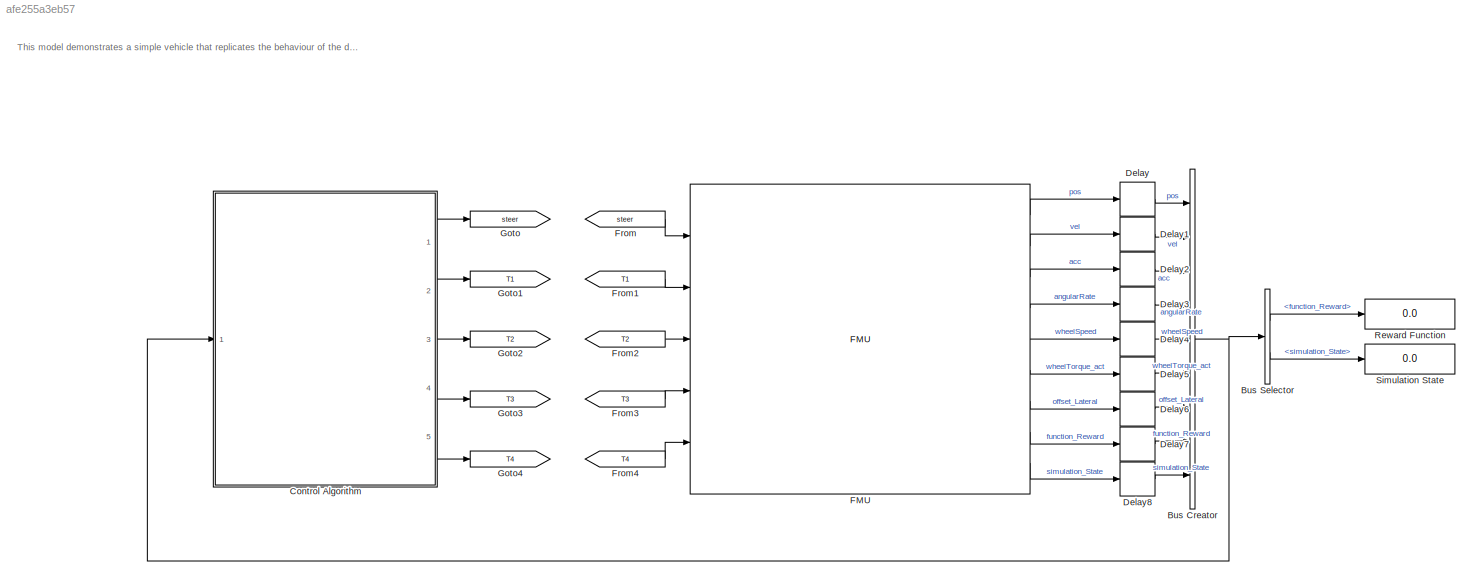
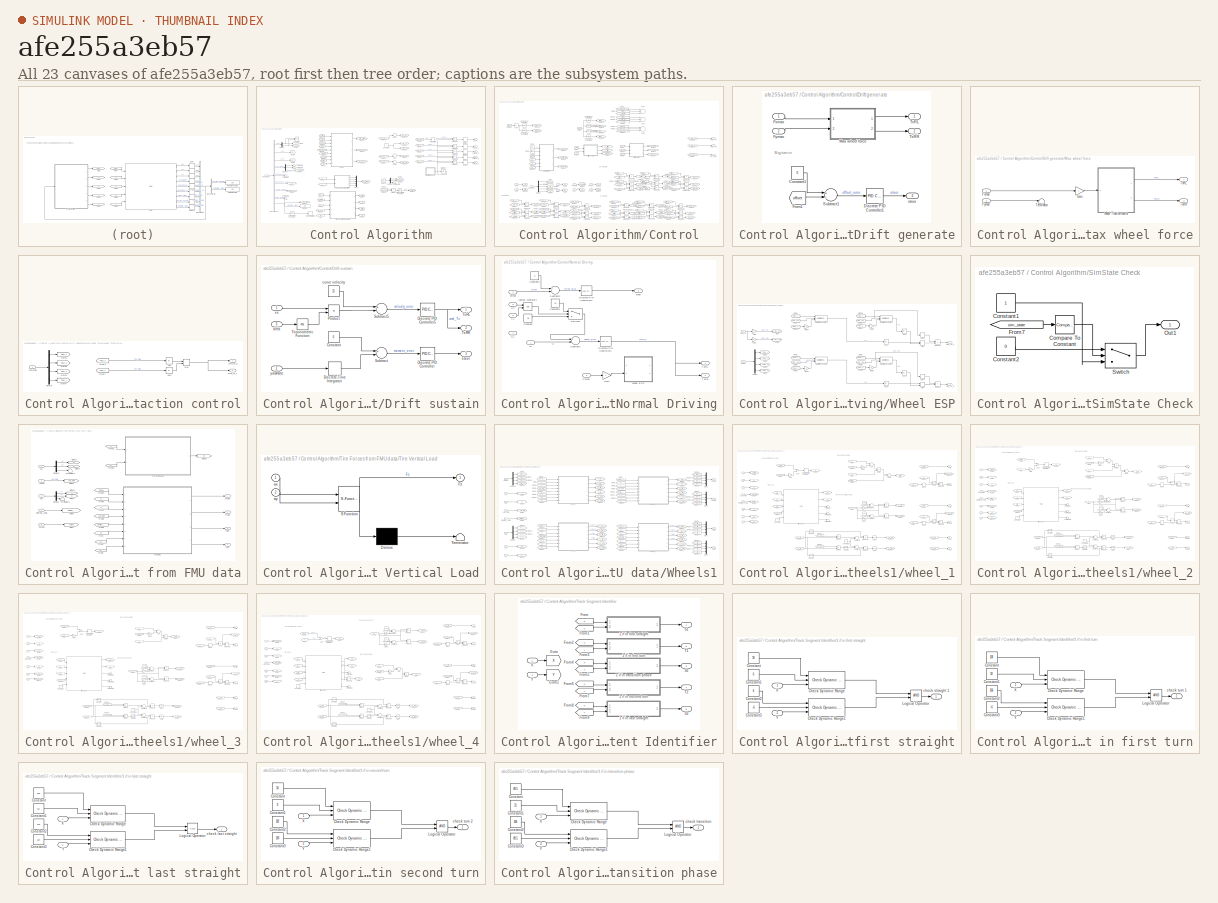
[diagram: thumbnail index - all 23 canvases of the model, root first then tree order]
MODEL slx_afe255a3eb57
KIND model
CONFIG AbsTol = auto
CONFIG EnableMultiTasking = off
CONFIG FixedStep = 0.01
CONFIG MaxStep = auto
CONFIG MinStep = auto
CONFIG RelTol = 1e-3
CONFIG SampleTimeConstraint = Unconstrained
CONFIG Solver = FixedStepAuto
CONFIG SolverName = FixedStepAuto
CONFIG StartTime = 0.0
CONFIG StopTime = inf
BLOCK [BusCreator] Bus Creator
  DisplayOption = bar
  InheritFromInputs = on
  Inputs = 9
  Ports = [9, 1]
BLOCK [BusSelector] Bus Selector
  OutputAsBus = off
  OutputSignals = function_Reward,simulation_State
  Ports = [1, 2]
BLOCK [SubSystem] Control Algorithm
  Ports = [1, 5]
  RequestExecContextInheritance = off
  Variant = off
BLOCK [Sum] Control Algorithm/Add
  InputSameDT = off
  OutDataTypeStr = Inherit: Inherit via internal rule
  Ports = [2, 1]
  SaturateOnIntegerOverflow = off
BLOCK [Sum] Control Algorithm/Add1
  InputSameDT = off
  OutDataTypeStr = Inherit: Inherit via internal rule
  Ports = [2, 1]
  SaturateOnIntegerOverflow = off
BLOCK [Sum] Control Algorithm/Add2
  InputSameDT = off
  OutDataTypeStr = Inherit: Inherit via internal rule
  Ports = [2, 1]
  SaturateOnIntegerOverflow = off
BLOCK [BusSelector] Control Algorithm/Bus Selector
  OutputAsBus = off
  OutputSignals = pos,vel,acc,angularRate,wheelSpeed,wheelTorque_act,offset_Lateral,function_Reward,simulation_State
  Ports = [1, 9]
BLOCK [Reference] Control Algorithm/Compare To Constant  REF=simulink/Logic and Bit
Operations/Compare
To Constant
  Ports = [1, 1]
  SourceBlock = simulink/Logic and Bit\nOperations/Compare\nTo Constant
  SourceProductBaseCode = SL
  SourceProductName = Simulink
  SourceType = Compare To Constant
BLOCK [Constant] Control Algorithm/Constant
  Value = 0
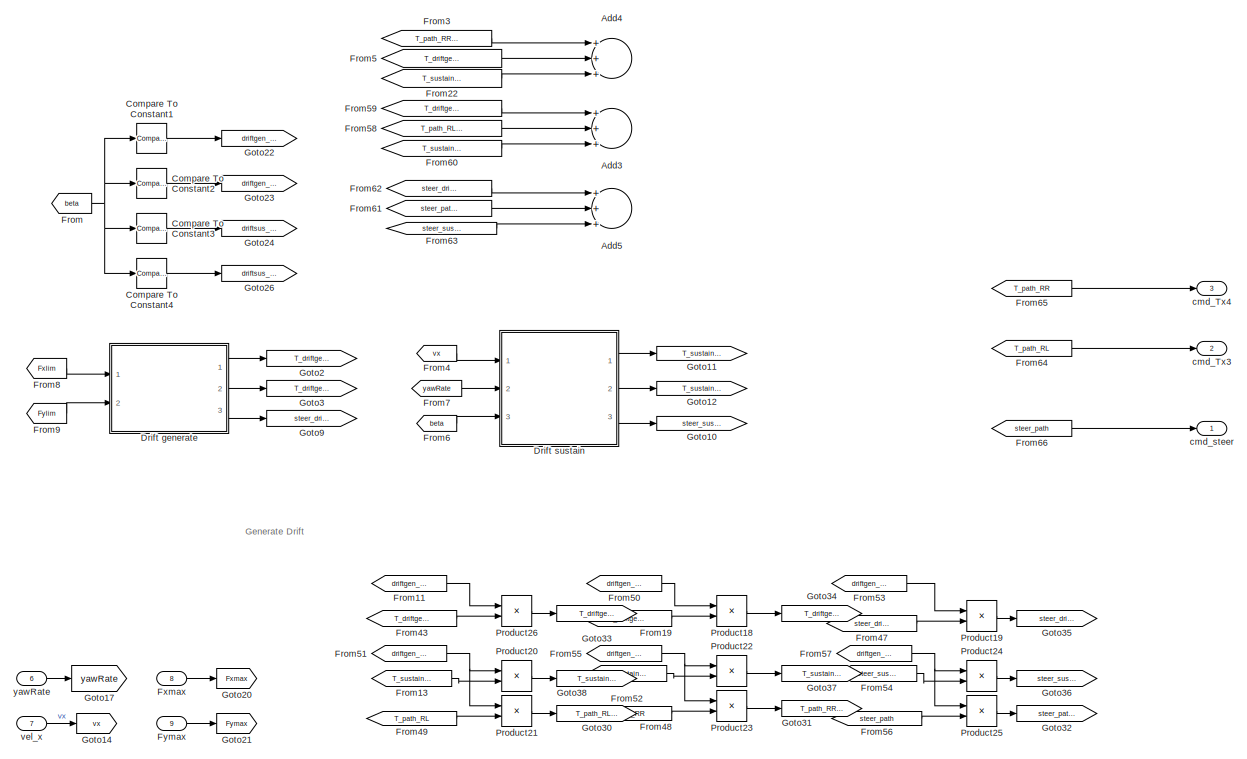
[diagram: Control Algorithm/Control - part 1/3, center side, full height]
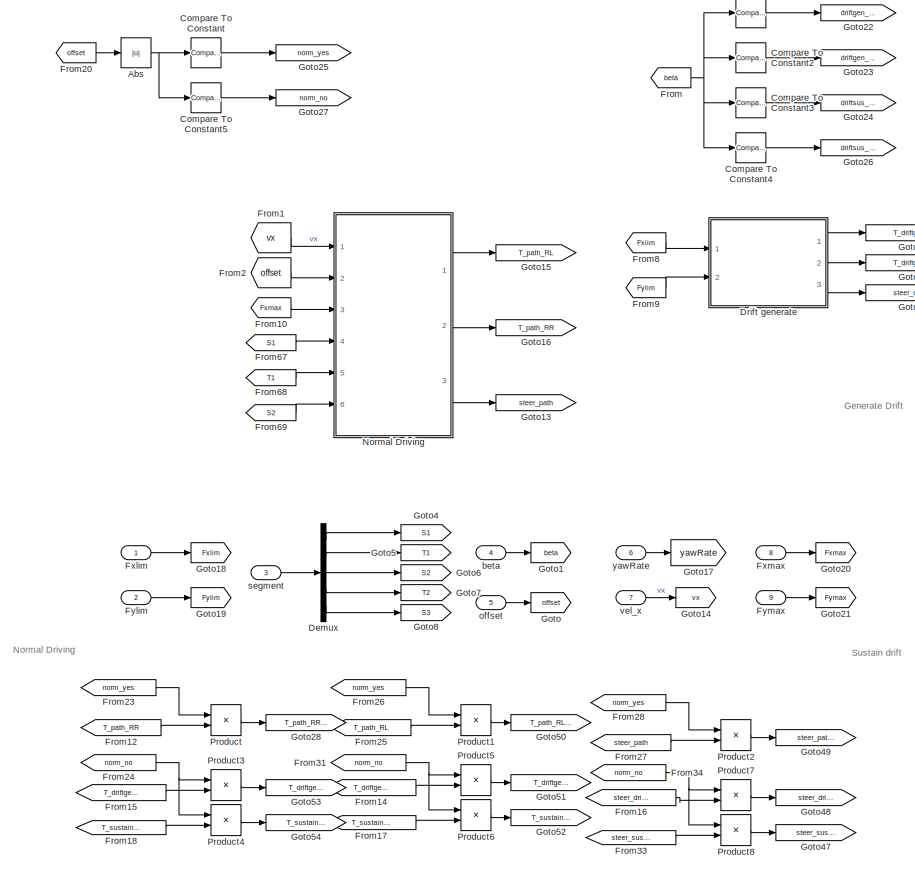
[diagram: Control Algorithm/Control - part 2/3, left side, full height]
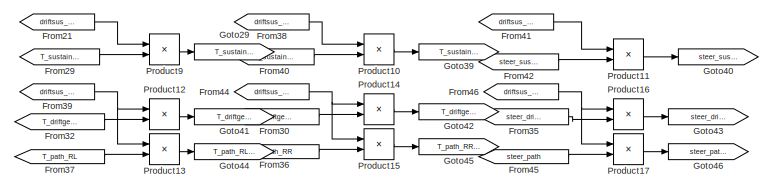
[diagram: Control Algorithm/Control - part 3/3, bottom right region]
BLOCK [SubSystem] Control Algorithm/Control
  Ports = [9, 3]
  RequestExecContextInheritance = off
  TreatAsAtomicUnit = on
  Variant = off
BLOCK [Abs] Control Algorithm/Control/Abs
  Commented = on
  SaturateOnIntegerOverflow = off
BLOCK [Sum] Control Algorithm/Control/Add3
  Commented = on
  InputSameDT = off
  Inputs = +++
  OutDataTypeStr = Inherit: Inherit via internal rule
  Ports = [3, 1]
  SaturateOnIntegerOverflow = off
BLOCK [Sum] Control Algorithm/Control/Add4
  Commented = on
  InputSameDT = off
  Inputs = +++
  OutDataTypeStr = Inherit: Inherit via internal rule
  Ports = [3, 1]
  SaturateOnIntegerOverflow = off
BLOCK [Sum] Control Algorithm/Control/Add5
  Commented = on
  InputSameDT = off
  Inputs = +++
  OutDataTypeStr = Inherit: Inherit via internal rule
  Ports = [3, 1]
  SaturateOnIntegerOverflow = off
BLOCK [Reference] Control Algorithm/Control/Compare To Constant  REF=simulink/Logic and Bit
Operations/Compare
To Constant
  Commented = on
  Ports = [1, 1]
  SourceBlock = simulink/Logic and Bit\nOperations/Compare\nTo Constant
  SourceProductBaseCode = SL
  SourceProductName = Simulink
  SourceType = Compare To Constant
BLOCK [Reference] Control Algorithm/Control/Compare To Constant1  REF=simulink/Logic and Bit
Operations/Compare
To Constant
  Commented = on
  Ports = [1, 1]
  SourceBlock = simulink/Logic and Bit\nOperations/Compare\nTo Constant
  SourceProductBaseCode = SL
  SourceProductName = Simulink
  SourceType = Compare To Constant
BLOCK [Reference] Control Algorithm/Control/Compare To Constant2  REF=simulink/Logic and Bit
Operations/Compare
To Constant
  Commented = on
  Ports = [1, 1]
  SourceBlock = simulink/Logic and Bit\nOperations/Compare\nTo Constant
  SourceProductBaseCode = SL
  SourceProductName = Simulink
  SourceType = Compare To Constant
BLOCK [Reference] Control Algorithm/Control/Compare To Constant3  REF=simulink/Logic and Bit
Operations/Compare
To Constant
  Commented = on
  Ports = [1, 1]
  SourceBlock = simulink/Logic and Bit\nOperations/Compare\nTo Constant
  SourceProductBaseCode = SL
  SourceProductName = Simulink
  SourceType = Compare To Constant
BLOCK [Reference] Control Algorithm/Control/Compare To Constant4  REF=simulink/Logic and Bit
Operations/Compare
To Constant
  Commented = on
  Ports = [1, 1]
  SourceBlock = simulink/Logic and Bit\nOperations/Compare\nTo Constant
  SourceProductBaseCode = SL
  SourceProductName = Simulink
  SourceType = Compare To Constant
BLOCK [Reference] Control Algorithm/Control/Compare To Constant5  REF=simulink/Logic and Bit
Operations/Compare
To Constant
  Commented = on
  Ports = [1, 1]
  SourceBlock = simulink/Logic and Bit\nOperations/Compare\nTo Constant
  SourceProductBaseCode = SL
  SourceProductName = Simulink
  SourceType = Compare To Constant
BLOCK [Demux] Control Algorithm/Control/Demux
  DisplayOption = bar
  Outputs = 5
  Ports = [1, 5]
BLOCK [SubSystem] Control Algorithm/Control/Drift generate
  Commented = on
  Ports = [2, 3]
  RequestExecContextInheritance = off
  Variant = off
BLOCK [Constant] Control Algorithm/Control/Drift generate/Constant1
  Value = 0
BLOCK [Reference] Control Algorithm/Control/Drift generate/Discrete PID Controller1  REF=simulink/Continuous/PID Controller
  Ports = [1, 1]
  SourceBlock = simulink/Continuous/PID Controller
  SourceProductBaseCode = SL
  SourceProductName = Simulink
  SourceType = PID 1dof
BLOCK [From] Control Algorithm/Control/Drift generate/From1
  GotoTag = offset
BLOCK [Inport] Control Algorithm/Control/Drift generate/Fxmax
  IconDisplay = Port number
BLOCK [Inport] Control Algorithm/Control/Drift generate/Fymax
  IconDisplay = Port number
  Port = 2
BLOCK [SubSystem] Control Algorithm/Control/Drift generate/Max wheel force
  Ports = [2, 2]
  RequestExecContextInheritance = off
  Variant = off
BLOCK [Inport] Control Algorithm/Control/Drift generate/Max wheel force/Fxmax
  IconDisplay = Port number
BLOCK [Inport] Control Algorithm/Control/Drift generate/Max wheel force/Fymax
  IconDisplay = Port number
  Port = 2
BLOCK [Gain] Control Algorithm/Control/Drift generate/Max wheel force/Gain
  Gain = r
  OutDataTypeStr = Inherit: Inherit via internal rule
  ParamDataTypeStr = Inherit: Inherit via internal rule
  SaturateOnIntegerOverflow = off
BLOCK [Terminator] Control Algorithm/Control/Drift generate/Max wheel force/Terminator
BLOCK [Outport] Control Algorithm/Control/Drift generate/Max wheel force/TxRL
  IconDisplay = Port number
BLOCK [Outport] Control Algorithm/Control/Drift generate/Max wheel force/TxRR
  IconDisplay = Port number
  Port = 2
BLOCK [SubSystem] Control Algorithm/Control/Drift generate/Max wheel force/Wheel Traction control
  Ports = [1, 2]
  RequestExecContextInheritance = off
  Variant = off
BLOCK [Abs] Control Algorithm/Control/Drift generate/Max wheel force/Wheel Traction control/Abs
  SaturateOnIntegerOverflow = off
BLOCK [Abs] Control Algorithm/Control/Drift generate/Max wheel force/Wheel Traction control/Abs1
  SaturateOnIntegerOverflow = off
BLOCK [Demux] Control Algorithm/Control/Drift generate/Max wheel force/Wheel Traction control/Demux
  DisplayOption = bar
  Ports = [1, 4]
BLOCK [From] Control Algorithm/Control/Drift generate/Max wheel force/Wheel Traction control/From3
  GotoTag = Tmax_3
BLOCK [From] Control Algorithm/Control/Drift generate/Max wheel force/Wheel Traction control/From7
  GotoTag = Tmax_4
BLOCK [Goto] Control Algorithm/Control/Drift generate/Max wheel force/Wheel Traction control/Goto1
  GotoTag = Tmax_1
BLOCK [Goto] Control Algorithm/Control/Drift generate/Max wheel force/Wheel Traction control/Goto2
  GotoTag = Tmax_2
BLOCK [Goto] Control Algorithm/Control/Drift generate/Max wheel force/Wheel Traction control/Goto3
  GotoTag = Tmax_3
BLOCK [Goto] Control Algorithm/Control/Drift generate/Max wheel force/Wheel Traction control/Goto4
  GotoTag = Tmax_4
BLOCK [MinMax] Control Algorithm/Control/Drift generate/Max wheel force/Wheel Traction control/Max
  InputSameDT = off
  Inputs = 2
  Ports = [2, 1]
  SaturateOnIntegerOverflow = off
BLOCK [Inport] Control Algorithm/Control/Drift generate/Max wheel force/Wheel Traction control/Txmargin
  IconDisplay = Port number
BLOCK [Outport] Control Algorithm/Control/Drift generate/Max wheel force/Wheel Traction control/cmd_Tx_3
  IconDisplay = Port number
BLOCK [Outport] Control Algorithm/Control/Drift generate/Max wheel force/Wheel Traction control/cmd_Tx_4 
  IconDisplay = Port number
  Port = 2
BLOCK [Sum] Control Algorithm/Control/Drift generate/Subtract1
  InputSameDT = off
  Inputs = +-
  OutDataTypeStr = Inherit: Inherit via internal rule
  Ports = [2, 1]
  SaturateOnIntegerOverflow = off
BLOCK [Outport] Control Algorithm/Control/Drift generate/TxRL
  IconDisplay = Port number
BLOCK [Outport] Control Algorithm/Control/Drift generate/TxRR
  IconDisplay = Port number
  Port = 2
BLOCK [Outport] Control Algorithm/Control/Drift generate/steer
  IconDisplay = Port number
  Port = 3
BLOCK [SubSystem] Control Algorithm/Control/Drift sustain
  Commented = on
  Ports = [3, 3]
  RequestExecContextInheritance = off
  Variant = off
BLOCK [Constant] Control Algorithm/Control/Drift sustain/Constant
  Value = 0
BLOCK [Reference] Control Algorithm/Control/Drift sustain/Discrete PID Controller  REF=simulink/Continuous/PID Controller
  Ports = [1, 1]
  SourceBlock = simulink/Continuous/PID Controller
  SourceProductBaseCode = SL
  SourceProductName = Simulink
  SourceType = PID 1dof
BLOCK [Reference] Control Algorithm/Control/Drift sustain/Discrete PID Controller5  REF=simulink/Continuous/PID Controller
  Ports = [1, 1]
  SourceBlock = simulink/Continuous/PID Controller
  SourceProductBaseCode = SL
  SourceProductName = Simulink
  SourceType = PID 1dof
BLOCK [DiscreteIntegrator] Control Algorithm/Control/Drift sustain/Discrete-Time Integrator
  ICPrevOutput = DiscIntNeverNeededParam
  ICPrevScaledInput = DiscIntNeverNeededParam
  InitialConditionSetting = State (most efficient)
  Ports = [1, 1]
  SampleTime = -1
BLOCK [Product] Control Algorithm/Control/Drift sustain/Product
  InputSameDT = off
  OutDataTypeStr = Inherit: Inherit via internal rule
  Ports = [2, 1]
  RndMeth = Floor
  SaturateOnIntegerOverflow = off
BLOCK [Sum] Control Algorithm/Control/Drift sustain/Subtract
  InputSameDT = off
  Inputs = +-
  OutDataTypeStr = Inherit: Inherit via internal rule
  Ports = [2, 1]
  SaturateOnIntegerOverflow = off
BLOCK [Sum] Control Algorithm/Control/Drift sustain/Subtract5
  InputSameDT = off
  Inputs = +-
  OutDataTypeStr = Inherit: Inherit via internal rule
  Ports = [2, 1]
  SaturateOnIntegerOverflow = off
BLOCK [Trigonometry] Control Algorithm/Control/Drift sustain/Trigonometric Function
  Operator = cos
  Ports = [1, 1]
BLOCK [Outport] Control Algorithm/Control/Drift sustain/TxRL
  IconDisplay = Port number
BLOCK [Outport] Control Algorithm/Control/Drift sustain/TxRR
  IconDisplay = Port number
  Port = 2
BLOCK [Inport] Control Algorithm/Control/Drift sustain/beta
  IconDisplay = Port number
  Port = 3
BLOCK [Constant] Control Algorithm/Control/Drift sustain/curve velocity
  Value = 15
BLOCK [Outport] Control Algorithm/Control/Drift sustain/steer
  IconDisplay = Port number
  Port = 3
BLOCK [Inport] Control Algorithm/Control/Drift sustain/vx
  IconDisplay = Port number
BLOCK [Inport] Control Algorithm/Control/Drift sustain/yawRate
  IconDisplay = Port number
  Port = 2
BLOCK [From] Control Algorithm/Control/From
  Commented = on
  GotoTag = beta
BLOCK [From] Control Algorithm/Control/From1
  GotoTag = vx
BLOCK [From] Control Algorithm/Control/From10
  GotoTag = Fxmax
BLOCK [From] Control Algorithm/Control/From11
  Commented = on
  GotoTag = driftgen_yes
BLOCK [From] Control Algorithm/Control/From12
  Commented = on
  GotoTag = T_path_RR
BLOCK [From] Control Algorithm/Control/From13
  Commented = on
  GotoTag = T_sustain_RR
BLOCK [From] Control Algorithm/Control/From14
  Commented = on
  GotoTag = T_driftgen_RL
BLOCK [From] Control Algorithm/Control/From15
  Commented = on
  GotoTag = T_driftgen_RR
BLOCK [From] Control Algorithm/Control/From16
  Commented = on
  GotoTag = steer_driftgen
BLOCK [From] Control Algorithm/Control/From17
  Commented = on
  GotoTag = T_sustain_RL
BLOCK [From] Control Algorithm/Control/From18
  Commented = on
  GotoTag = T_sustain_RR
BLOCK [From] Control Algorithm/Control/From19
  Commented = on
  GotoTag = T_driftgen_RL
BLOCK [From] Control Algorithm/Control/From2
  GotoTag = offset
BLOCK [From] Control Algorithm/Control/From20
  Commented = on
  GotoTag = offset
BLOCK [From] Control Algorithm/Control/From21
  Commented = on
  GotoTag = driftsus_yes
BLOCK [From] Control Algorithm/Control/From22
  Commented = on
  GotoTag = T_sustain_RR_sus
BLOCK [From] Control Algorithm/Control/From23
  Commented = on
  GotoTag = norm_yes
BLOCK [From] Control Algorithm/Control/From24
  Commented = on
  GotoTag = norm_no
BLOCK [From] Control Algorithm/Control/From25
  Commented = on
  GotoTag = T_path_RL
BLOCK [From] Control Algorithm/Control/From26
  Commented = on
  GotoTag = norm_yes
BLOCK [From] Control Algorithm/Control/From27
  Commented = on
  GotoTag = steer_path
BLOCK [From] Control Algorithm/Control/From28
  Commented = on
  GotoTag = norm_yes
BLOCK [From] Control Algorithm/Control/From29
  Commented = on
  GotoTag = T_sustain_RR
BLOCK [From] Control Algorithm/Control/From3
  Commented = on
  GotoTag = T_path_RR_norm
BLOCK [From] Control Algorithm/Control/From30
  Commented = on
  GotoTag = T_driftgen_RL
BLOCK [From] Control Algorithm/Control/From31
  Commented = on
  GotoTag = norm_no
BLOCK [From] Control Algorithm/Control/From32
  Commented = on
  GotoTag = T_driftgen_RR
BLOCK [From] Control Algorithm/Control/From33
  Commented = on
  GotoTag = steer_sustain
BLOCK [From] Control Algorithm/Control/From34
  Commented = on
  GotoTag = norm_no
BLOCK [From] Control Algorithm/Control/From35
  Commented = on
  GotoTag = steer_driftgen
BLOCK [From] Control Algorithm/Control/From36
  Commented = on
  GotoTag = T_path_RR
BLOCK [From] Control Algorithm/Control/From37
  Commented = on
  GotoTag = T_path_RL
BLOCK [From] Control Algorithm/Control/From38
  Commented = on
  GotoTag = driftsus_yes
BLOCK [From] Control Algorithm/Control/From39
  Commented = on
  GotoTag = driftsus_no
BLOCK [From] Control Algorithm/Control/From4
  Commented = on
  GotoTag = vx
BLOCK [From] Control Algorithm/Control/From40
  Commented = on
  GotoTag = T_sustain_RL
BLOCK [From] Control Algorithm/Control/From41
  Commented = on
  GotoTag = driftsus_yes
BLOCK [From] Control Algorithm/Control/From42
  Commented = on
  GotoTag = steer_sustain
BLOCK [From] Control Algorithm/Control/From43
  Commented = on
  GotoTag = T_driftgen_RR
BLOCK [From] Control Algorithm/Control/From44
  Commented = on
  GotoTag = driftsus_no
BLOCK [From] Control Algorithm/Control/From45
  Commented = on
  GotoTag = steer_path
BLOCK [From] Control Algorithm/Control/From46
  Commented = on
  GotoTag = driftsus_no
BLOCK [From] Control Algorithm/Control/From47
  Commented = on
  GotoTag = steer_driftgen
BLOCK [From] Control Algorithm/Control/From48
  Commented = on
  GotoTag = T_path_RR
BLOCK [From] Control Algorithm/Control/From49
  Commented = on
  GotoTag = T_path_RL
BLOCK [From] Control Algorithm/Control/From5
  Commented = on
  GotoTag = T_driftgen_RR_drift
BLOCK [From] Control Algorithm/Control/From50
  Commented = on
  GotoTag = driftgen_yes
BLOCK [From] Control Algorithm/Control/From51
  Commented = on
  GotoTag = driftgen_no
BLOCK [From] Control Algorithm/Control/From52
  Commented = on
  GotoTag = T_sustain_RL
BLOCK [From] Control Algorithm/Control/From53
  Commented = on
  GotoTag = driftgen_yes
BLOCK [From] Control Algorithm/Control/From54
  Commented = on
  GotoTag = steer_sustain
BLOCK [From] Control Algorithm/Control/From55
  Commented = on
  GotoTag = driftgen_no
BLOCK [From] Control Algorithm/Control/From56
  Commented = on
  GotoTag = steer_path
BLOCK [From] Control Algorithm/Control/From57
  Commented = on
  GotoTag = driftgen_no
BLOCK [From] Control Algorithm/Control/From58
  Commented = on
  GotoTag = T_path_RL_norm
BLOCK [From] Control Algorithm/Control/From59
  Commented = on
  GotoTag = T_driftgen_RL_drift
BLOCK [From] Control Algorithm/Control/From6
  Commented = on
  GotoTag = beta
BLOCK [From] Control Algorithm/Control/From60
  Commented = on
  GotoTag = T_sustain_RL_sus
BLOCK [From] Control Algorithm/Control/From61
  Commented = on
  GotoTag = steer_path_norm
BLOCK [From] Control Algorithm/Control/From62
  Commented = on
  GotoTag = steer_driftgen_drift
BLOCK [From] Control Algorithm/Control/From63
  Commented = on
  GotoTag = steer_sustain_sus
BLOCK [From] Control Algorithm/Control/From64
  GotoTag = T_path_RL
BLOCK [From] Control Algorithm/Control/From65
  GotoTag = T_path_RR
BLOCK [From] Control Algorithm/Control/From66
  GotoTag = steer_path
BLOCK [From] Control Algorithm/Control/From67
  GotoTag = S1
BLOCK [From] Control Algorithm/Control/From68
  GotoTag = T1
BLOCK [From] Control Algorithm/Control/From69
  GotoTag = S2
BLOCK [From] Control Algorithm/Control/From7
  Commented = on
  GotoTag = yawRate
BLOCK [From] Control Algorithm/Control/From8
  Commented = on
  GotoTag = Fxlim
BLOCK [From] Control Algorithm/Control/From9
  Commented = on
  GotoTag = Fylim
BLOCK [Inport] Control Algorithm/Control/Fxlim
  IconDisplay = Port number
BLOCK [Inport] Control Algorithm/Control/Fxmax 
  IconDisplay = Port number
  Port = 8
BLOCK [Inport] Control Algorithm/Control/Fylim
  IconDisplay = Port number
  Port = 2
BLOCK [Inport] Control Algorithm/Control/Fymax
  IconDisplay = Port number
  Port = 9
BLOCK [Goto] Control Algorithm/Control/Goto
  GotoTag = offset
BLOCK [Goto] Control Algorithm/Control/Goto1
  GotoTag = beta
BLOCK [Goto] Control Algorithm/Control/Goto10
  Commented = on
  GotoTag = steer_sustain
BLOCK [Goto] Control Algorithm/Control/Goto11
  Commented = on
  GotoTag = T_sustain_RL
BLOCK [Goto] Control Algorithm/Control/Goto12
  Commented = on
  GotoTag = T_sustain_RR
BLOCK [Goto] Control Algorithm/Control/Goto13
  GotoTag = steer_path
BLOCK [Goto] Control Algorithm/Control/Goto14
  GotoTag = vx
BLOCK [Goto] Control Algorithm/Control/Goto15
  GotoTag = T_path_RL
BLOCK [Goto] Control Algorithm/Control/Goto16
  GotoTag = T_path_RR
BLOCK [Goto] Control Algorithm/Control/Goto17
  GotoTag = yawRate
BLOCK [Goto] Control Algorithm/Control/Goto18
  GotoTag = Fxlim
BLOCK [Goto] Control Algorithm/Control/Goto19
  GotoTag = Fylim
BLOCK [Goto] Control Algorithm/Control/Goto2
  Commented = on
  GotoTag = T_driftgen_RL
BLOCK [Goto] Control Algorithm/Control/Goto20
  GotoTag = Fxmax
BLOCK [Goto] Control Algorithm/Control/Goto21
  GotoTag = Fymax
BLOCK [Goto] Control Algorithm/Control/Goto22
  Commented = on
  GotoTag = driftgen_yes
BLOCK [Goto] Control Algorithm/Control/Goto23
  Commented = on
  GotoTag = driftgen_no
BLOCK [Goto] Control Algorithm/Control/Goto24
  Commented = on
  GotoTag = driftsus_yes
BLOCK [Goto] Control Algorithm/Control/Goto25
  Commented = on
  GotoTag = norm_yes
BLOCK [Goto] Control Algorithm/Control/Goto26
  Commented = on
  GotoTag = driftsus_no
BLOCK [Goto] Control Algorithm/Control/Goto27
  Commented = on
  GotoTag = norm_no
BLOCK [Goto] Control Algorithm/Control/Goto28
  Commented = on
  GotoTag = T_path_RR_norm
BLOCK [Goto] Control Algorithm/Control/Goto29
  Commented = on
  GotoTag = T_sustain_RR_sus
BLOCK [Goto] Control Algorithm/Control/Goto3
  Commented = on
  GotoTag = T_driftgen_RR
BLOCK [Goto] Control Algorithm/Control/Goto30
  Commented = on
  GotoTag = T_path_RL_drift
BLOCK [Goto] Control Algorithm/Control/Goto31
  Commented = on
  GotoTag = T_path_RR_drift
BLOCK [Goto] Control Algorithm/Control/Goto32
  Commented = on
  GotoTag = steer_path_drift
BLOCK [Goto] Control Algorithm/Control/Goto33
  Commented = on
  GotoTag = T_driftgen_RR_drift
BLOCK [Goto] Control Algorithm/Control/Goto34
  Commented = on
  GotoTag = T_driftgen_RL_drift
BLOCK [Goto] Control Algorithm/Control/Goto35
  Commented = on
  GotoTag = steer_driftgen_drift
BLOCK [Goto] Control Algorithm/Control/Goto36
  Commented = on
  GotoTag = steer_sustain_drift
BLOCK [Goto] Control Algorithm/Control/Goto37
  Commented = on
  GotoTag = T_sustain_RL_drift
BLOCK [Goto] Control Algorithm/Control/Goto38
  Commented = on
  GotoTag = T_sustain_RR_drift
BLOCK [Goto] Control Algorithm/Control/Goto39
  Commented = on
  GotoTag = T_sustain_RL_sus
BLOCK [Goto] Control Algorithm/Control/Goto4
  GotoTag = S1
BLOCK [Goto] Control Algorithm/Control/Goto40
  Commented = on
  GotoTag = steer_sustain_sus
BLOCK [Goto] Control Algorithm/Control/Goto41
  Commented = on
  GotoTag = T_driftgen_RR_sus
BLOCK [Goto] Control Algorithm/Control/Goto42
  Commented = on
  GotoTag = T_driftgen_RL_sus
BLOCK [Goto] Control Algorithm/Control/Goto43
  Commented = on
  GotoTag = steer_driftgen_sus
BLOCK [Goto] Control Algorithm/Control/Goto44
  Commented = on
  GotoTag = T_path_RL_sus
BLOCK [Goto] Control Algorithm/Control/Goto45
  Commented = on
  GotoTag = T_path_RR_sus
BLOCK [Goto] Control Algorithm/Control/Goto46
  Commented = on
  GotoTag = steer_path_sus
BLOCK [Goto] Control Algorithm/Control/Goto47
  Commented = on
  GotoTag = steer_sustain_norm
BLOCK [Goto] Control Algorithm/Control/Goto48
  Commented = on
  GotoTag = steer_driftgen_norm
BLOCK [Goto] Control Algorithm/Control/Goto49
  Commented = on
  GotoTag = steer_path_norm
BLOCK [Goto] Control Algorithm/Control/Goto5
  GotoTag = T1
BLOCK [Goto] Control Algorithm/Control/Goto50
  Commented = on
  GotoTag = T_path_RL_norm
BLOCK [Goto] Control Algorithm/Control/Goto51
  Commented = on
  GotoTag = T_driftgen_RL_norm
BLOCK [Goto] Control Algorithm/Control/Goto52
  Commented = on
  GotoTag = T_sustain_RL_norm
BLOCK [Goto] Control Algorithm/Control/Goto53
  Commented = on
  GotoTag = T_driftgen_RR_norm
BLOCK [Goto] Control Algorithm/Control/Goto54
  Commented = on
  GotoTag = T_sustain_RR_norm
BLOCK [Goto] Control Algorithm/Control/Goto6
  GotoTag = S2
BLOCK [Goto] Control Algorithm/Control/Goto7
  GotoTag = T2
BLOCK [Goto] Control Algorithm/Control/Goto8
  GotoTag = S3
BLOCK [Goto] Control Algorithm/Control/Goto9
  Commented = on
  GotoTag = steer_driftgen
BLOCK [SubSystem] Control Algorithm/Control/Normal Driving
  Ports = [6, 3]
  RequestExecContextInheritance = off
  Variant = off
BLOCK [Constant] Control Algorithm/Control/Normal Driving/Constant
  Value = 18
BLOCK [Constant] Control Algorithm/Control/Normal Driving/Constant1
  Value = 15
BLOCK [Constant] Control Algorithm/Control/Normal Driving/Constant3
  Value = 0
BLOCK [Reference] Control Algorithm/Control/Normal Driving/Discrete PID Controller1  REF=simulink/Continuous/PID Controller
  Ports = [1, 1]
  SourceBlock = simulink/Continuous/PID Controller
  SourceProductBaseCode = SL
  SourceProductName = Simulink
  SourceType = PID 1dof
BLOCK [Reference] Control Algorithm/Control/Normal Driving/Discrete PID Controller2  REF=simulink/Continuous/PID Controller
  Ports = [1, 1]
  SourceBlock = simulink/Continuous/PID Controller
  SourceProductBaseCode = SL
  SourceProductName = Simulink
  SourceType = PID 1dof
BLOCK [Inport] Control Algorithm/Control/Normal Driving/Fxmax
  IconDisplay = Port number
  Port = 3
BLOCK [Gain] Control Algorithm/Control/Normal Driving/Gain
  Gain = r
  OutDataTypeStr = Inherit: Inherit via internal rule
  ParamDataTypeStr = Inherit: Inherit via internal rule
  SaturateOnIntegerOverflow = off
BLOCK [Logic] Control Algorithm/Control/Normal Driving/Logical Operator1
  AllPortsSameDT = off
  OutDataTypeStr = boolean
  Ports = [2, 1]
BLOCK [Inport] Control Algorithm/Control/Normal Driving/S1
  IconDisplay = Port number
  Port = 4
BLOCK [Inport] Control Algorithm/Control/Normal Driving/S2
  IconDisplay = Port number
  Port = 6
BLOCK [Sum] Control Algorithm/Control/Normal Driving/Subtract1
  InputSameDT = off
  Inputs = +-
  OutDataTypeStr = Inherit: Inherit via internal rule
  Ports = [2, 1]
  SaturateOnIntegerOverflow = off
BLOCK [Sum] Control Algorithm/Control/Normal Driving/Subtract2
  InputSameDT = off
  Inputs = +-
  OutDataTypeStr = Inherit: Inherit via internal rule
  Ports = [2, 1]
  SaturateOnIntegerOverflow = off
BLOCK [Switch] Control Algorithm/Control/Normal Driving/Switch1
  Criteria = u2 > Threshold
  InputSameDT = off
  SaturateOnIntegerOverflow = off
BLOCK [Inport] Control Algorithm/Control/Normal Driving/T1
  IconDisplay = Port number
  Port = 5
BLOCK [Outport] Control Algorithm/Control/Normal Driving/TxRL
  IconDisplay = Port number
BLOCK [Outport] Control Algorithm/Control/Normal Driving/TxRR
  IconDisplay = Port number
  Port = 2
BLOCK [SubSystem] Control Algorithm/Control/Normal Driving/Wheel ESP
  Commented = on
  Ports = [2, 2]
  RequestExecContextInheritance = off
  Variant = off
BLOCK [Abs] Control Algorithm/Control/Normal Driving/Wheel ESP/Abs1
  SaturateOnIntegerOverflow = off
BLOCK [Abs] Control Algorithm/Control/Normal Driving/Wheel ESP/Abs2
  SaturateOnIntegerOverflow = off
BLOCK [Abs] Control Algorithm/Control/Normal Driving/Wheel ESP/Abs8
  SaturateOnIntegerOverflow = off
BLOCK [Abs] Control Algorithm/Control/Normal Driving/Wheel ESP/Abs9
  SaturateOnIntegerOverflow = off
BLOCK [Demux] Control Algorithm/Control/Normal Driving/Wheel ESP/Demux
  DisplayOption = bar
  Ports = [1, 4]
BLOCK [From] Control Algorithm/Control/Normal Driving/Wheel ESP/From
  GotoTag = cmd_TxF
BLOCK [From] Control Algorithm/Control/Normal Driving/Wheel ESP/From1
  GotoTag = cmd_TxF
BLOCK [From] Control Algorithm/Control/Normal Driving/Wheel ESP/From10
  GotoTag = Tmax_2
BLOCK [From] Control Algorithm/Control/Normal Driving/Wheel ESP/From11
  GotoTag = Tmax_2
BLOCK [From] Control Algorithm/Control/Normal Driving/Wheel ESP/From12
  GotoTag = Tmax_1
BLOCK [From] Control Algorithm/Control/Normal Driving/Wheel ESP/From2
  GotoTag = cmd_TxR
BLOCK [From] Control Algorithm/Control/Normal Driving/Wheel ESP/From3
  GotoTag = Tmax_3
BLOCK [From] Control Algorithm/Control/Normal Driving/Wheel ESP/From4
  GotoTag = Tmax_1
BLOCK [From] Control Algorithm/Control/Normal Driving/Wheel ESP/From6
  GotoTag = cmd_TxR
BLOCK [From] Control Algorithm/Control/Normal Driving/Wheel ESP/From7
  GotoTag = Tmax_4
BLOCK [From] Control Algorithm/Control/Normal Driving/Wheel ESP/From8
  GotoTag = Tmax_4
BLOCK [From] Control Algorithm/Control/Normal Driving/Wheel ESP/From9
  GotoTag = Tmax_3
BLOCK [Gain] Control Algorithm/Control/Normal Driving/Wheel ESP/Gain
  Gain = 0
  OutDataTypeStr = Inherit: Inherit via internal rule
  ParamDataTypeStr = Inherit: Inherit via internal rule
  SaturateOnIntegerOverflow = off
BLOCK [Gain] Control Algorithm/Control/Normal Driving/Wheel ESP/Gain1
  OutDataTypeStr = Inherit: Inherit via internal rule
  ParamDataTypeStr = Inherit: Inherit via internal rule
  SaturateOnIntegerOverflow = off
BLOCK [Gain] Control Algorithm/Control/Normal Driving/Wheel ESP/Gain2
  Gain = -1
  OutDataTypeStr = Inherit: Inherit via internal rule
  ParamDataTypeStr = Inherit: Inherit via internal rule
  SaturateOnIntegerOverflow = off
BLOCK [Gain] Control Algorithm/Control/Normal Driving/Wheel ESP/Gain3
  Gain = -1
  OutDataTypeStr = Inherit: Inherit via internal rule
  ParamDataTypeStr = Inherit: Inherit via internal rule
  SaturateOnIntegerOverflow = off
BLOCK [Gain] Control Algorithm/Control/Normal Driving/Wheel ESP/Gain4
  Gain = -1
  OutDataTypeStr = Inherit: Inherit via internal rule
  ParamDataTypeStr = Inherit: Inherit via internal rule
  SaturateOnIntegerOverflow = off
BLOCK [Gain] Control Algorithm/Control/Normal Driving/Wheel ESP/Gain5
  Gain = -1
  OutDataTypeStr = Inherit: Inherit via internal rule
  ParamDataTypeStr = Inherit: Inherit via internal rule
  SaturateOnIntegerOverflow = off
BLOCK [Goto] Control Algorithm/Control/Normal Driving/Wheel ESP/Goto
  GotoTag = cmd_TxF
BLOCK [Goto] Control Algorithm/Control/Normal Driving/Wheel ESP/Goto1
  GotoTag = Tmax_1
BLOCK [Goto] Control Algorithm/Control/Normal Driving/Wheel ESP/Goto2
  GotoTag = Tmax_2
BLOCK [Goto] Control Algorithm/Control/Normal Driving/Wheel ESP/Goto3
  GotoTag = Tmax_3
BLOCK [Goto] Control Algorithm/Control/Normal Driving/Wheel ESP/Goto4
  GotoTag = Tmax_4
BLOCK [Goto] Control Algorithm/Control/Normal Driving/Wheel ESP/Goto5
  GotoTag = cmd_TxR
BLOCK [MinMax] Control Algorithm/Control/Normal Driving/Wheel ESP/Min1
  InputSameDT = off
  Inputs = 2
  Ports = [2, 1]
  SaturateOnIntegerOverflow = off
BLOCK [MinMax] Control Algorithm/Control/Normal Driving/Wheel ESP/Min4
  InputSameDT = off
  Inputs = 2
  Ports = [2, 1]
  SaturateOnIntegerOverflow = off
BLOCK [Product] Control Algorithm/Control/Normal Driving/Wheel ESP/Product1
  InputSameDT = off
  OutDataTypeStr = Inherit: Inherit via internal rule
  Ports = [2, 1]
  RndMeth = Floor
  SaturateOnIntegerOverflow = off
BLOCK [Product] Control Algorithm/Control/Normal Driving/Wheel ESP/Product4
  InputSameDT = off
  OutDataTypeStr = Inherit: Inherit via internal rule
  Ports = [2, 1]
  RndMeth = Floor
  SaturateOnIntegerOverflow = off
BLOCK [Reference] Control Algorithm/Control/Normal Driving/Wheel ESP/Saturation Dynamic  REF=simulink/Discontinuities/Saturation
Dynamic
  Ports = [3, 1]
  SourceBlock = simulink/Discontinuities/Saturation\nDynamic
  SourceProductBaseCode = SL
  SourceProductName = Simulink
  SourceType = Saturation Dynamic
BLOCK [Reference] Control Algorithm/Control/Normal Driving/Wheel ESP/Saturation Dynamic1  REF=simulink/Discontinuities/Saturation
Dynamic
  Ports = [3, 1]
  SourceBlock = simulink/Discontinuities/Saturation\nDynamic
  SourceProductBaseCode = SL
  SourceProductName = Simulink
  SourceType = Saturation Dynamic
BLOCK [Reference] Control Algorithm/Control/Normal Driving/Wheel ESP/Saturation Dynamic2  REF=simulink/Discontinuities/Saturation
Dynamic
  Ports = [3, 1]
  SourceBlock = simulink/Discontinuities/Saturation\nDynamic
  SourceProductBaseCode = SL
  SourceProductName = Simulink
  SourceType = Saturation Dynamic
BLOCK [Reference] Control Algorithm/Control/Normal Driving/Wheel ESP/Saturation Dynamic3  REF=simulink/Discontinuities/Saturation
Dynamic
  Ports = [3, 1]
  SourceBlock = simulink/Discontinuities/Saturation\nDynamic
  SourceProductBaseCode = SL
  SourceProductName = Simulink
  SourceType = Saturation Dynamic
BLOCK [Signum] Control Algorithm/Control/Normal Driving/Wheel ESP/Sign1
BLOCK [Signum] Control Algorithm/Control/Normal Driving/Wheel ESP/Sign4
BLOCK [Inport] Control Algorithm/Control/Normal Driving/Wheel ESP/Txmax
  IconDisplay = Port number
  Port = 2
BLOCK [Inport] Control Algorithm/Control/Normal Driving/Wheel ESP/cmd_Tx
  IconDisplay = Port number
BLOCK [Outport] Control Algorithm/Control/Normal Driving/Wheel ESP/cmd_Tx_F
  IconDisplay = Port number
BLOCK [Outport] Control Algorithm/Control/Normal Driving/Wheel ESP/cmd_Tx_R
  IconDisplay = Port number
  Port = 2
BLOCK [Inport] Control Algorithm/Control/Normal Driving/offset
  IconDisplay = Port number
  Port = 2
BLOCK [Outport] Control Algorithm/Control/Normal Driving/steer
  IconDisplay = Port number
  Port = 3
BLOCK [Inport] Control Algorithm/Control/Normal Driving/vx
  IconDisplay = Port number
BLOCK [Product] Control Algorithm/Control/Product
  Commented = on
  InputSameDT = off
  OutDataTypeStr = Inherit: Inherit via internal rule
  Ports = [2, 1]
  RndMeth = Floor
  SaturateOnIntegerOverflow = off
BLOCK [Product] Control Algorithm/Control/Product1
  Commented = on
  InputSameDT = off
  OutDataTypeStr = Inherit: Inherit via internal rule
  Ports = [2, 1]
  RndMeth = Floor
  SaturateOnIntegerOverflow = off
BLOCK [Product] Control Algorithm/Control/Product10
  Commented = on
  InputSameDT = off
  OutDataTypeStr = Inherit: Inherit via internal rule
  Ports = [2, 1]
  RndMeth = Floor
  SaturateOnIntegerOverflow = off
BLOCK [Product] Control Algorithm/Control/Product11
  Commented = on
  InputSameDT = off
  OutDataTypeStr = Inherit: Inherit via internal rule
  Ports = [2, 1]
  RndMeth = Floor
  SaturateOnIntegerOverflow = off
BLOCK [Product] Control Algorithm/Control/Product12
  Commented = on
  InputSameDT = off
  OutDataTypeStr = Inherit: Inherit via internal rule
  Ports = [2, 1]
  RndMeth = Floor
  SaturateOnIntegerOverflow = off
BLOCK [Product] Control Algorithm/Control/Product13
  Commented = on
  InputSameDT = off
  OutDataTypeStr = Inherit: Inherit via internal rule
  Ports = [2, 1]
  RndMeth = Floor
  SaturateOnIntegerOverflow = off
BLOCK [Product] Control Algorithm/Control/Product14
  Commented = on
  InputSameDT = off
  OutDataTypeStr = Inherit: Inherit via internal rule
  Ports = [2, 1]
  RndMeth = Floor
  SaturateOnIntegerOverflow = off
BLOCK [Product] Control Algorithm/Control/Product15
  Commented = on
  InputSameDT = off
  OutDataTypeStr = Inherit: Inherit via internal rule
  Ports = [2, 1]
  RndMeth = Floor
  SaturateOnIntegerOverflow = off
BLOCK [Product] Control Algorithm/Control/Product16
  Commented = on
  InputSameDT = off
  OutDataTypeStr = Inherit: Inherit via internal rule
  Ports = [2, 1]
  RndMeth = Floor
  SaturateOnIntegerOverflow = off
BLOCK [Product] Control Algorithm/Control/Product17
  Commented = on
  InputSameDT = off
  OutDataTypeStr = Inherit: Inherit via internal rule
  Ports = [2, 1]
  RndMeth = Floor
  SaturateOnIntegerOverflow = off
BLOCK [Product] Control Algorithm/Control/Product18
  Commented = on
  InputSameDT = off
  OutDataTypeStr = Inherit: Inherit via internal rule
  Ports = [2, 1]
  RndMeth = Floor
  SaturateOnIntegerOverflow = off
BLOCK [Product] Control Algorithm/Control/Product19
  Commented = on
  InputSameDT = off
  OutDataTypeStr = Inherit: Inherit via internal rule
  Ports = [2, 1]
  RndMeth = Floor
  SaturateOnIntegerOverflow = off
BLOCK [Product] Control Algorithm/Control/Product2
  Commented = on
  InputSameDT = off
  OutDataTypeStr = Inherit: Inherit via internal rule
  Ports = [2, 1]
  RndMeth = Floor
  SaturateOnIntegerOverflow = off
BLOCK [Product] Control Algorithm/Control/Product20
  Commented = on
  InputSameDT = off
  OutDataTypeStr = Inherit: Inherit via internal rule
  Ports = [2, 1]
  RndMeth = Floor
  SaturateOnIntegerOverflow = off
BLOCK [Product] Control Algorithm/Control/Product21
  Commented = on
  InputSameDT = off
  OutDataTypeStr = Inherit: Inherit via internal rule
  Ports = [2, 1]
  RndMeth = Floor
  SaturateOnIntegerOverflow = off
BLOCK [Product] Control Algorithm/Control/Product22
  Commented = on
  InputSameDT = off
  OutDataTypeStr = Inherit: Inherit via internal rule
  Ports = [2, 1]
  RndMeth = Floor
  SaturateOnIntegerOverflow = off
BLOCK [Product] Control Algorithm/Control/Product23
  Commented = on
  InputSameDT = off
  OutDataTypeStr = Inherit: Inherit via internal rule
  Ports = [2, 1]
  RndMeth = Floor
  SaturateOnIntegerOverflow = off
BLOCK [Product] Control Algorithm/Control/Product24
  Commented = on
  InputSameDT = off
  OutDataTypeStr = Inherit: Inherit via internal rule
  Ports = [2, 1]
  RndMeth = Floor
  SaturateOnIntegerOverflow = off
BLOCK [Product] Control Algorithm/Control/Product25
  Commented = on
  InputSameDT = off
  OutDataTypeStr = Inherit: Inherit via internal rule
  Ports = [2, 1]
  RndMeth = Floor
  SaturateOnIntegerOverflow = off
BLOCK [Product] Control Algorithm/Control/Product26
  Commented = on
  InputSameDT = off
  OutDataTypeStr = Inherit: Inherit via internal rule
  Ports = [2, 1]
  RndMeth = Floor
  SaturateOnIntegerOverflow = off
BLOCK [Product] Control Algorithm/Control/Product3
  Commented = on
  InputSameDT = off
  OutDataTypeStr = Inherit: Inherit via internal rule
  Ports = [2, 1]
  RndMeth = Floor
  SaturateOnIntegerOverflow = off
BLOCK [Product] Control Algorithm/Control/Product4
  Commented = on
  InputSameDT = off
  OutDataTypeStr = Inherit: Inherit via internal rule
  Ports = [2, 1]
  RndMeth = Floor
  SaturateOnIntegerOverflow = off
BLOCK [Product] Control Algorithm/Control/Product5
  Commented = on
  InputSameDT = off
  OutDataTypeStr = Inherit: Inherit via internal rule
  Ports = [2, 1]
  RndMeth = Floor
  SaturateOnIntegerOverflow = off
BLOCK [Product] Control Algorithm/Control/Product6
  Commented = on
  InputSameDT = off
  OutDataTypeStr = Inherit: Inherit via internal rule
  Ports = [2, 1]
  RndMeth = Floor
  SaturateOnIntegerOverflow = off
BLOCK [Product] Control Algorithm/Control/Product7
  Commented = on
  InputSameDT = off
  OutDataTypeStr = Inherit: Inherit via internal rule
  Ports = [2, 1]
  RndMeth = Floor
  SaturateOnIntegerOverflow = off
BLOCK [Product] Control Algorithm/Control/Product8
  Commented = on
  InputSameDT = off
  OutDataTypeStr = Inherit: Inherit via internal rule
  Ports = [2, 1]
  RndMeth = Floor
  SaturateOnIntegerOverflow = off
BLOCK [Product] Control Algorithm/Control/Product9
  Commented = on
  InputSameDT = off
  OutDataTypeStr = Inherit: Inherit via internal rule
  Ports = [2, 1]
  RndMeth = Floor
  SaturateOnIntegerOverflow = off
BLOCK [Inport] Control Algorithm/Control/beta
  IconDisplay = Port number
  Port = 4
BLOCK [Outport] Control Algorithm/Control/cmd_Tx3
  IconDisplay = Port number
  Port = 2
BLOCK [Outport] Control Algorithm/Control/cmd_Tx4
  IconDisplay = Port number
  Port = 3
BLOCK [Outport] Control Algorithm/Control/cmd_steer
  IconDisplay = Port number
BLOCK [Inport] Control Algorithm/Control/offset
  IconDisplay = Port number
  Port = 5
BLOCK [Inport] Control Algorithm/Control/segment
  IconDisplay = Port number
  Port = 3
BLOCK [Inport] Control Algorithm/Control/vel_x
  IconDisplay = Port number
  Port = 7
BLOCK [Inport] Control Algorithm/Control/yawRate
  IconDisplay = Port number
  Port = 6
BLOCK [Delay] Control Algorithm/Delay
  InputPortMap = u0
  Ports = [1, 1]
BLOCK [Delay] Control Algorithm/Delay1
  InputPortMap = u0
  Ports = [1, 1]
BLOCK [Delay] Control Algorithm/Delay2
  InputPortMap = u0
  Ports = [1, 1]
BLOCK [Delay] Control Algorithm/Delay3
  InputPortMap = u0
  Ports = [1, 1]
BLOCK [Delay] Control Algorithm/Delay4
  InputPortMap = u0
  Ports = [1, 1]
BLOCK [Demux] Control Algorithm/Demux
  DisplayOption = bar
  Outputs = 2
  Ports = [1, 2]
BLOCK [Demux] Control Algorithm/Demux1
  DisplayOption = bar
  Outputs = 3
  Ports = [1, 3]
BLOCK [Demux] Control Algorithm/Demux3
  DisplayOption = bar
  Outputs = 3
  Ports = [1, 3]
BLOCK [Display] Control Algorithm/Display
  Decimation = 1
  Ports = [1]
BLOCK [Product] Control Algorithm/Divide
  InputSameDT = off
  Inputs = /*
  OutDataTypeStr = Inherit: Inherit via internal rule
  Ports = [2, 1]
  RndMeth = Floor
  SaturateOnIntegerOverflow = off
BLOCK [Inport] Control Algorithm/Feedback
  IconDisplay = Port number
BLOCK [From] Control Algorithm/From
  Commented = on
  GotoTag = T_act
BLOCK [From] Control Algorithm/From1
  GotoTag = Fymax
BLOCK [From] Control Algorithm/From10
  GotoTag = vx
BLOCK [From] Control Algorithm/From11
  GotoTag = Fxlim
BLOCK [From] Control Algorithm/From12
  GotoTag = X
BLOCK [From] Control Algorithm/From13
  Commented = on
  GotoTag = cmd_steer
BLOCK [From] Control Algorithm/From14
  GotoTag = Y
BLOCK [From] Control Algorithm/From18
  GotoTag = vx
BLOCK [From] Control Algorithm/From19
  GotoTag = vy
BLOCK [From] Control Algorithm/From2
  GotoTag = cmd_TFL
BLOCK [From] Control Algorithm/From21
  GotoTag = vel
BLOCK [From] Control Algorithm/From22
  Commented = on
  GotoTag = yawRate
BLOCK [From] Control Algorithm/From23
  Commented = on
  GotoTag = vel
BLOCK [From] Control Algorithm/From24
  Commented = on
  GotoTag = acc
BLOCK [From] Control Algorithm/From25
  GotoTag = Fylim
BLOCK [From] Control Algorithm/From26
  GotoTag = Segment
BLOCK [From] Control Algorithm/From28
  GotoTag = beta
BLOCK [From] Control Algorithm/From29
  GotoTag = yawRate
BLOCK [From] Control Algorithm/From3
  GotoTag = cmd_TFR
BLOCK [From] Control Algorithm/From30
  GotoTag = cmd_steer_T1
  TagVisibility = global
BLOCK [From] Control Algorithm/From33
  GotoTag = cmd_TRL_T1
BLOCK [From] Control Algorithm/From34
  GotoTag = cmd_TRR_T1
BLOCK [From] Control Algorithm/From35
  GotoTag = offset_Lateral
BLOCK [From] Control Algorithm/From4
  GotoTag = cmd_TRL
BLOCK [From] Control Algorithm/From5
  GotoTag = cmd_TRR
BLOCK [From] Control Algorithm/From6
  GotoTag = cmd_steer
BLOCK [From] Control Algorithm/From9
  GotoTag = Fxmax
BLOCK [Goto] Control Algorithm/Goto
  GotoTag = X
BLOCK [Goto] Control Algorithm/Goto1
  GotoTag = Y
BLOCK [Goto] Control Algorithm/Goto10
  Commented = on
  GotoTag = Fymax
BLOCK [Goto] Control Algorithm/Goto11
  GotoTag = Segment
BLOCK [Goto] Control Algorithm/Goto12
  GotoTag = T_act
BLOCK [Goto] Control Algorithm/Goto13
  GotoTag = cmd_TRR_T1
BLOCK [Goto] Control Algorithm/Goto14
  GotoTag = cmd_steer_T1
  TagVisibility = global
BLOCK [Goto] Control Algorithm/Goto15
  GotoTag = cmd_TRR
BLOCK [Goto] Control Algorithm/Goto16
  Commented = on
  GotoTag = Fylim
BLOCK [Goto] Control Algorithm/Goto17
  GotoTag = sim_state
BLOCK [Goto] Control Algorithm/Goto2
  GotoTag = offset_Lateral
BLOCK [Goto] Control Algorithm/Goto20
  GotoTag = cmd_TRL
BLOCK [Goto] Control Algorithm/Goto21
  GotoTag = cmd_TRL_T1
BLOCK [Goto] Control Algorithm/Goto22
  GotoTag = beta
BLOCK [Goto] Control Algorithm/Goto23
  GotoTag = cmd_steer
BLOCK [Goto] Control Algorithm/Goto24
  GotoTag = cmd_TFL
BLOCK [Goto] Control Algorithm/Goto25
  GotoTag = cmd_TFR
BLOCK [Goto] Control Algorithm/Goto3
  Commented = on
  GotoTag = Fxlim
BLOCK [Goto] Control Algorithm/Goto4
  GotoTag = vel
BLOCK [Goto] Control Algorithm/Goto5
  GotoTag = vx
BLOCK [Goto] Control Algorithm/Goto6
  GotoTag = vy
BLOCK [Goto] Control Algorithm/Goto7
  GotoTag = yawRate
BLOCK [Goto] Control Algorithm/Goto8
  GotoTag = acc
BLOCK [Goto] Control Algorithm/Goto9
  Commented = on
  GotoTag = Fxmax
BLOCK [Mux] Control Algorithm/Mux1
  DisplayOption = bar
  Inputs = 5
  Ports = [5, 1]
BLOCK [Product] Control Algorithm/Product
  InputSameDT = off
  OutDataTypeStr = Inherit: Inherit via internal rule
  Ports = [2, 1]
  RndMeth = Floor
  SaturateOnIntegerOverflow = off
BLOCK [Product] Control Algorithm/Product1
  InputSameDT = off
  OutDataTypeStr = Inherit: Inherit via internal rule
  Ports = [2, 1]
  RndMeth = Floor
  SaturateOnIntegerOverflow = off
BLOCK [Product] Control Algorithm/Product2
  InputSameDT = off
  OutDataTypeStr = Inherit: Inherit via internal rule
  Ports = [2, 1]
  RndMeth = Floor
  SaturateOnIntegerOverflow = off
BLOCK [Product] Control Algorithm/Product3
  InputSameDT = off
  OutDataTypeStr = Inherit: Inherit via internal rule
  Ports = [2, 1]
  RndMeth = Floor
  SaturateOnIntegerOverflow = off
BLOCK [Product] Control Algorithm/Product4
  InputSameDT = off
  OutDataTypeStr = Inherit: Inherit via internal rule
  Ports = [2, 1]
  RndMeth = Floor
  SaturateOnIntegerOverflow = off
BLOCK [RateLimiter] Control Algorithm/Rate Limiter
  FallingSlewLimit = -500*pi/180
  RisingSlewLimit = 500*pi/180
  SampleTimeMode = inherited
BLOCK [SubSystem] Control Algorithm/SimState Check
  Ports = [0, 1]
  RequestExecContextInheritance = off
  Variant = off
BLOCK [Reference] Control Algorithm/SimState Check/Compare To Constant  REF=simulink/Logic and Bit
Operations/Compare
To Constant
  Ports = [1, 1]
  SourceBlock = simulink/Logic and Bit\nOperations/Compare\nTo Constant
  SourceProductBaseCode = SL
  SourceProductName = Simulink
  SourceType = Compare To Constant
BLOCK [Constant] Control Algorithm/SimState Check/Constant1
BLOCK [Constant] Control Algorithm/SimState Check/Constant2
  Value = 0
BLOCK [From] Control Algorithm/SimState Check/From7
  GotoTag = sim_state
BLOCK [Outport] Control Algorithm/SimState Check/Out1
  IconDisplay = Port number
BLOCK [Switch] Control Algorithm/SimState Check/Switch
  Criteria = u2 > Threshold
  InputSameDT = off
  SaturateOnIntegerOverflow = off
BLOCK [Stop] Control Algorithm/Stop Simulation
BLOCK [Terminator] Control Algorithm/Terminator1
BLOCK [Terminator] Control Algorithm/Terminator4
BLOCK [Terminator] Control Algorithm/Terminator5
BLOCK [Terminator] Control Algorithm/Terminator6
BLOCK [Terminator] Control Algorithm/Terminator7
BLOCK [SubSystem] Control Algorithm/Tire Forces from FMU data
  Commented = on
  Ports = [5, 4]
  RequestExecContextInheritance = off
  TreatAsAtomicUnit = on
  Variant = off
BLOCK [Demux] Control Algorithm/Tire Forces from FMU data/Demux1
  DisplayOption = bar
  Outputs = 3
  Ports = [1, 3]
BLOCK [Demux] Control Algorithm/Tire Forces from FMU data/Demux2
  DisplayOption = bar
  Outputs = 3
  Ports = [1, 3]
BLOCK [From] Control Algorithm/Tire Forces from FMU data/From
  GotoTag = Fz
BLOCK [From] Control Algorithm/Tire Forces from FMU data/From1
  GotoTag = ax
BLOCK [From] Control Algorithm/Tire Forces from FMU data/From10
  GotoTag = Torque
BLOCK [From] Control Algorithm/Tire Forces from FMU data/From12
  GotoTag = ax
BLOCK [From] Control Algorithm/Tire Forces from FMU data/From13
  GotoTag = ay
BLOCK [From] Control Algorithm/Tire Forces from FMU data/From2
  GotoTag = ay
BLOCK [From] Control Algorithm/Tire Forces from FMU data/From6
  GotoTag = vx
BLOCK [From] Control Algorithm/Tire Forces from FMU data/From7
  GotoTag = vy
BLOCK [From] Control Algorithm/Tire Forces from FMU data/From8
  GotoTag = yaw_Rate
BLOCK [From] Control Algorithm/Tire Forces from FMU data/From9
  GotoTag = steering_Angle
BLOCK [Outport] Control Algorithm/Tire Forces from FMU data/Fxlim
  IconDisplay = Port number
  Port = 3
BLOCK [Outport] Control Algorithm/Tire Forces from FMU data/Fxmax
  IconDisplay = Port number
BLOCK [Outport] Control Algorithm/Tire Forces from FMU data/Fylim
  IconDisplay = Port number
  Port = 4
BLOCK [Outport] Control Algorithm/Tire Forces from FMU data/Fymax
  IconDisplay = Port number
  Port = 2
BLOCK [Goto] Control Algorithm/Tire Forces from FMU data/Goto10
  GotoTag = vx
BLOCK [Goto] Control Algorithm/Tire Forces from FMU data/Goto11
  GotoTag = vy
BLOCK [Goto] Control Algorithm/Tire Forces from FMU data/Goto12
  GotoTag = yaw_Rate
BLOCK [Goto] Control Algorithm/Tire Forces from FMU data/Goto13
  GotoTag = ax
BLOCK [Goto] Control Algorithm/Tire Forces from FMU data/Goto14
  GotoTag = ay
BLOCK [Goto] Control Algorithm/Tire Forces from FMU data/Goto15
  GotoTag = Fz
BLOCK [Goto] Control Algorithm/Tire Forces from FMU data/Goto6
  GotoTag = steering_Angle
BLOCK [Goto] Control Algorithm/Tire Forces from FMU data/Goto7
  GotoTag = Torque
BLOCK [Terminator] Control Algorithm/Tire Forces from FMU data/Terminator3
BLOCK [Terminator] Control Algorithm/Tire Forces from FMU data/Terminator6
BLOCK [SubSystem] Control Algorithm/Tire Forces from FMU data/Tire Vertical Load
  ErrorFcn = Stateflow.Translate.translate
  PermitHierarchicalResolution = ExplicitOnly
  Ports = [2, 1]
  RequestExecContextInheritance = off
  SFBlockType = MATLAB Function
  TreatAsAtomicUnit = on
  Variant = off
BLOCK [Demux] Control Algorithm/Tire Forces from FMU data/Tire Vertical Load/ Demux 
  Outputs = 1
  Ports = [1, 1]
BLOCK [S-Function] Control Algorithm/Tire Forces from FMU data/Tire Vertical Load/ SFunction 
  EnableBusSupport = on
  FunctionName = sf_sfun
  Parameters = g,h,lf,lr,m,tf,tr
  PortCounts = [2 2]
  Ports = [2, 2]
  SFcnIsStateOwnerBlock = off
  SFunctionDeploymentMode = off
  Tag = Stateflow S-Function solution1_7009_newfmu 2
BLOCK [Terminator] Control Algorithm/Tire Forces from FMU data/Tire Vertical Load/ Terminator 
BLOCK [Outport] Control Algorithm/Tire Forces from FMU data/Tire Vertical Load/Fz
  IconDisplay = Port number
BLOCK [Inport] Control Algorithm/Tire Forces from FMU data/Tire Vertical Load/ax
  IconDisplay = Port number
BLOCK [Inport] Control Algorithm/Tire Forces from FMU data/Tire Vertical Load/ay
  IconDisplay = Port number
  Port = 2
BLOCK [Inport] Control Algorithm/Tire Forces from FMU data/Torque
  IconDisplay = Port number
  Port = 5
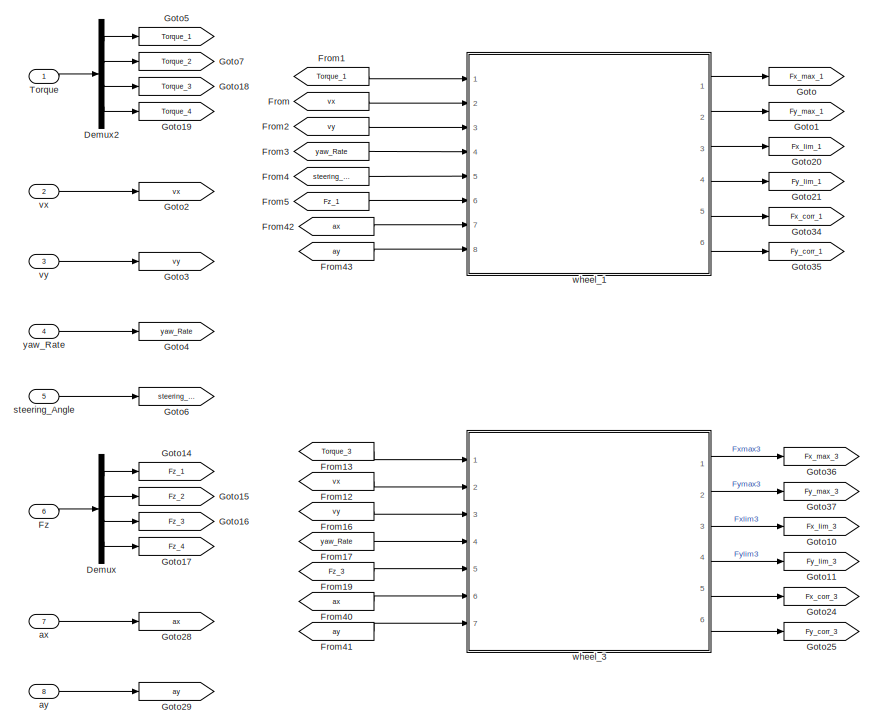
[diagram: Control Algorithm/Tire Forces from FMU data/Wheels1 - part 1/2, left side, full height]
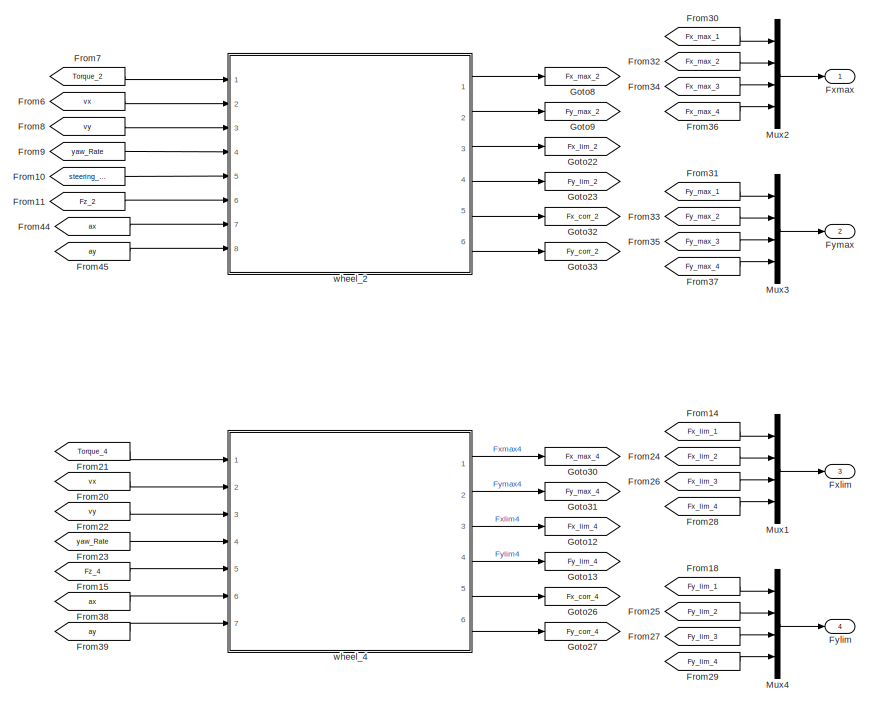
[diagram: Control Algorithm/Tire Forces from FMU data/Wheels1 - part 2/2, right side, full height]
BLOCK [SubSystem] Control Algorithm/Tire Forces from FMU data/Wheels1
  Ports = [8, 4]
  Priority = 0
  RequestExecContextInheritance = off
  Variant = off
BLOCK [Demux] Control Algorithm/Tire Forces from FMU data/Wheels1/Demux
  DisplayOption = bar
  Ports = [1, 4]
BLOCK [Demux] Control Algorithm/Tire Forces from FMU data/Wheels1/Demux2
  DisplayOption = bar
  Ports = [1, 4]
BLOCK [From] Control Algorithm/Tire Forces from FMU data/Wheels1/From
  GotoTag = vx
BLOCK [From] Control Algorithm/Tire Forces from FMU data/Wheels1/From1
  GotoTag = Torque_1
BLOCK [From] Control Algorithm/Tire Forces from FMU data/Wheels1/From10
  GotoTag = steering_Angle
BLOCK [From] Control Algorithm/Tire Forces from FMU data/Wheels1/From11
  GotoTag = Fz_2
BLOCK [From] Control Algorithm/Tire Forces from FMU data/Wheels1/From12
  GotoTag = vx
BLOCK [From] Control Algorithm/Tire Forces from FMU data/Wheels1/From13
  GotoTag = Torque_3
BLOCK [From] Control Algorithm/Tire Forces from FMU data/Wheels1/From14
  GotoTag = Fx_lim_1
BLOCK [From] Control Algorithm/Tire Forces from FMU data/Wheels1/From15
  GotoTag = Fz_4
BLOCK [From] Control Algorithm/Tire Forces from FMU data/Wheels1/From16
  GotoTag = vy
BLOCK [From] Control Algorithm/Tire Forces from FMU data/Wheels1/From17
  GotoTag = yaw_Rate
BLOCK [From] Control Algorithm/Tire Forces from FMU data/Wheels1/From18
  GotoTag = Fy_lim_1
BLOCK [From] Control Algorithm/Tire Forces from FMU data/Wheels1/From19
  GotoTag = Fz_3
BLOCK [From] Control Algorithm/Tire Forces from FMU data/Wheels1/From2
  GotoTag = vy
BLOCK [From] Control Algorithm/Tire Forces from FMU data/Wheels1/From20
  GotoTag = vx
BLOCK [From] Control Algorithm/Tire Forces from FMU data/Wheels1/From21
  GotoTag = Torque_4
BLOCK [From] Control Algorithm/Tire Forces from FMU data/Wheels1/From22
  GotoTag = vy
BLOCK [From] Control Algorithm/Tire Forces from FMU data/Wheels1/From23
  GotoTag = yaw_Rate
BLOCK [From] Control Algorithm/Tire Forces from FMU data/Wheels1/From24
  GotoTag = Fx_lim_2
BLOCK [From] Control Algorithm/Tire Forces from FMU data/Wheels1/From25
  GotoTag = Fy_lim_2
BLOCK [From] Control Algorithm/Tire Forces from FMU data/Wheels1/From26
  GotoTag = Fx_lim_3
BLOCK [From] Control Algorithm/Tire Forces from FMU data/Wheels1/From27
  GotoTag = Fy_lim_3
BLOCK [From] Control Algorithm/Tire Forces from FMU data/Wheels1/From28
  GotoTag = Fx_lim_4
BLOCK [From] Control Algorithm/Tire Forces from FMU data/Wheels1/From29
  GotoTag = Fy_lim_4
BLOCK [From] Control Algorithm/Tire Forces from FMU data/Wheels1/From3
  GotoTag = yaw_Rate
BLOCK [From] Control Algorithm/Tire Forces from FMU data/Wheels1/From30
  GotoTag = Fx_max_1
BLOCK [From] Control Algorithm/Tire Forces from FMU data/Wheels1/From31
  GotoTag = Fy_max_1
BLOCK [From] Control Algorithm/Tire Forces from FMU data/Wheels1/From32
  GotoTag = Fx_max_2
BLOCK [From] Control Algorithm/Tire Forces from FMU data/Wheels1/From33
  GotoTag = Fy_max_2
BLOCK [From] Control Algorithm/Tire Forces from FMU data/Wheels1/From34
  GotoTag = Fx_max_3
BLOCK [From] Control Algorithm/Tire Forces from FMU data/Wheels1/From35
  GotoTag = Fy_max_3
BLOCK [From] Control Algorithm/Tire Forces from FMU data/Wheels1/From36
  GotoTag = Fx_max_4
BLOCK [From] Control Algorithm/Tire Forces from FMU data/Wheels1/From37
  GotoTag = Fy_max_4
BLOCK [From] Control Algorithm/Tire Forces from FMU data/Wheels1/From38
  GotoTag = ax
BLOCK [From] Control Algorithm/Tire Forces from FMU data/Wheels1/From39
  GotoTag = ay
BLOCK [From] Control Algorithm/Tire Forces from FMU data/Wheels1/From4
  GotoTag = steering_Angle
BLOCK [From] Control Algorithm/Tire Forces from FMU data/Wheels1/From40
  GotoTag = ax
BLOCK [From] Control Algorithm/Tire Forces from FMU data/Wheels1/From41
  GotoTag = ay
BLOCK [From] Control Algorithm/Tire Forces from FMU data/Wheels1/From42
  GotoTag = ax
BLOCK [From] Control Algorithm/Tire Forces from FMU data/Wheels1/From43
  GotoTag = ay
BLOCK [From] Control Algorithm/Tire Forces from FMU data/Wheels1/From44
  GotoTag = ax
BLOCK [From] Control Algorithm/Tire Forces from FMU data/Wheels1/From45
  GotoTag = ay
BLOCK [From] Control Algorithm/Tire Forces from FMU data/Wheels1/From5
  GotoTag = Fz_1
BLOCK [From] Control Algorithm/Tire Forces from FMU data/Wheels1/From6
  GotoTag = vx
BLOCK [From] Control Algorithm/Tire Forces from FMU data/Wheels1/From7
  GotoTag = Torque_2
BLOCK [From] Control Algorithm/Tire Forces from FMU data/Wheels1/From8
  GotoTag = vy
BLOCK [From] Control Algorithm/Tire Forces from FMU data/Wheels1/From9
  GotoTag = yaw_Rate
BLOCK [Outport] Control Algorithm/Tire Forces from FMU data/Wheels1/Fxlim
  IconDisplay = Port number
  Port = 3
BLOCK [Outport] Control Algorithm/Tire Forces from FMU data/Wheels1/Fxmax
  IconDisplay = Port number
BLOCK [Outport] Control Algorithm/Tire Forces from FMU data/Wheels1/Fylim
  IconDisplay = Port number
  Port = 4
BLOCK [Outport] Control Algorithm/Tire Forces from FMU data/Wheels1/Fymax
  IconDisplay = Port number
  Port = 2
BLOCK [Inport] Control Algorithm/Tire Forces from FMU data/Wheels1/Fz
  IconDisplay = Port number
  Port = 6
BLOCK [Goto] Control Algorithm/Tire Forces from FMU data/Wheels1/Goto
  GotoTag = Fx_max_1
BLOCK [Goto] Control Algorithm/Tire Forces from FMU data/Wheels1/Goto1
  GotoTag = Fy_max_1
BLOCK [Goto] Control Algorithm/Tire Forces from FMU data/Wheels1/Goto10
  GotoTag = Fx_lim_3
BLOCK [Goto] Control Algorithm/Tire Forces from FMU data/Wheels1/Goto11
  GotoTag = Fy_lim_3
BLOCK [Goto] Control Algorithm/Tire Forces from FMU data/Wheels1/Goto12
  GotoTag = Fx_lim_4
BLOCK [Goto] Control Algorithm/Tire Forces from FMU data/Wheels1/Goto13
  GotoTag = Fy_lim_4
BLOCK [Goto] Control Algorithm/Tire Forces from FMU data/Wheels1/Goto14
  GotoTag = Fz_1
BLOCK [Goto] Control Algorithm/Tire Forces from FMU data/Wheels1/Goto15
  GotoTag = Fz_2
BLOCK [Goto] Control Algorithm/Tire Forces from FMU data/Wheels1/Goto16
  GotoTag = Fz_3
BLOCK [Goto] Control Algorithm/Tire Forces from FMU data/Wheels1/Goto17
  GotoTag = Fz_4
BLOCK [Goto] Control Algorithm/Tire Forces from FMU data/Wheels1/Goto18
  GotoTag = Torque_3
BLOCK [Goto] Control Algorithm/Tire Forces from FMU data/Wheels1/Goto19
  GotoTag = Torque_4
BLOCK [Goto] Control Algorithm/Tire Forces from FMU data/Wheels1/Goto2
  GotoTag = vx
BLOCK [Goto] Control Algorithm/Tire Forces from FMU data/Wheels1/Goto20
  GotoTag = Fx_lim_1
BLOCK [Goto] Control Algorithm/Tire Forces from FMU data/Wheels1/Goto21
  GotoTag = Fy_lim_1
BLOCK [Goto] Control Algorithm/Tire Forces from FMU data/Wheels1/Goto22
  GotoTag = Fx_lim_2
BLOCK [Goto] Control Algorithm/Tire Forces from FMU data/Wheels1/Goto23
  GotoTag = Fy_lim_2
BLOCK [Goto] Control Algorithm/Tire Forces from FMU data/Wheels1/Goto24
  GotoTag = Fx_corr_3
BLOCK [Goto] Control Algorithm/Tire Forces from FMU data/Wheels1/Goto25
  GotoTag = Fy_corr_3
BLOCK [Goto] Control Algorithm/Tire Forces from FMU data/Wheels1/Goto26
  GotoTag = Fx_corr_4
BLOCK [Goto] Control Algorithm/Tire Forces from FMU data/Wheels1/Goto27
  GotoTag = Fy_corr_4
BLOCK [Goto] Control Algorithm/Tire Forces from FMU data/Wheels1/Goto28
  GotoTag = ax
BLOCK [Goto] Control Algorithm/Tire Forces from FMU data/Wheels1/Goto29
  GotoTag = ay
BLOCK [Goto] Control Algorithm/Tire Forces from FMU data/Wheels1/Goto3
  GotoTag = vy
BLOCK [Goto] Control Algorithm/Tire Forces from FMU data/Wheels1/Goto30
  GotoTag = Fx_max_4
BLOCK [Goto] Control Algorithm/Tire Forces from FMU data/Wheels1/Goto31
  GotoTag = Fy_max_4
BLOCK [Goto] Control Algorithm/Tire Forces from FMU data/Wheels1/Goto32
  GotoTag = Fx_corr_2
BLOCK [Goto] Control Algorithm/Tire Forces from FMU data/Wheels1/Goto33
  GotoTag = Fy_corr_2
BLOCK [Goto] Control Algorithm/Tire Forces from FMU data/Wheels1/Goto34
  GotoTag = Fx_corr_1
BLOCK [Goto] Control Algorithm/Tire Forces from FMU data/Wheels1/Goto35
  GotoTag = Fy_corr_1
BLOCK [Goto] Control Algorithm/Tire Forces from FMU data/Wheels1/Goto36
  GotoTag = Fx_max_3
BLOCK [Goto] Control Algorithm/Tire Forces from FMU data/Wheels1/Goto37
  GotoTag = Fy_max_3
BLOCK [Goto] Control Algorithm/Tire Forces from FMU data/Wheels1/Goto4
  GotoTag = yaw_Rate
BLOCK [Goto] Control Algorithm/Tire Forces from FMU data/Wheels1/Goto5
  GotoTag = Torque_1
BLOCK [Goto] Control Algorithm/Tire Forces from FMU data/Wheels1/Goto6
  GotoTag = steering_Angle
BLOCK [Goto] Control Algorithm/Tire Forces from FMU data/Wheels1/Goto7
  GotoTag = Torque_2
BLOCK [Goto] Control Algorithm/Tire Forces from FMU data/Wheels1/Goto8
  GotoTag = Fx_max_2
BLOCK [Goto] Control Algorithm/Tire Forces from FMU data/Wheels1/Goto9
  GotoTag = Fy_max_2
BLOCK [Mux] Control Algorithm/Tire Forces from FMU data/Wheels1/Mux1
  DisplayOption = bar
  Ports = [4, 1]
BLOCK [Mux] Control Algorithm/Tire Forces from FMU data/Wheels1/Mux2
  DisplayOption = bar
  Ports = [4, 1]
BLOCK [Mux] Control Algorithm/Tire Forces from FMU data/Wheels1/Mux3
  DisplayOption = bar
  Ports = [4, 1]
BLOCK [Mux] Control Algorithm/Tire Forces from FMU data/Wheels1/Mux4
  DisplayOption = bar
  Ports = [4, 1]
BLOCK [Inport] Control Algorithm/Tire Forces from FMU data/Wheels1/Torque
  IconDisplay = Port number
BLOCK [Inport] Control Algorithm/Tire Forces from FMU data/Wheels1/ax
  IconDisplay = Port number
  Port = 7
BLOCK [Inport] Control Algorithm/Tire Forces from FMU data/Wheels1/ay
  IconDisplay = Port number
  Port = 8
BLOCK [Inport] Control Algorithm/Tire Forces from FMU data/Wheels1/steering_Angle
  IconDisplay = Port number
  Port = 5
BLOCK [Inport] Control Algorithm/Tire Forces from FMU data/Wheels1/vx
  IconDisplay = Port number
  Port = 2
BLOCK [Inport] Control Algorithm/Tire Forces from FMU data/Wheels1/vy
  IconDisplay = Port number
  Port = 3
BLOCK [SubSystem] Control Algorithm/Tire Forces from FMU data/Wheels1/wheel_1
  Ports = [8, 6]
  RequestExecContextInheritance = off
  Variant = off
BLOCK [Abs] Control Algorithm/Tire Forces from FMU data/Wheels1/wheel_1/Abs
  SaturateOnIntegerOverflow = off
BLOCK [Abs] Control Algorithm/Tire Forces from FMU data/Wheels1/wheel_1/Abs1
  SaturateOnIntegerOverflow = off
BLOCK [Sum] Control Algorithm/Tire Forces from FMU data/Wheels1/wheel_1/Add
  InputSameDT = off
  Inputs = --
  OutDataTypeStr = Inherit: Inherit via internal rule
  Ports = [2, 1]
  SaturateOnIntegerOverflow = off
BLOCK [Sum] Control Algorithm/Tire Forces from FMU data/Wheels1/wheel_1/Add1
  InputSameDT = off
  OutDataTypeStr = Inherit: Inherit via internal rule
  Ports = [2, 1]
  SaturateOnIntegerOverflow = off
BLOCK [Constant] Control Algorithm/Tire Forces from FMU data/Wheels1/wheel_1/Constant
  Value = 0
BLOCK [Constant] Control Algorithm/Tire Forces from FMU data/Wheels1/wheel_1/Constant1
  Value = 1.0698
BLOCK [Constant] Control Algorithm/Tire Forces from FMU data/Wheels1/wheel_1/Constant2
  Value = 1.11
BLOCK [Constant] Control Algorithm/Tire Forces from FMU data/Wheels1/wheel_1/Constant3
BLOCK [DiscreteIntegrator] Control Algorithm/Tire Forces from FMU data/Wheels1/wheel_1/Discrete-Time Integrator
  ICPrevOutput = DiscIntNeverNeededParam
  ICPrevScaledInput = DiscIntNeverNeededParam
  InitialConditionSetting = State (most efficient)
  Ports = [1, 1]
  SampleTime = -1
BLOCK [Product] Control Algorithm/Tire Forces from FMU data/Wheels1/wheel_1/Divide
  InputSameDT = off
  Inputs = */
  OutDataTypeStr = Inherit: Inherit via internal rule
  Ports = [2, 1]
  RndMeth = Floor
  SaturateOnIntegerOverflow = off
BLOCK [Product] Control Algorithm/Tire Forces from FMU data/Wheels1/wheel_1/Divide1
  InputSameDT = off
  Inputs = */
  OutDataTypeStr = Inherit: Inherit via internal rule
  Ports = [2, 1]
  RndMeth = Floor
  SaturateOnIntegerOverflow = off
BLOCK [Product] Control Algorithm/Tire Forces from FMU data/Wheels1/wheel_1/Divide2
  InputSameDT = off
  Inputs = */
  OutDataTypeStr = Inherit: Inherit via internal rule
  Ports = [2, 1]
  RndMeth = Floor
  SaturateOnIntegerOverflow = off
BLOCK [From] Control Algorithm/Tire Forces from FMU data/Wheels1/wheel_1/From
  GotoTag = Fz
BLOCK [From] Control Algorithm/Tire Forces from FMU data/Wheels1/wheel_1/From1
  GotoTag = vx
BLOCK [From] Control Algorithm/Tire Forces from FMU data/Wheels1/wheel_1/From10
  GotoTag = Fz
BLOCK [From] Control Algorithm/Tire Forces from FMU data/Wheels1/wheel_1/From12
  GotoTag = Fx
BLOCK [From] Control Algorithm/Tire Forces from FMU data/Wheels1/wheel_1/From13
  GotoTag = Fx_lim
BLOCK [From] Control Algorithm/Tire Forces from FMU data/Wheels1/wheel_1/From14
  GotoTag = Fy_lim
BLOCK [From] Control Algorithm/Tire Forces from FMU data/Wheels1/wheel_1/From15
  GotoTag = Fy
BLOCK [From] Control Algorithm/Tire Forces from FMU data/Wheels1/wheel_1/From16
  GotoTag = ax
BLOCK [From] Control Algorithm/Tire Forces from FMU data/Wheels1/wheel_1/From17
  GotoTag = ay
BLOCK [From] Control Algorithm/Tire Forces from FMU data/Wheels1/wheel_1/From19
  GotoTag = Fx_lim
BLOCK [From] Control Algorithm/Tire Forces from FMU data/Wheels1/wheel_1/From2
  GotoTag = Torque
BLOCK [From] Control Algorithm/Tire Forces from FMU data/Wheels1/wheel_1/From20
  GotoTag = Fy_lim
BLOCK [From] Control Algorithm/Tire Forces from FMU data/Wheels1/wheel_1/From21
  GotoTag = Fx_max
BLOCK [From] Control Algorithm/Tire Forces from FMU data/Wheels1/wheel_1/From22
  GotoTag = Fy_max
BLOCK [From] Control Algorithm/Tire Forces from FMU data/Wheels1/wheel_1/From23
  GotoTag = Fy_corr
BLOCK [From] Control Algorithm/Tire Forces from FMU data/Wheels1/wheel_1/From24
  GotoTag = Fx_corr
BLOCK [From] Control Algorithm/Tire Forces from FMU data/Wheels1/wheel_1/From3
  GotoTag = w
BLOCK [From] Control Algorithm/Tire Forces from FMU data/Wheels1/wheel_1/From4
  GotoTag = Fx
BLOCK [From] Control Algorithm/Tire Forces from FMU data/Wheels1/wheel_1/From5
  GotoTag = vy
BLOCK [From] Control Algorithm/Tire Forces from FMU data/Wheels1/wheel_1/From6
  GotoTag = yaw_Rate
BLOCK [From] Control Algorithm/Tire Forces from FMU data/Wheels1/wheel_1/From7
  GotoTag = vx
BLOCK [From] Control Algorithm/Tire Forces from FMU data/Wheels1/wheel_1/From8
  GotoTag = steering_Angle
BLOCK [From] Control Algorithm/Tire Forces from FMU data/Wheels1/wheel_1/From9
  GotoTag = beta
BLOCK [Outport] Control Algorithm/Tire Forces from FMU data/Wheels1/wheel_1/Fxcorr
  IconDisplay = Port number
  Port = 5
BLOCK [Outport] Control Algorithm/Tire Forces from FMU data/Wheels1/wheel_1/Fxlim
  IconDisplay = Port number
  Port = 3
BLOCK [Outport] Control Algorithm/Tire Forces from FMU data/Wheels1/wheel_1/Fxmax
  IconDisplay = Port number
BLOCK [Outport] Control Algorithm/Tire Forces from FMU data/Wheels1/wheel_1/Fycorr
  IconDisplay = Port number
  Port = 6
BLOCK [Outport] Control Algorithm/Tire Forces from FMU data/Wheels1/wheel_1/Fylim
  IconDisplay = Port number
  Port = 4
BLOCK [Outport] Control Algorithm/Tire Forces from FMU data/Wheels1/wheel_1/Fymax
  IconDisplay = Port number
  Port = 2
BLOCK [Inport] Control Algorithm/Tire Forces from FMU data/Wheels1/wheel_1/Fz
  IconDisplay = Port number
  Port = 6
BLOCK [Gain] Control Algorithm/Tire Forces from FMU data/Wheels1/wheel_1/Gain
  Gain = r
  OutDataTypeStr = Inherit: Inherit via internal rule
  ParamDataTypeStr = Inherit: Inherit via internal rule
  SaturateOnIntegerOverflow = off
BLOCK [Gain] Control Algorithm/Tire Forces from FMU data/Wheels1/wheel_1/Gain1
  Gain = lf
  OutDataTypeStr = Inherit: Inherit via internal rule
  ParamDataTypeStr = Inherit: Inherit via internal rule
  SaturateOnIntegerOverflow = off
BLOCK [Gain] Control Algorithm/Tire Forces from FMU data/Wheels1/wheel_1/Gain2
  Gain = -4.7466e-05
  OutDataTypeStr = Inherit: Inherit via internal rule
  ParamDataTypeStr = Inherit: Inherit via internal rule
  SaturateOnIntegerOverflow = off
BLOCK [Gain] Control Algorithm/Tire Forces from FMU data/Wheels1/wheel_1/Gain3
  Gain = -1.0246e-05
  OutDataTypeStr = Inherit: Inherit via internal rule
  ParamDataTypeStr = Inherit: Inherit via internal rule
  SaturateOnIntegerOverflow = off
BLOCK [Goto] Control Algorithm/Tire Forces from FMU data/Wheels1/wheel_1/Goto1
  GotoTag = vx
BLOCK [Goto] Control Algorithm/Tire Forces from FMU data/Wheels1/wheel_1/Goto10
  GotoTag = Fx
BLOCK [Goto] Control Algorithm/Tire Forces from FMU data/Wheels1/wheel_1/Goto11
  GotoTag = Fx_lim
BLOCK [Goto] Control Algorithm/Tire Forces from FMU data/Wheels1/wheel_1/Goto12
  GotoTag = Fy_lim
BLOCK [Goto] Control Algorithm/Tire Forces from FMU data/Wheels1/wheel_1/Goto13
  GotoTag = ay
BLOCK [Goto] Control Algorithm/Tire Forces from FMU data/Wheels1/wheel_1/Goto14
  GotoTag = ax
BLOCK [Goto] Control Algorithm/Tire Forces from FMU data/Wheels1/wheel_1/Goto15
  GotoTag = Fx_corr
BLOCK [Goto] Control Algorithm/Tire Forces from FMU data/Wheels1/wheel_1/Goto16
  GotoTag = Fy_corr
BLOCK [Goto] Control Algorithm/Tire Forces from FMU data/Wheels1/wheel_1/Goto17
  GotoTag = Fy_max
BLOCK [Goto] Control Algorithm/Tire Forces from FMU data/Wheels1/wheel_1/Goto18
  GotoTag = Fx_max
BLOCK [Goto] Control Algorithm/Tire Forces from FMU data/Wheels1/wheel_1/Goto2
  GotoTag = vy
BLOCK [Goto] Control Algorithm/Tire Forces from FMU data/Wheels1/wheel_1/Goto3
  GotoTag = yaw_Rate
BLOCK [Goto] Control Algorithm/Tire Forces from FMU data/Wheels1/wheel_1/Goto4
  GotoTag = steering_Angle
BLOCK [Goto] Control Algorithm/Tire Forces from FMU data/Wheels1/wheel_1/Goto5
  GotoTag = Fz
BLOCK [Goto] Control Algorithm/Tire Forces from FMU data/Wheels1/wheel_1/Goto6
  GotoTag = w
BLOCK [Goto] Control Algorithm/Tire Forces from FMU data/Wheels1/wheel_1/Goto7
  GotoTag = beta
BLOCK [Goto] Control Algorithm/Tire Forces from FMU data/Wheels1/wheel_1/Goto8
  GotoTag = Torque
BLOCK [Goto] Control Algorithm/Tire Forces from FMU data/Wheels1/wheel_1/Goto9
  GotoTag = Fy
BLOCK [Product] Control Algorithm/Tire Forces from FMU data/Wheels1/wheel_1/Product
  InputSameDT = off
  OutDataTypeStr = Inherit: Inherit via internal rule
  Ports = [2, 1]
  RndMeth = Floor
  SaturateOnIntegerOverflow = off
BLOCK [Product] Control Algorithm/Tire Forces from FMU data/Wheels1/wheel_1/Product1
  InputSameDT = off
  OutDataTypeStr = Inherit: Inherit via internal rule
  Ports = [2, 1]
  RndMeth = Floor
  SaturateOnIntegerOverflow = off
BLOCK [Product] Control Algorithm/Tire Forces from FMU data/Wheels1/wheel_1/Product4
  InputSameDT = off
  OutDataTypeStr = Inherit: Inherit via internal rule
  Ports = [2, 1]
  RndMeth = Floor
  SaturateOnIntegerOverflow = off
BLOCK [Product] Control Algorithm/Tire Forces from FMU data/Wheels1/wheel_1/Product5
  InputSameDT = off
  OutDataTypeStr = Inherit: Inherit via internal rule
  Ports = [2, 1]
  RndMeth = Floor
  SaturateOnIntegerOverflow = off
BLOCK [Product] Control Algorithm/Tire Forces from FMU data/Wheels1/wheel_1/Product6
  InputSameDT = off
  OutDataTypeStr = Inherit: Inherit via internal rule
  Ports = [2, 1]
  RndMeth = Floor
  SaturateOnIntegerOverflow = off
BLOCK [Product] Control Algorithm/Tire Forces from FMU data/Wheels1/wheel_1/Product7
  InputSameDT = off
  OutDataTypeStr = Inherit: Inherit via internal rule
  Ports = [2, 1]
  RndMeth = Floor
  SaturateOnIntegerOverflow = off
BLOCK [Signum] Control Algorithm/Tire Forces from FMU data/Wheels1/wheel_1/Sign2
BLOCK [Signum] Control Algorithm/Tire Forces from FMU data/Wheels1/wheel_1/Sign3
BLOCK [Sqrt] Control Algorithm/Tire Forces from FMU data/Wheels1/wheel_1/Sqrt
BLOCK [Sqrt] Control Algorithm/Tire Forces from FMU data/Wheels1/wheel_1/Sqrt1
BLOCK [Math] Control Algorithm/Tire Forces from FMU data/Wheels1/wheel_1/Square
  Operator = square
  Ports = [1, 1]
  RndMeth = Zero
BLOCK [Math] Control Algorithm/Tire Forces from FMU data/Wheels1/wheel_1/Square1
  Operator = square
  Ports = [1, 1]
  RndMeth = Zero
BLOCK [Math] Control Algorithm/Tire Forces from FMU data/Wheels1/wheel_1/Square2
  Operator = square
  Ports = [1, 1]
  RndMeth = Zero
BLOCK [Sum] Control Algorithm/Tire Forces from FMU data/Wheels1/wheel_1/Subtract
  InputSameDT = off
  Inputs = +-
  OutDataTypeStr = Inherit: Inherit via internal rule
  Ports = [2, 1]
  SaturateOnIntegerOverflow = off
BLOCK [Sum] Control Algorithm/Tire Forces from FMU data/Wheels1/wheel_1/Subtract1
  InputSameDT = off
  Inputs = +-
  OutDataTypeStr = Inherit: Inherit via internal rule
  Ports = [2, 1]
  SaturateOnIntegerOverflow = off
BLOCK [Sum] Control Algorithm/Tire Forces from FMU data/Wheels1/wheel_1/Subtract2
  InputSameDT = off
  Inputs = +-
  OutDataTypeStr = Inherit: Inherit via internal rule
  Ports = [2, 1]
  SaturateOnIntegerOverflow = off
BLOCK [Sum] Control Algorithm/Tire Forces from FMU data/Wheels1/wheel_1/Subtract3
  InputSameDT = off
  Inputs = -+
  OutDataTypeStr = Inherit: Inherit via internal rule
  Ports = [2, 1]
  SaturateOnIntegerOverflow = off
BLOCK [Sum] Control Algorithm/Tire Forces from FMU data/Wheels1/wheel_1/Sum
  InputSameDT = off
  Inputs = +-
  OutDataTypeStr = Inherit: Inherit via internal rule
  Ports = [2, 1]
  SaturateOnIntegerOverflow = off
BLOCK [Inport] Control Algorithm/Tire Forces from FMU data/Wheels1/wheel_1/T
  IconDisplay = Port number
BLOCK [Terminator] Control Algorithm/Tire Forces from FMU data/Wheels1/wheel_1/Terminator
BLOCK [Terminator] Control Algorithm/Tire Forces from FMU data/Wheels1/wheel_1/Terminator1
BLOCK [Terminator] Control Algorithm/Tire Forces from FMU data/Wheels1/wheel_1/Terminator2
BLOCK [Inport] Control Algorithm/Tire Forces from FMU data/Wheels1/wheel_1/ax
  IconDisplay = Port number
  Port = 7
BLOCK [Inport] Control Algorithm/Tire Forces from FMU data/Wheels1/wheel_1/ay
  IconDisplay = Port number
  Port = 8
BLOCK [Inport] Control Algorithm/Tire Forces from FMU data/Wheels1/wheel_1/steering_Angle
  IconDisplay = Port number
  Port = 5
BLOCK [FMU] Control Algorithm/Tire Forces from FMU data/Wheels1/wheel_1/tireForces
  FMUMode = CoSimulation
  FMUName = MED2018_TireModel.fmu
  FMUSampleTime = -1
  MaskDisplay = disp('TyreFMUContainer');\nport_label('output',1,'Fx');\nport_label('output',2,'Fy');\nport_label('output',3,'Mz');\nport_label('output',4,'r');\nport_label('output',5,'Mx');\nport_label('input',1,'vx');\nport_label('input',2,'w');\nport_label('input',3,'beta');\nport_label('input',4,'Fz');\nport_label('input',5,'camber');  <repeated x4 — deduplicated; at blocks: tireForces>
  MaskPromptString = Communication StepsizeCommunication stepsize between FMU and Simulink
  MaskType = TyreFMUContainer [Co-Simulation, v2.0]
  Ports = [5, 5]
BLOCK [Inport] Control Algorithm/Tire Forces from FMU data/Wheels1/wheel_1/vx
  IconDisplay = Port number
  Port = 2
BLOCK [Inport] Control Algorithm/Tire Forces from FMU data/Wheels1/wheel_1/vy
  IconDisplay = Port number
  Port = 3
BLOCK [Inport] Control Algorithm/Tire Forces from FMU data/Wheels1/wheel_1/yaw_Rate
  IconDisplay = Port number
  Port = 4
BLOCK [SubSystem] Control Algorithm/Tire Forces from FMU data/Wheels1/wheel_2
  Ports = [8, 6]
  RequestExecContextInheritance = off
  Variant = off
BLOCK [Abs] Control Algorithm/Tire Forces from FMU data/Wheels1/wheel_2/Abs
  SaturateOnIntegerOverflow = off
BLOCK [Abs] Control Algorithm/Tire Forces from FMU data/Wheels1/wheel_2/Abs1
  SaturateOnIntegerOverflow = off
BLOCK [Sum] Control Algorithm/Tire Forces from FMU data/Wheels1/wheel_2/Add
  InputSameDT = off
  Inputs = --
  OutDataTypeStr = Inherit: Inherit via internal rule
  Ports = [2, 1]
  SaturateOnIntegerOverflow = off
BLOCK [Sum] Control Algorithm/Tire Forces from FMU data/Wheels1/wheel_2/Add1
  InputSameDT = off
  OutDataTypeStr = Inherit: Inherit via internal rule
  Ports = [2, 1]
  SaturateOnIntegerOverflow = off
BLOCK [Constant] Control Algorithm/Tire Forces from FMU data/Wheels1/wheel_2/Constant
  Value = 0
BLOCK [Constant] Control Algorithm/Tire Forces from FMU data/Wheels1/wheel_2/Constant1
  Value = 1.0698
BLOCK [Constant] Control Algorithm/Tire Forces from FMU data/Wheels1/wheel_2/Constant2
  Value = 1.11
BLOCK [Constant] Control Algorithm/Tire Forces from FMU data/Wheels1/wheel_2/Constant3
BLOCK [DiscreteIntegrator] Control Algorithm/Tire Forces from FMU data/Wheels1/wheel_2/Discrete-Time Integrator
  ICPrevOutput = DiscIntNeverNeededParam
  ICPrevScaledInput = DiscIntNeverNeededParam
  InitialConditionSetting = State (most efficient)
  Ports = [1, 1]
  SampleTime = -1
BLOCK [Product] Control Algorithm/Tire Forces from FMU data/Wheels1/wheel_2/Divide
  InputSameDT = off
  Inputs = */
  OutDataTypeStr = Inherit: Inherit via internal rule
  Ports = [2, 1]
  RndMeth = Floor
  SaturateOnIntegerOverflow = off
BLOCK [Product] Control Algorithm/Tire Forces from FMU data/Wheels1/wheel_2/Divide1
  InputSameDT = off
  Inputs = */
  OutDataTypeStr = Inherit: Inherit via internal rule
  Ports = [2, 1]
  RndMeth = Floor
  SaturateOnIntegerOverflow = off
BLOCK [Product] Control Algorithm/Tire Forces from FMU data/Wheels1/wheel_2/Divide2
  InputSameDT = off
  Inputs = */
  OutDataTypeStr = Inherit: Inherit via internal rule
  Ports = [2, 1]
  RndMeth = Floor
  SaturateOnIntegerOverflow = off
BLOCK [From] Control Algorithm/Tire Forces from FMU data/Wheels1/wheel_2/From
  GotoTag = Fz
BLOCK [From] Control Algorithm/Tire Forces from FMU data/Wheels1/wheel_2/From1
  GotoTag = vx
BLOCK [From] Control Algorithm/Tire Forces from FMU data/Wheels1/wheel_2/From10
  GotoTag = Fz
BLOCK [From] Control Algorithm/Tire Forces from FMU data/Wheels1/wheel_2/From12
  GotoTag = Fx
BLOCK [From] Control Algorithm/Tire Forces from FMU data/Wheels1/wheel_2/From13
  GotoTag = Fx_lim
BLOCK [From] Control Algorithm/Tire Forces from FMU data/Wheels1/wheel_2/From14
  GotoTag = Fy_lim
BLOCK [From] Control Algorithm/Tire Forces from FMU data/Wheels1/wheel_2/From15
  GotoTag = Fy
BLOCK [From] Control Algorithm/Tire Forces from FMU data/Wheels1/wheel_2/From16
  GotoTag = ax
BLOCK [From] Control Algorithm/Tire Forces from FMU data/Wheels1/wheel_2/From17
  GotoTag = ay
BLOCK [From] Control Algorithm/Tire Forces from FMU data/Wheels1/wheel_2/From19
  GotoTag = Fx_lim
BLOCK [From] Control Algorithm/Tire Forces from FMU data/Wheels1/wheel_2/From2
  GotoTag = Torque
BLOCK [From] Control Algorithm/Tire Forces from FMU data/Wheels1/wheel_2/From20
  GotoTag = Fy_lim
BLOCK [From] Control Algorithm/Tire Forces from FMU data/Wheels1/wheel_2/From21
  GotoTag = Fx_max
BLOCK [From] Control Algorithm/Tire Forces from FMU data/Wheels1/wheel_2/From22
  GotoTag = Fy_max
BLOCK [From] Control Algorithm/Tire Forces from FMU data/Wheels1/wheel_2/From23
  GotoTag = Fy_corr
BLOCK [From] Control Algorithm/Tire Forces from FMU data/Wheels1/wheel_2/From24
  GotoTag = Fx_corr
BLOCK [From] Control Algorithm/Tire Forces from FMU data/Wheels1/wheel_2/From3
  GotoTag = w
BLOCK [From] Control Algorithm/Tire Forces from FMU data/Wheels1/wheel_2/From4
  GotoTag = Fx
BLOCK [From] Control Algorithm/Tire Forces from FMU data/Wheels1/wheel_2/From5
  GotoTag = vy
BLOCK [From] Control Algorithm/Tire Forces from FMU data/Wheels1/wheel_2/From6
  GotoTag = yaw_Rate
BLOCK [From] Control Algorithm/Tire Forces from FMU data/Wheels1/wheel_2/From7
  GotoTag = vx
BLOCK [From] Control Algorithm/Tire Forces from FMU data/Wheels1/wheel_2/From8
  GotoTag = steering_Angle
BLOCK [From] Control Algorithm/Tire Forces from FMU data/Wheels1/wheel_2/From9
  GotoTag = beta
BLOCK [Outport] Control Algorithm/Tire Forces from FMU data/Wheels1/wheel_2/Fxcorr
  IconDisplay = Port number
  Port = 5
BLOCK [Outport] Control Algorithm/Tire Forces from FMU data/Wheels1/wheel_2/Fxlim
  IconDisplay = Port number
  Port = 3
BLOCK [Outport] Control Algorithm/Tire Forces from FMU data/Wheels1/wheel_2/Fxmax
  IconDisplay = Port number
BLOCK [Outport] Control Algorithm/Tire Forces from FMU data/Wheels1/wheel_2/Fycorr
  IconDisplay = Port number
  Port = 6
BLOCK [Outport] Control Algorithm/Tire Forces from FMU data/Wheels1/wheel_2/Fylim
  IconDisplay = Port number
  Port = 4
BLOCK [Outport] Control Algorithm/Tire Forces from FMU data/Wheels1/wheel_2/Fymax
  IconDisplay = Port number
  Port = 2
BLOCK [Inport] Control Algorithm/Tire Forces from FMU data/Wheels1/wheel_2/Fz
  IconDisplay = Port number
  Port = 6
BLOCK [Gain] Control Algorithm/Tire Forces from FMU data/Wheels1/wheel_2/Gain
  Gain = r
  OutDataTypeStr = Inherit: Inherit via internal rule
  ParamDataTypeStr = Inherit: Inherit via internal rule
  SaturateOnIntegerOverflow = off
BLOCK [Gain] Control Algorithm/Tire Forces from FMU data/Wheels1/wheel_2/Gain1
  Gain = lf
  OutDataTypeStr = Inherit: Inherit via internal rule
  ParamDataTypeStr = Inherit: Inherit via internal rule
  SaturateOnIntegerOverflow = off
BLOCK [Gain] Control Algorithm/Tire Forces from FMU data/Wheels1/wheel_2/Gain2
  Gain = -4.7466e-05
  OutDataTypeStr = Inherit: Inherit via internal rule
  ParamDataTypeStr = Inherit: Inherit via internal rule
  SaturateOnIntegerOverflow = off
BLOCK [Gain] Control Algorithm/Tire Forces from FMU data/Wheels1/wheel_2/Gain3
  Gain = -1.0246e-05
  OutDataTypeStr = Inherit: Inherit via internal rule
  ParamDataTypeStr = Inherit: Inherit via internal rule
  SaturateOnIntegerOverflow = off
BLOCK [Goto] Control Algorithm/Tire Forces from FMU data/Wheels1/wheel_2/Goto1
  GotoTag = vx
BLOCK [Goto] Control Algorithm/Tire Forces from FMU data/Wheels1/wheel_2/Goto10
  GotoTag = Fx
BLOCK [Goto] Control Algorithm/Tire Forces from FMU data/Wheels1/wheel_2/Goto11
  GotoTag = Fx_lim
BLOCK [Goto] Control Algorithm/Tire Forces from FMU data/Wheels1/wheel_2/Goto12
  GotoTag = Fy_lim
BLOCK [Goto] Control Algorithm/Tire Forces from FMU data/Wheels1/wheel_2/Goto13
  GotoTag = ay
BLOCK [Goto] Control Algorithm/Tire Forces from FMU data/Wheels1/wheel_2/Goto14
  GotoTag = ax
BLOCK [Goto] Control Algorithm/Tire Forces from FMU data/Wheels1/wheel_2/Goto15
  GotoTag = Fx_corr
BLOCK [Goto] Control Algorithm/Tire Forces from FMU data/Wheels1/wheel_2/Goto16
  GotoTag = Fy_corr
BLOCK [Goto] Control Algorithm/Tire Forces from FMU data/Wheels1/wheel_2/Goto17
  GotoTag = Fy_max
BLOCK [Goto] Control Algorithm/Tire Forces from FMU data/Wheels1/wheel_2/Goto18
  GotoTag = Fx_max
BLOCK [Goto] Control Algorithm/Tire Forces from FMU data/Wheels1/wheel_2/Goto2
  GotoTag = vy
BLOCK [Goto] Control Algorithm/Tire Forces from FMU data/Wheels1/wheel_2/Goto3
  GotoTag = yaw_Rate
BLOCK [Goto] Control Algorithm/Tire Forces from FMU data/Wheels1/wheel_2/Goto4
  GotoTag = steering_Angle
BLOCK [Goto] Control Algorithm/Tire Forces from FMU data/Wheels1/wheel_2/Goto5
  GotoTag = Fz
BLOCK [Goto] Control Algorithm/Tire Forces from FMU data/Wheels1/wheel_2/Goto6
  GotoTag = w
BLOCK [Goto] Control Algorithm/Tire Forces from FMU data/Wheels1/wheel_2/Goto7
  GotoTag = beta
BLOCK [Goto] Control Algorithm/Tire Forces from FMU data/Wheels1/wheel_2/Goto8
  GotoTag = Torque
BLOCK [Goto] Control Algorithm/Tire Forces from FMU data/Wheels1/wheel_2/Goto9
  GotoTag = Fy
BLOCK [Product] Control Algorithm/Tire Forces from FMU data/Wheels1/wheel_2/Product
  InputSameDT = off
  OutDataTypeStr = Inherit: Inherit via internal rule
  Ports = [2, 1]
  RndMeth = Floor
  SaturateOnIntegerOverflow = off
BLOCK [Product] Control Algorithm/Tire Forces from FMU data/Wheels1/wheel_2/Product1
  InputSameDT = off
  OutDataTypeStr = Inherit: Inherit via internal rule
  Ports = [2, 1]
  RndMeth = Floor
  SaturateOnIntegerOverflow = off
BLOCK [Product] Control Algorithm/Tire Forces from FMU data/Wheels1/wheel_2/Product4
  InputSameDT = off
  OutDataTypeStr = Inherit: Inherit via internal rule
  Ports = [2, 1]
  RndMeth = Floor
  SaturateOnIntegerOverflow = off
BLOCK [Product] Control Algorithm/Tire Forces from FMU data/Wheels1/wheel_2/Product5
  InputSameDT = off
  OutDataTypeStr = Inherit: Inherit via internal rule
  Ports = [2, 1]
  RndMeth = Floor
  SaturateOnIntegerOverflow = off
BLOCK [Product] Control Algorithm/Tire Forces from FMU data/Wheels1/wheel_2/Product6
  InputSameDT = off
  OutDataTypeStr = Inherit: Inherit via internal rule
  Ports = [2, 1]
  RndMeth = Floor
  SaturateOnIntegerOverflow = off
BLOCK [Product] Control Algorithm/Tire Forces from FMU data/Wheels1/wheel_2/Product7
  InputSameDT = off
  OutDataTypeStr = Inherit: Inherit via internal rule
  Ports = [2, 1]
  RndMeth = Floor
  SaturateOnIntegerOverflow = off
BLOCK [Signum] Control Algorithm/Tire Forces from FMU data/Wheels1/wheel_2/Sign2
BLOCK [Signum] Control Algorithm/Tire Forces from FMU data/Wheels1/wheel_2/Sign3
BLOCK [Sqrt] Control Algorithm/Tire Forces from FMU data/Wheels1/wheel_2/Sqrt
BLOCK [Sqrt] Control Algorithm/Tire Forces from FMU data/Wheels1/wheel_2/Sqrt1
BLOCK [Math] Control Algorithm/Tire Forces from FMU data/Wheels1/wheel_2/Square
  Operator = square
  Ports = [1, 1]
  RndMeth = Zero
BLOCK [Math] Control Algorithm/Tire Forces from FMU data/Wheels1/wheel_2/Square1
  Operator = square
  Ports = [1, 1]
  RndMeth = Zero
BLOCK [Math] Control Algorithm/Tire Forces from FMU data/Wheels1/wheel_2/Square2
  Operator = square
  Ports = [1, 1]
  RndMeth = Zero
BLOCK [Sum] Control Algorithm/Tire Forces from FMU data/Wheels1/wheel_2/Subtract
  InputSameDT = off
  Inputs = +-
  OutDataTypeStr = Inherit: Inherit via internal rule
  Ports = [2, 1]
  SaturateOnIntegerOverflow = off
BLOCK [Sum] Control Algorithm/Tire Forces from FMU data/Wheels1/wheel_2/Subtract1
  InputSameDT = off
  Inputs = +-
  OutDataTypeStr = Inherit: Inherit via internal rule
  Ports = [2, 1]
  SaturateOnIntegerOverflow = off
BLOCK [Sum] Control Algorithm/Tire Forces from FMU data/Wheels1/wheel_2/Subtract2
  InputSameDT = off
  Inputs = +-
  OutDataTypeStr = Inherit: Inherit via internal rule
  Ports = [2, 1]
  SaturateOnIntegerOverflow = off
BLOCK [Sum] Control Algorithm/Tire Forces from FMU data/Wheels1/wheel_2/Subtract3
  InputSameDT = off
  Inputs = -+
  OutDataTypeStr = Inherit: Inherit via internal rule
  Ports = [2, 1]
  SaturateOnIntegerOverflow = off
BLOCK [Sum] Control Algorithm/Tire Forces from FMU data/Wheels1/wheel_2/Sum
  InputSameDT = off
  Inputs = +-
  OutDataTypeStr = Inherit: Inherit via internal rule
  Ports = [2, 1]
  SaturateOnIntegerOverflow = off
BLOCK [Inport] Control Algorithm/Tire Forces from FMU data/Wheels1/wheel_2/T
  IconDisplay = Port number
BLOCK [Terminator] Control Algorithm/Tire Forces from FMU data/Wheels1/wheel_2/Terminator
BLOCK [Terminator] Control Algorithm/Tire Forces from FMU data/Wheels1/wheel_2/Terminator1
BLOCK [Terminator] Control Algorithm/Tire Forces from FMU data/Wheels1/wheel_2/Terminator2
BLOCK [Inport] Control Algorithm/Tire Forces from FMU data/Wheels1/wheel_2/ax
  IconDisplay = Port number
  Port = 7
BLOCK [Inport] Control Algorithm/Tire Forces from FMU data/Wheels1/wheel_2/ay
  IconDisplay = Port number
  Port = 8
BLOCK [Inport] Control Algorithm/Tire Forces from FMU data/Wheels1/wheel_2/steering_Angle
  IconDisplay = Port number
  Port = 5
BLOCK [FMU] Control Algorithm/Tire Forces from FMU data/Wheels1/wheel_2/tireForces
  FMUMode = CoSimulation
  FMUName = MED2018_TireModel.fmu
  FMUSampleTime = -1
  MaskPromptString = Communication StepsizeCommunication stepsize between FMU and Simulink
  MaskType = TyreFMUContainer [Co-Simulation, v2.0]
  Ports = [5, 5]
BLOCK [Inport] Control Algorithm/Tire Forces from FMU data/Wheels1/wheel_2/vx
  IconDisplay = Port number
  Port = 2
BLOCK [Inport] Control Algorithm/Tire Forces from FMU data/Wheels1/wheel_2/vy
  IconDisplay = Port number
  Port = 3
BLOCK [Inport] Control Algorithm/Tire Forces from FMU data/Wheels1/wheel_2/yaw_Rate
  IconDisplay = Port number
  Port = 4
BLOCK [SubSystem] Control Algorithm/Tire Forces from FMU data/Wheels1/wheel_3
  Ports = [7, 6]
  RequestExecContextInheritance = off
  Variant = off
BLOCK [Abs] Control Algorithm/Tire Forces from FMU data/Wheels1/wheel_3/Abs
  SaturateOnIntegerOverflow = off
BLOCK [Abs] Control Algorithm/Tire Forces from FMU data/Wheels1/wheel_3/Abs1
  SaturateOnIntegerOverflow = off
BLOCK [Sum] Control Algorithm/Tire Forces from FMU data/Wheels1/wheel_3/Add
  InputSameDT = off
  Inputs = -+
  OutDataTypeStr = Inherit: Inherit via internal rule
  Ports = [2, 1]
  SaturateOnIntegerOverflow = off
BLOCK [Constant] Control Algorithm/Tire Forces from FMU data/Wheels1/wheel_3/Constant
  Value = 0
BLOCK [Constant] Control Algorithm/Tire Forces from FMU data/Wheels1/wheel_3/Constant1
  Value = 1.0698
BLOCK [Constant] Control Algorithm/Tire Forces from FMU data/Wheels1/wheel_3/Constant2
  Value = 1.11
BLOCK [Constant] Control Algorithm/Tire Forces from FMU data/Wheels1/wheel_3/Constant3
BLOCK [DiscreteIntegrator] Control Algorithm/Tire Forces from FMU data/Wheels1/wheel_3/Discrete-Time Integrator
  ICPrevOutput = DiscIntNeverNeededParam
  ICPrevScaledInput = DiscIntNeverNeededParam
  InitialConditionSetting = State (most efficient)
  Ports = [1, 1]
  SampleTime = -1
BLOCK [Product] Control Algorithm/Tire Forces from FMU data/Wheels1/wheel_3/Divide
  InputSameDT = off
  Inputs = */
  OutDataTypeStr = Inherit: Inherit via internal rule
  Ports = [2, 1]
  RndMeth = Floor
  SaturateOnIntegerOverflow = off
BLOCK [Product] Control Algorithm/Tire Forces from FMU data/Wheels1/wheel_3/Divide1
  InputSameDT = off
  Inputs = */
  OutDataTypeStr = Inherit: Inherit via internal rule
  Ports = [2, 1]
  RndMeth = Floor
  SaturateOnIntegerOverflow = off
BLOCK [Product] Control Algorithm/Tire Forces from FMU data/Wheels1/wheel_3/Divide2
  InputSameDT = off
  Inputs = */
  OutDataTypeStr = Inherit: Inherit via internal rule
  Ports = [2, 1]
  RndMeth = Floor
  SaturateOnIntegerOverflow = off
BLOCK [From] Control Algorithm/Tire Forces from FMU data/Wheels1/wheel_3/From
  GotoTag = Fz
BLOCK [From] Control Algorithm/Tire Forces from FMU data/Wheels1/wheel_3/From1
  GotoTag = vx
BLOCK [From] Control Algorithm/Tire Forces from FMU data/Wheels1/wheel_3/From10
  GotoTag = Fz
BLOCK [From] Control Algorithm/Tire Forces from FMU data/Wheels1/wheel_3/From12
  GotoTag = Fx
BLOCK [From] Control Algorithm/Tire Forces from FMU data/Wheels1/wheel_3/From13
  GotoTag = Fx_lim
BLOCK [From] Control Algorithm/Tire Forces from FMU data/Wheels1/wheel_3/From14
  GotoTag = Fy_lim
BLOCK [From] Control Algorithm/Tire Forces from FMU data/Wheels1/wheel_3/From15
  GotoTag = Fy
BLOCK [From] Control Algorithm/Tire Forces from FMU data/Wheels1/wheel_3/From16
  GotoTag = ax
BLOCK [From] Control Algorithm/Tire Forces from FMU data/Wheels1/wheel_3/From17
  GotoTag = ay
BLOCK [From] Control Algorithm/Tire Forces from FMU data/Wheels1/wheel_3/From19
  GotoTag = Fx_lim
BLOCK [From] Control Algorithm/Tire Forces from FMU data/Wheels1/wheel_3/From2
  GotoTag = Torque
BLOCK [From] Control Algorithm/Tire Forces from FMU data/Wheels1/wheel_3/From20
  GotoTag = Fy_lim
BLOCK [From] Control Algorithm/Tire Forces from FMU data/Wheels1/wheel_3/From21
  GotoTag = Fx_max
BLOCK [From] Control Algorithm/Tire Forces from FMU data/Wheels1/wheel_3/From22
  GotoTag = Fy_max
BLOCK [From] Control Algorithm/Tire Forces from FMU data/Wheels1/wheel_3/From23
  GotoTag = Fy_corr
BLOCK [From] Control Algorithm/Tire Forces from FMU data/Wheels1/wheel_3/From24
  GotoTag = Fx_corr
BLOCK [From] Control Algorithm/Tire Forces from FMU data/Wheels1/wheel_3/From3
  GotoTag = w
BLOCK [From] Control Algorithm/Tire Forces from FMU data/Wheels1/wheel_3/From4
  GotoTag = Fx
BLOCK [From] Control Algorithm/Tire Forces from FMU data/Wheels1/wheel_3/From5
  GotoTag = vy
BLOCK [From] Control Algorithm/Tire Forces from FMU data/Wheels1/wheel_3/From6
  GotoTag = yaw_Rate
BLOCK [From] Control Algorithm/Tire Forces from FMU data/Wheels1/wheel_3/From7
  GotoTag = vx
BLOCK [From] Control Algorithm/Tire Forces from FMU data/Wheels1/wheel_3/From9
  GotoTag = beta
BLOCK [Outport] Control Algorithm/Tire Forces from FMU data/Wheels1/wheel_3/Fxcorr
  IconDisplay = Port number
  Port = 5
BLOCK [Outport] Control Algorithm/Tire Forces from FMU data/Wheels1/wheel_3/Fxlim
  IconDisplay = Port number
  Port = 3
BLOCK [Outport] Control Algorithm/Tire Forces from FMU data/Wheels1/wheel_3/Fxmax
  IconDisplay = Port number
BLOCK [Outport] Control Algorithm/Tire Forces from FMU data/Wheels1/wheel_3/Fycorr
  IconDisplay = Port number
  Port = 6
BLOCK [Outport] Control Algorithm/Tire Forces from FMU data/Wheels1/wheel_3/Fylim
  IconDisplay = Port number
  Port = 4
BLOCK [Outport] Control Algorithm/Tire Forces from FMU data/Wheels1/wheel_3/Fymax
  IconDisplay = Port number
  Port = 2
BLOCK [Inport] Control Algorithm/Tire Forces from FMU data/Wheels1/wheel_3/Fz
  IconDisplay = Port number
  Port = 5
BLOCK [Gain] Control Algorithm/Tire Forces from FMU data/Wheels1/wheel_3/Gain
  Gain = r
  OutDataTypeStr = Inherit: Inherit via internal rule
  ParamDataTypeStr = Inherit: Inherit via internal rule
  SaturateOnIntegerOverflow = off
BLOCK [Gain] Control Algorithm/Tire Forces from FMU data/Wheels1/wheel_3/Gain1
  Gain = lr
  OutDataTypeStr = Inherit: Inherit via internal rule
  ParamDataTypeStr = Inherit: Inherit via internal rule
  SaturateOnIntegerOverflow = off
BLOCK [Gain] Control Algorithm/Tire Forces from FMU data/Wheels1/wheel_3/Gain2
  Gain = -4.7466e-05
  OutDataTypeStr = Inherit: Inherit via internal rule
  ParamDataTypeStr = Inherit: Inherit via internal rule
  SaturateOnIntegerOverflow = off
BLOCK [Gain] Control Algorithm/Tire Forces from FMU data/Wheels1/wheel_3/Gain3
  Gain = -1.0246e-05
  OutDataTypeStr = Inherit: Inherit via internal rule
  ParamDataTypeStr = Inherit: Inherit via internal rule
  SaturateOnIntegerOverflow = off
BLOCK [Goto] Control Algorithm/Tire Forces from FMU data/Wheels1/wheel_3/Goto1
  GotoTag = vx
BLOCK [Goto] Control Algorithm/Tire Forces from FMU data/Wheels1/wheel_3/Goto10
  GotoTag = Fx
BLOCK [Goto] Control Algorithm/Tire Forces from FMU data/Wheels1/wheel_3/Goto11
  GotoTag = Fx_lim
BLOCK [Goto] Control Algorithm/Tire Forces from FMU data/Wheels1/wheel_3/Goto12
  GotoTag = Fy_lim
BLOCK [Goto] Control Algorithm/Tire Forces from FMU data/Wheels1/wheel_3/Goto13
  GotoTag = ay
BLOCK [Goto] Control Algorithm/Tire Forces from FMU data/Wheels1/wheel_3/Goto15
  GotoTag = Fx_corr
BLOCK [Goto] Control Algorithm/Tire Forces from FMU data/Wheels1/wheel_3/Goto16
  GotoTag = Fy_corr
BLOCK [Goto] Control Algorithm/Tire Forces from FMU data/Wheels1/wheel_3/Goto17
  GotoTag = Fy_max
BLOCK [Goto] Control Algorithm/Tire Forces from FMU data/Wheels1/wheel_3/Goto18
  GotoTag = Fx_max
BLOCK [Goto] Control Algorithm/Tire Forces from FMU data/Wheels1/wheel_3/Goto2
  GotoTag = vy
BLOCK [Goto] Control Algorithm/Tire Forces from FMU data/Wheels1/wheel_3/Goto3
  GotoTag = yaw_Rate
BLOCK [Goto] Control Algorithm/Tire Forces from FMU data/Wheels1/wheel_3/Goto4
  GotoTag = ax
BLOCK [Goto] Control Algorithm/Tire Forces from FMU data/Wheels1/wheel_3/Goto5
  GotoTag = Fz
BLOCK [Goto] Control Algorithm/Tire Forces from FMU data/Wheels1/wheel_3/Goto6
  GotoTag = w
BLOCK [Goto] Control Algorithm/Tire Forces from FMU data/Wheels1/wheel_3/Goto7
  GotoTag = beta
BLOCK [Goto] Control Algorithm/Tire Forces from FMU data/Wheels1/wheel_3/Goto8
  GotoTag = Torque
BLOCK [Goto] Control Algorithm/Tire Forces from FMU data/Wheels1/wheel_3/Goto9
  GotoTag = Fy
BLOCK [Product] Control Algorithm/Tire Forces from FMU data/Wheels1/wheel_3/Product
  InputSameDT = off
  OutDataTypeStr = Inherit: Inherit via internal rule
  Ports = [2, 1]
  RndMeth = Floor
  SaturateOnIntegerOverflow = off
BLOCK [Product] Control Algorithm/Tire Forces from FMU data/Wheels1/wheel_3/Product1
  InputSameDT = off
  OutDataTypeStr = Inherit: Inherit via internal rule
  Ports = [2, 1]
  RndMeth = Floor
  SaturateOnIntegerOverflow = off
BLOCK [Product] Control Algorithm/Tire Forces from FMU data/Wheels1/wheel_3/Product4
  InputSameDT = off
  OutDataTypeStr = Inherit: Inherit via internal rule
  Ports = [2, 1]
  RndMeth = Floor
  SaturateOnIntegerOverflow = off
BLOCK [Product] Control Algorithm/Tire Forces from FMU data/Wheels1/wheel_3/Product5
  InputSameDT = off
  OutDataTypeStr = Inherit: Inherit via internal rule
  Ports = [2, 1]
  RndMeth = Floor
  SaturateOnIntegerOverflow = off
BLOCK [Product] Control Algorithm/Tire Forces from FMU data/Wheels1/wheel_3/Product6
  InputSameDT = off
  OutDataTypeStr = Inherit: Inherit via internal rule
  Ports = [2, 1]
  RndMeth = Floor
  SaturateOnIntegerOverflow = off
BLOCK [Product] Control Algorithm/Tire Forces from FMU data/Wheels1/wheel_3/Product7
  InputSameDT = off
  OutDataTypeStr = Inherit: Inherit via internal rule
  Ports = [2, 1]
  RndMeth = Floor
  SaturateOnIntegerOverflow = off
BLOCK [Signum] Control Algorithm/Tire Forces from FMU data/Wheels1/wheel_3/Sign2
BLOCK [Signum] Control Algorithm/Tire Forces from FMU data/Wheels1/wheel_3/Sign3
BLOCK [Sqrt] Control Algorithm/Tire Forces from FMU data/Wheels1/wheel_3/Sqrt
BLOCK [Sqrt] Control Algorithm/Tire Forces from FMU data/Wheels1/wheel_3/Sqrt1
BLOCK [Math] Control Algorithm/Tire Forces from FMU data/Wheels1/wheel_3/Square
  Operator = square
  Ports = [1, 1]
  RndMeth = Zero
BLOCK [Math] Control Algorithm/Tire Forces from FMU data/Wheels1/wheel_3/Square1
  Operator = square
  Ports = [1, 1]
  RndMeth = Zero
BLOCK [Math] Control Algorithm/Tire Forces from FMU data/Wheels1/wheel_3/Square2
  Operator = square
  Ports = [1, 1]
  RndMeth = Zero
BLOCK [Sum] Control Algorithm/Tire Forces from FMU data/Wheels1/wheel_3/Subtract
  InputSameDT = off
  Inputs = +-
  OutDataTypeStr = Inherit: Inherit via internal rule
  Ports = [2, 1]
  SaturateOnIntegerOverflow = off
BLOCK [Sum] Control Algorithm/Tire Forces from FMU data/Wheels1/wheel_3/Subtract1
  InputSameDT = off
  Inputs = +-
  OutDataTypeStr = Inherit: Inherit via internal rule
  Ports = [2, 1]
  SaturateOnIntegerOverflow = off
BLOCK [Sum] Control Algorithm/Tire Forces from FMU data/Wheels1/wheel_3/Subtract2
  InputSameDT = off
  Inputs = +-
  OutDataTypeStr = Inherit: Inherit via internal rule
  Ports = [2, 1]
  SaturateOnIntegerOverflow = off
BLOCK [Sum] Control Algorithm/Tire Forces from FMU data/Wheels1/wheel_3/Subtract3
  InputSameDT = off
  Inputs = -+
  OutDataTypeStr = Inherit: Inherit via internal rule
  Ports = [2, 1]
  SaturateOnIntegerOverflow = off
BLOCK [Sum] Control Algorithm/Tire Forces from FMU data/Wheels1/wheel_3/Sum
  InputSameDT = off
  Inputs = +-
  OutDataTypeStr = Inherit: Inherit via internal rule
  Ports = [2, 1]
  SaturateOnIntegerOverflow = off
BLOCK [Inport] Control Algorithm/Tire Forces from FMU data/Wheels1/wheel_3/T
  IconDisplay = Port number
BLOCK [Terminator] Control Algorithm/Tire Forces from FMU data/Wheels1/wheel_3/Terminator
BLOCK [Terminator] Control Algorithm/Tire Forces from FMU data/Wheels1/wheel_3/Terminator1
BLOCK [Terminator] Control Algorithm/Tire Forces from FMU data/Wheels1/wheel_3/Terminator2
BLOCK [Inport] Control Algorithm/Tire Forces from FMU data/Wheels1/wheel_3/ax
  IconDisplay = Port number
  Port = 6
BLOCK [Inport] Control Algorithm/Tire Forces from FMU data/Wheels1/wheel_3/ay
  IconDisplay = Port number
  Port = 7
BLOCK [FMU] Control Algorithm/Tire Forces from FMU data/Wheels1/wheel_3/tireForces
  FMUMode = CoSimulation
  FMUName = MED2018_TireModel.fmu
  FMUSampleTime = -1
  MaskPromptString = Communication StepsizeCommunication stepsize between FMU and Simulink
  MaskType = TyreFMUContainer [Co-Simulation, v2.0]
  Ports = [5, 5]
BLOCK [Inport] Control Algorithm/Tire Forces from FMU data/Wheels1/wheel_3/vx
  IconDisplay = Port number
  Port = 2
BLOCK [Inport] Control Algorithm/Tire Forces from FMU data/Wheels1/wheel_3/vy
  IconDisplay = Port number
  Port = 3
BLOCK [Inport] Control Algorithm/Tire Forces from FMU data/Wheels1/wheel_3/yaw_Rate
  IconDisplay = Port number
  Port = 4
BLOCK [SubSystem] Control Algorithm/Tire Forces from FMU data/Wheels1/wheel_4
  Ports = [7, 6]
  RequestExecContextInheritance = off
  Variant = off
BLOCK [Abs] Control Algorithm/Tire Forces from FMU data/Wheels1/wheel_4/Abs
  SaturateOnIntegerOverflow = off
BLOCK [Abs] Control Algorithm/Tire Forces from FMU data/Wheels1/wheel_4/Abs1
  SaturateOnIntegerOverflow = off
BLOCK [Sum] Control Algorithm/Tire Forces from FMU data/Wheels1/wheel_4/Add
  InputSameDT = off
  Inputs = -+
  OutDataTypeStr = Inherit: Inherit via internal rule
  Ports = [2, 1]
  SaturateOnIntegerOverflow = off
BLOCK [Constant] Control Algorithm/Tire Forces from FMU data/Wheels1/wheel_4/Constant
  Value = 0
BLOCK [Constant] Control Algorithm/Tire Forces from FMU data/Wheels1/wheel_4/Constant1
  Value = 1.0698
BLOCK [Constant] Control Algorithm/Tire Forces from FMU data/Wheels1/wheel_4/Constant2
  Value = 1.11
BLOCK [Constant] Control Algorithm/Tire Forces from FMU data/Wheels1/wheel_4/Constant3
BLOCK [DiscreteIntegrator] Control Algorithm/Tire Forces from FMU data/Wheels1/wheel_4/Discrete-Time Integrator
  ICPrevOutput = DiscIntNeverNeededParam
  ICPrevScaledInput = DiscIntNeverNeededParam
  InitialCondition = v_init/r
  InitialConditionSetting = State (most efficient)
  Ports = [1, 1]
  SampleTime = -1
BLOCK [Product] Control Algorithm/Tire Forces from FMU data/Wheels1/wheel_4/Divide
  InputSameDT = off
  Inputs = */
  OutDataTypeStr = Inherit: Inherit via internal rule
  Ports = [2, 1]
  RndMeth = Floor
  SaturateOnIntegerOverflow = off
BLOCK [Product] Control Algorithm/Tire Forces from FMU data/Wheels1/wheel_4/Divide1
  InputSameDT = off
  Inputs = */
  OutDataTypeStr = Inherit: Inherit via internal rule
  Ports = [2, 1]
  RndMeth = Floor
  SaturateOnIntegerOverflow = off
BLOCK [Product] Control Algorithm/Tire Forces from FMU data/Wheels1/wheel_4/Divide2
  InputSameDT = off
  Inputs = */
  OutDataTypeStr = Inherit: Inherit via internal rule
  Ports = [2, 1]
  RndMeth = Floor
  SaturateOnIntegerOverflow = off
BLOCK [From] Control Algorithm/Tire Forces from FMU data/Wheels1/wheel_4/From
  GotoTag = Fz
BLOCK [From] Control Algorithm/Tire Forces from FMU data/Wheels1/wheel_4/From1
  GotoTag = vx
BLOCK [From] Control Algorithm/Tire Forces from FMU data/Wheels1/wheel_4/From10
  GotoTag = Fz
BLOCK [From] Control Algorithm/Tire Forces from FMU data/Wheels1/wheel_4/From12
  GotoTag = Fx
BLOCK [From] Control Algorithm/Tire Forces from FMU data/Wheels1/wheel_4/From13
  GotoTag = Fx_lim
BLOCK [From] Control Algorithm/Tire Forces from FMU data/Wheels1/wheel_4/From14
  GotoTag = Fy_lim
BLOCK [From] Control Algorithm/Tire Forces from FMU data/Wheels1/wheel_4/From15
  GotoTag = Fy
BLOCK [From] Control Algorithm/Tire Forces from FMU data/Wheels1/wheel_4/From16
  GotoTag = ax
BLOCK [From] Control Algorithm/Tire Forces from FMU data/Wheels1/wheel_4/From17
  GotoTag = ay
BLOCK [From] Control Algorithm/Tire Forces from FMU data/Wheels1/wheel_4/From19
  GotoTag = Fx_lim
BLOCK [From] Control Algorithm/Tire Forces from FMU data/Wheels1/wheel_4/From2
  GotoTag = Torque
BLOCK [From] Control Algorithm/Tire Forces from FMU data/Wheels1/wheel_4/From20
  GotoTag = Fy_lim
BLOCK [From] Control Algorithm/Tire Forces from FMU data/Wheels1/wheel_4/From21
  GotoTag = Fx_max
BLOCK [From] Control Algorithm/Tire Forces from FMU data/Wheels1/wheel_4/From22
  GotoTag = Fy_max
BLOCK [From] Control Algorithm/Tire Forces from FMU data/Wheels1/wheel_4/From23
  GotoTag = Fy_corr
BLOCK [From] Control Algorithm/Tire Forces from FMU data/Wheels1/wheel_4/From24
  GotoTag = Fx_corr
BLOCK [From] Control Algorithm/Tire Forces from FMU data/Wheels1/wheel_4/From3
  GotoTag = w
BLOCK [From] Control Algorithm/Tire Forces from FMU data/Wheels1/wheel_4/From5
  GotoTag = vy
BLOCK [From] Control Algorithm/Tire Forces from FMU data/Wheels1/wheel_4/From6
  GotoTag = yaw_Rate
BLOCK [From] Control Algorithm/Tire Forces from FMU data/Wheels1/wheel_4/From7
  GotoTag = vx
BLOCK [From] Control Algorithm/Tire Forces from FMU data/Wheels1/wheel_4/From8
  GotoTag = Tx
BLOCK [From] Control Algorithm/Tire Forces from FMU data/Wheels1/wheel_4/From9
  GotoTag = beta
BLOCK [Outport] Control Algorithm/Tire Forces from FMU data/Wheels1/wheel_4/Fxcorr
  IconDisplay = Port number
  Port = 5
BLOCK [Outport] Control Algorithm/Tire Forces from FMU data/Wheels1/wheel_4/Fxlim
  IconDisplay = Port number
  Port = 3
BLOCK [Outport] Control Algorithm/Tire Forces from FMU data/Wheels1/wheel_4/Fxmax
  IconDisplay = Port number
BLOCK [Outport] Control Algorithm/Tire Forces from FMU data/Wheels1/wheel_4/Fycorr
  IconDisplay = Port number
  Port = 6
BLOCK [Outport] Control Algorithm/Tire Forces from FMU data/Wheels1/wheel_4/Fylim
  IconDisplay = Port number
  Port = 4
BLOCK [Outport] Control Algorithm/Tire Forces from FMU data/Wheels1/wheel_4/Fymax
  IconDisplay = Port number
  Port = 2
BLOCK [Inport] Control Algorithm/Tire Forces from FMU data/Wheels1/wheel_4/Fz
  IconDisplay = Port number
  Port = 5
BLOCK [Gain] Control Algorithm/Tire Forces from FMU data/Wheels1/wheel_4/Gain1
  Gain = lr
  OutDataTypeStr = Inherit: Inherit via internal rule
  ParamDataTypeStr = Inherit: Inherit via internal rule
  SaturateOnIntegerOverflow = off
BLOCK [Gain] Control Algorithm/Tire Forces from FMU data/Wheels1/wheel_4/Gain2
  Gain = -4.7466e-05
  OutDataTypeStr = Inherit: Inherit via internal rule
  ParamDataTypeStr = Inherit: Inherit via internal rule
  SaturateOnIntegerOverflow = off
BLOCK [Gain] Control Algorithm/Tire Forces from FMU data/Wheels1/wheel_4/Gain3
  Gain = -1.0246e-05
  OutDataTypeStr = Inherit: Inherit via internal rule
  ParamDataTypeStr = Inherit: Inherit via internal rule
  SaturateOnIntegerOverflow = off
BLOCK [Goto] Control Algorithm/Tire Forces from FMU data/Wheels1/wheel_4/Goto
  GotoTag = Tx
BLOCK [Goto] Control Algorithm/Tire Forces from FMU data/Wheels1/wheel_4/Goto1
  GotoTag = vx
BLOCK [Goto] Control Algorithm/Tire Forces from FMU data/Wheels1/wheel_4/Goto10
  GotoTag = Fx
BLOCK [Goto] Control Algorithm/Tire Forces from FMU data/Wheels1/wheel_4/Goto11
  GotoTag = Fx_lim
BLOCK [Goto] Control Algorithm/Tire Forces from FMU data/Wheels1/wheel_4/Goto12
  GotoTag = Fy_lim
BLOCK [Goto] Control Algorithm/Tire Forces from FMU data/Wheels1/wheel_4/Goto13
  GotoTag = ay
BLOCK [Goto] Control Algorithm/Tire Forces from FMU data/Wheels1/wheel_4/Goto15
  GotoTag = Fx_corr
BLOCK [Goto] Control Algorithm/Tire Forces from FMU data/Wheels1/wheel_4/Goto16
  GotoTag = Fy_corr
BLOCK [Goto] Control Algorithm/Tire Forces from FMU data/Wheels1/wheel_4/Goto17
  GotoTag = Fy_max
BLOCK [Goto] Control Algorithm/Tire Forces from FMU data/Wheels1/wheel_4/Goto18
  GotoTag = Fx_max
BLOCK [Goto] Control Algorithm/Tire Forces from FMU data/Wheels1/wheel_4/Goto2
  GotoTag = vy
BLOCK [Goto] Control Algorithm/Tire Forces from FMU data/Wheels1/wheel_4/Goto3
  GotoTag = yaw_Rate
BLOCK [Goto] Control Algorithm/Tire Forces from FMU data/Wheels1/wheel_4/Goto4
  GotoTag = ax
BLOCK [Goto] Control Algorithm/Tire Forces from FMU data/Wheels1/wheel_4/Goto5
  GotoTag = Fz
BLOCK [Goto] Control Algorithm/Tire Forces from FMU data/Wheels1/wheel_4/Goto6
  GotoTag = w
BLOCK [Goto] Control Algorithm/Tire Forces from FMU data/Wheels1/wheel_4/Goto7
  GotoTag = beta
BLOCK [Goto] Control Algorithm/Tire Forces from FMU data/Wheels1/wheel_4/Goto8
  GotoTag = Torque
BLOCK [Goto] Control Algorithm/Tire Forces from FMU data/Wheels1/wheel_4/Goto9
  GotoTag = Fy
BLOCK [Product] Control Algorithm/Tire Forces from FMU data/Wheels1/wheel_4/Product
  InputSameDT = off
  OutDataTypeStr = Inherit: Inherit via internal rule
  Ports = [2, 1]
  RndMeth = Floor
  SaturateOnIntegerOverflow = off
BLOCK [Product] Control Algorithm/Tire Forces from FMU data/Wheels1/wheel_4/Product1
  InputSameDT = off
  OutDataTypeStr = Inherit: Inherit via internal rule
  Ports = [2, 1]
  RndMeth = Floor
  SaturateOnIntegerOverflow = off
BLOCK [Product] Control Algorithm/Tire Forces from FMU data/Wheels1/wheel_4/Product4
  InputSameDT = off
  OutDataTypeStr = Inherit: Inherit via internal rule
  Ports = [2, 1]
  RndMeth = Floor
  SaturateOnIntegerOverflow = off
BLOCK [Product] Control Algorithm/Tire Forces from FMU data/Wheels1/wheel_4/Product5
  InputSameDT = off
  OutDataTypeStr = Inherit: Inherit via internal rule
  Ports = [2, 1]
  RndMeth = Floor
  SaturateOnIntegerOverflow = off
BLOCK [Product] Control Algorithm/Tire Forces from FMU data/Wheels1/wheel_4/Product6
  InputSameDT = off
  OutDataTypeStr = Inherit: Inherit via internal rule
  Ports = [2, 1]
  RndMeth = Floor
  SaturateOnIntegerOverflow = off
BLOCK [Product] Control Algorithm/Tire Forces from FMU data/Wheels1/wheel_4/Product7
  InputSameDT = off
  OutDataTypeStr = Inherit: Inherit via internal rule
  Ports = [2, 1]
  RndMeth = Floor
  SaturateOnIntegerOverflow = off
BLOCK [Product] Control Algorithm/Tire Forces from FMU data/Wheels1/wheel_4/Product8
  InputSameDT = off
  OutDataTypeStr = Inherit: Inherit via internal rule
  Ports = [2, 1]
  RndMeth = Floor
  SaturateOnIntegerOverflow = off
BLOCK [Signum] Control Algorithm/Tire Forces from FMU data/Wheels1/wheel_4/Sign2
BLOCK [Signum] Control Algorithm/Tire Forces from FMU data/Wheels1/wheel_4/Sign3
BLOCK [Sqrt] Control Algorithm/Tire Forces from FMU data/Wheels1/wheel_4/Sqrt
BLOCK [Sqrt] Control Algorithm/Tire Forces from FMU data/Wheels1/wheel_4/Sqrt1
BLOCK [Math] Control Algorithm/Tire Forces from FMU data/Wheels1/wheel_4/Square
  Operator = square
  Ports = [1, 1]
  RndMeth = Zero
BLOCK [Math] Control Algorithm/Tire Forces from FMU data/Wheels1/wheel_4/Square1
  Operator = square
  Ports = [1, 1]
  RndMeth = Zero
BLOCK [Math] Control Algorithm/Tire Forces from FMU data/Wheels1/wheel_4/Square2
  Operator = square
  Ports = [1, 1]
  RndMeth = Zero
BLOCK [Sum] Control Algorithm/Tire Forces from FMU data/Wheels1/wheel_4/Subtract
  InputSameDT = off
  Inputs = +-
  OutDataTypeStr = Inherit: Inherit via internal rule
  Ports = [2, 1]
  SaturateOnIntegerOverflow = off
BLOCK [Sum] Control Algorithm/Tire Forces from FMU data/Wheels1/wheel_4/Subtract1
  InputSameDT = off
  Inputs = +-
  OutDataTypeStr = Inherit: Inherit via internal rule
  Ports = [2, 1]
  SaturateOnIntegerOverflow = off
BLOCK [Sum] Control Algorithm/Tire Forces from FMU data/Wheels1/wheel_4/Subtract2
  InputSameDT = off
  Inputs = +-
  OutDataTypeStr = Inherit: Inherit via internal rule
  Ports = [2, 1]
  SaturateOnIntegerOverflow = off
BLOCK [Sum] Control Algorithm/Tire Forces from FMU data/Wheels1/wheel_4/Subtract3
  InputSameDT = off
  Inputs = -+
  OutDataTypeStr = Inherit: Inherit via internal rule
  Ports = [2, 1]
  SaturateOnIntegerOverflow = off
BLOCK [Sum] Control Algorithm/Tire Forces from FMU data/Wheels1/wheel_4/Sum
  InputSameDT = off
  Inputs = +-
  OutDataTypeStr = Inherit: Inherit via internal rule
  Ports = [2, 1]
  SaturateOnIntegerOverflow = off
BLOCK [Inport] Control Algorithm/Tire Forces from FMU data/Wheels1/wheel_4/T
  IconDisplay = Port number
BLOCK [Terminator] Control Algorithm/Tire Forces from FMU data/Wheels1/wheel_4/Terminator
BLOCK [Terminator] Control Algorithm/Tire Forces from FMU data/Wheels1/wheel_4/Terminator2
BLOCK [Inport] Control Algorithm/Tire Forces from FMU data/Wheels1/wheel_4/ax
  IconDisplay = Port number
  Port = 6
BLOCK [Inport] Control Algorithm/Tire Forces from FMU data/Wheels1/wheel_4/ay
  IconDisplay = Port number
  Port = 7
BLOCK [FMU] Control Algorithm/Tire Forces from FMU data/Wheels1/wheel_4/tireForces
  FMUDebugLogging = on
  FMUMode = CoSimulation
  FMUName = MED2018_TireModel.fmu
  FMUSampleTime = -1
  MaskPromptString = Communication StepsizeCommunication stepsize between FMU and Simulink
  MaskType = TyreFMUContainer [Co-Simulation, v2.0]
  Ports = [5, 5]
BLOCK [Inport] Control Algorithm/Tire Forces from FMU data/Wheels1/wheel_4/vx
  IconDisplay = Port number
  Port = 2
BLOCK [Inport] Control Algorithm/Tire Forces from FMU data/Wheels1/wheel_4/vy
  IconDisplay = Port number
  Port = 3
BLOCK [Inport] Control Algorithm/Tire Forces from FMU data/Wheels1/wheel_4/yaw_Rate
  IconDisplay = Port number
  Port = 4
BLOCK [Inport] Control Algorithm/Tire Forces from FMU data/Wheels1/yaw_Rate
  IconDisplay = Port number
  Port = 4
BLOCK [Inport] Control Algorithm/Tire Forces from FMU data/acc
  IconDisplay = Port number
BLOCK [Inport] Control Algorithm/Tire Forces from FMU data/steering_Angle
  IconDisplay = Port number
  Port = 4
BLOCK [Inport] Control Algorithm/Tire Forces from FMU data/vel
  IconDisplay = Port number
  Port = 3
BLOCK [Inport] Control Algorithm/Tire Forces from FMU data/yawRate
  IconDisplay = Port number
  Port = 2
BLOCK [Outport] Control Algorithm/Torque_1
  IconDisplay = Port number
  Port = 2
BLOCK [Outport] Control Algorithm/Torque_2
  IconDisplay = Port number
  Port = 3
BLOCK [Outport] Control Algorithm/Torque_3
  IconDisplay = Port number
  Port = 4
BLOCK [Outport] Control Algorithm/Torque_4
  IconDisplay = Port number
  Port = 5
BLOCK [SubSystem] Control Algorithm/Track Segment Identifier
  Ports = [2, 5]
  RequestExecContextInheritance = off
  Variant = off
BLOCK [SubSystem] Control Algorithm/Track Segment Identifier/1 if in first straight
  Ports = [2, 1]
  RequestExecContextInheritance = off
  Variant = off
BLOCK [Reference] Control Algorithm/Track Segment Identifier/1 if in first straight/Check Dynamic Range  REF=simulink/Model
Verification/Check 
Dynamic Range
  Description = min < u < max
  Ports = [3, 1]
  SourceBlock = simulink/Model\nVerification/Check \nDynamic Range
  SourceProductBaseCode = SL
  SourceProductName = Simulink
  SourceType = Checks_DRange
BLOCK [Reference] Control Algorithm/Track Segment Identifier/1 if in first straight/Check Dynamic Range1  REF=simulink/Model
Verification/Check 
Dynamic Range
  Description = min < u < max
  Ports = [3, 1]
  SourceBlock = simulink/Model\nVerification/Check \nDynamic Range
  SourceProductBaseCode = SL
  SourceProductName = Simulink
  SourceType = Checks_DRange
BLOCK [Constant] Control Algorithm/Track Segment Identifier/1 if in first straight/Constant
  Value = 50
BLOCK [Constant] Control Algorithm/Track Segment Identifier/1 if in first straight/Constant1
  Value = 0
BLOCK [Constant] Control Algorithm/Track Segment Identifier/1 if in first straight/Constant2
  Value = 6
BLOCK [Constant] Control Algorithm/Track Segment Identifier/1 if in first straight/Constant3
  Value = -6
BLOCK [Logic] Control Algorithm/Track Segment Identifier/1 if in first straight/Logical Operator
  AllPortsSameDT = off
  OutDataTypeStr = boolean
  Ports = [2, 1]
BLOCK [Inport] Control Algorithm/Track Segment Identifier/1 if in first straight/X
  IconDisplay = Port number
BLOCK [Inport] Control Algorithm/Track Segment Identifier/1 if in first straight/Y
  IconDisplay = Port number
  Port = 2
BLOCK [Outport] Control Algorithm/Track Segment Identifier/1 if in first straight/check straight 1
  IconDisplay = Port number
BLOCK [SubSystem] Control Algorithm/Track Segment Identifier/1 if in first turn
  Ports = [2, 1]
  RequestExecContextInheritance = off
  Variant = off
BLOCK [Reference] Control Algorithm/Track Segment Identifier/1 if in first turn/Check Dynamic Range  REF=simulink/Model
Verification/Check 
Dynamic Range
  Description = min < u < max
  Ports = [3, 1]
  SourceBlock = simulink/Model\nVerification/Check \nDynamic Range
  SourceProductBaseCode = SL
  SourceProductName = Simulink
  SourceType = Checks_DRange
BLOCK [Reference] Control Algorithm/Track Segment Identifier/1 if in first turn/Check Dynamic Range1  REF=simulink/Model
Verification/Check 
Dynamic Range
  Description = min < u < max
  Ports = [3, 1]
  SourceBlock = simulink/Model\nVerification/Check \nDynamic Range
  SourceProductBaseCode = SL
  SourceProductName = Simulink
  SourceType = Checks_DRange
BLOCK [Constant] Control Algorithm/Track Segment Identifier/1 if in first turn/Constant
  Value = 106
BLOCK [Constant] Control Algorithm/Track Segment Identifier/1 if in first turn/Constant1
  Value = 50
BLOCK [Constant] Control Algorithm/Track Segment Identifier/1 if in first turn/Constant2
  Value = 106
BLOCK [Constant] Control Algorithm/Track Segment Identifier/1 if in first turn/Constant3
  Value = -6
BLOCK [Logic] Control Algorithm/Track Segment Identifier/1 if in first turn/Logical Operator
  AllPortsSameDT = off
  OutDataTypeStr = boolean
  Ports = [2, 1]
BLOCK [Inport] Control Algorithm/Track Segment Identifier/1 if in first turn/X
  IconDisplay = Port number
BLOCK [Inport] Control Algorithm/Track Segment Identifier/1 if in first turn/Y
  IconDisplay = Port number
  Port = 2
BLOCK [Outport] Control Algorithm/Track Segment Identifier/1 if in first turn/check turn 1
  IconDisplay = Port number
BLOCK [SubSystem] Control Algorithm/Track Segment Identifier/1 if in last straight
  Ports = [2, 1]
  RequestExecContextInheritance = off
  Variant = off
BLOCK [Reference] Control Algorithm/Track Segment Identifier/1 if in last straight/Check Dynamic Range  REF=simulink/Model
Verification/Check 
Dynamic Range
  Description = min < u < max
  Ports = [3, 1]
  SourceBlock = simulink/Model\nVerification/Check \nDynamic Range
  SourceProductBaseCode = SL
  SourceProductName = Simulink
  SourceType = Checks_DRange
BLOCK [Reference] Control Algorithm/Track Segment Identifier/1 if in last straight/Check Dynamic Range1  REF=simulink/Model
Verification/Check 
Dynamic Range
  Description = min < u < max
  Ports = [3, 1]
  SourceBlock = simulink/Model\nVerification/Check \nDynamic Range
  SourceProductBaseCode = SL
  SourceProductName = Simulink
  SourceType = Checks_DRange
BLOCK [Constant] Control Algorithm/Track Segment Identifier/1 if in last straight/Constant
  Value = 120
BLOCK [Constant] Control Algorithm/Track Segment Identifier/1 if in last straight/Constant1
  Value = 50
BLOCK [Constant] Control Algorithm/Track Segment Identifier/1 if in last straight/Constant2
  Value = 176
BLOCK [Constant] Control Algorithm/Track Segment Identifier/1 if in last straight/Constant3
  Value = 164
BLOCK [Logic] Control Algorithm/Track Segment Identifier/1 if in last straight/Logical Operator
  AllPortsSameDT = off
  OutDataTypeStr = boolean
  Ports = [2, 1]
BLOCK [Inport] Control Algorithm/Track Segment Identifier/1 if in last straight/X
  IconDisplay = Port number
BLOCK [Inport] Control Algorithm/Track Segment Identifier/1 if in last straight/Y
  IconDisplay = Port number
  Port = 2
BLOCK [Outport] Control Algorithm/Track Segment Identifier/1 if in last straight/check last straight
  IconDisplay = Port number
BLOCK [SubSystem] Control Algorithm/Track Segment Identifier/1 if in second turn
  Ports = [2, 1]
  RequestExecContextInheritance = off
  Variant = off
BLOCK [Reference] Control Algorithm/Track Segment Identifier/1 if in second turn/Check Dynamic Range  REF=simulink/Model
Verification/Check 
Dynamic Range
  Description = min < u < max
  Ports = [3, 1]
  SourceBlock = simulink/Model\nVerification/Check \nDynamic Range
  SourceProductBaseCode = SL
  SourceProductName = Simulink
  SourceType = Checks_DRange
BLOCK [Reference] Control Algorithm/Track Segment Identifier/1 if in second turn/Check Dynamic Range1  REF=simulink/Model
Verification/Check 
Dynamic Range
  Description = min < u < max
  Ports = [3, 1]
  SourceBlock = simulink/Model\nVerification/Check \nDynamic Range
  SourceProductBaseCode = SL
  SourceProductName = Simulink
  SourceType = Checks_DRange
BLOCK [Constant] Control Algorithm/Track Segment Identifier/1 if in second turn/Constant
  Value = 50
BLOCK [Constant] Control Algorithm/Track Segment Identifier/1 if in second turn/Constant1
  Value = 9
BLOCK [Constant] Control Algorithm/Track Segment Identifier/1 if in second turn/Constant2
  Value = 182
BLOCK [Constant] Control Algorithm/Track Segment Identifier/1 if in second turn/Constant3
  Value = 100
BLOCK [Logic] Control Algorithm/Track Segment Identifier/1 if in second turn/Logical Operator
  AllPortsSameDT = off
  OutDataTypeStr = boolean
  Ports = [2, 1]
BLOCK [Inport] Control Algorithm/Track Segment Identifier/1 if in second turn/X
  IconDisplay = Port number
BLOCK [Inport] Control Algorithm/Track Segment Identifier/1 if in second turn/Y
  IconDisplay = Port number
  Port = 2
BLOCK [Outport] Control Algorithm/Track Segment Identifier/1 if in second turn/check turn 2
  IconDisplay = Port number
BLOCK [SubSystem] Control Algorithm/Track Segment Identifier/1 if in transition phase
  Ports = [2, 1]
  RequestExecContextInheritance = off
  Variant = off
BLOCK [Reference] Control Algorithm/Track Segment Identifier/1 if in transition phase/Check Dynamic Range  REF=simulink/Model
Verification/Check 
Dynamic Range
  Description = min < u < max
  Ports = [3, 1]
  SourceBlock = simulink/Model\nVerification/Check \nDynamic Range
  SourceProductBaseCode = SL
  SourceProductName = Simulink
  SourceType = Checks_DRange
BLOCK [Reference] Control Algorithm/Track Segment Identifier/1 if in transition phase/Check Dynamic Range1  REF=simulink/Model
Verification/Check 
Dynamic Range
  Description = min < u < max
  Ports = [3, 1]
  SourceBlock = simulink/Model\nVerification/Check \nDynamic Range
  SourceProductBaseCode = SL
  SourceProductName = Simulink
  SourceType = Checks_DRange
BLOCK [Constant] Control Algorithm/Track Segment Identifier/1 if in transition phase/Constant
  Value = 89.5
BLOCK [Constant] Control Algorithm/Track Segment Identifier/1 if in transition phase/Constant1
  Value = 21
BLOCK [Constant] Control Algorithm/Track Segment Identifier/1 if in transition phase/Constant2
  Value = 106
BLOCK [Constant] Control Algorithm/Track Segment Identifier/1 if in transition phase/Constant3
  Value = 89.5
BLOCK [Logic] Control Algorithm/Track Segment Identifier/1 if in transition phase/Logical Operator
  AllPortsSameDT = off
  OutDataTypeStr = boolean
  Ports = [2, 1]
BLOCK [Inport] Control Algorithm/Track Segment Identifier/1 if in transition phase/X
  IconDisplay = Port number
BLOCK [Inport] Control Algorithm/Track Segment Identifier/1 if in transition phase/Y
  IconDisplay = Port number
  Port = 2
BLOCK [Outport] Control Algorithm/Track Segment Identifier/1 if in transition phase/check transition
  IconDisplay = Port number
BLOCK [From] Control Algorithm/Track Segment Identifier/From
  GotoTag = X
BLOCK [From] Control Algorithm/Track Segment Identifier/From1
  GotoTag = Y
BLOCK [From] Control Algorithm/Track Segment Identifier/From2
  GotoTag = X
BLOCK [From] Control Algorithm/Track Segment Identifier/From3
  GotoTag = Y
BLOCK [From] Control Algorithm/Track Segment Identifier/From4
  GotoTag = X
BLOCK [From] Control Algorithm/Track Segment Identifier/From5
  GotoTag = Y
BLOCK [From] Control Algorithm/Track Segment Identifier/From6
  GotoTag = X
BLOCK [From] Control Algorithm/Track Segment Identifier/From7
  GotoTag = Y
BLOCK [From] Control Algorithm/Track Segment Identifier/From8
  GotoTag = X
BLOCK [From] Control Algorithm/Track Segment Identifier/From9
  GotoTag = Y
BLOCK [Goto] Control Algorithm/Track Segment Identifier/Goto
  GotoTag = X
BLOCK [Goto] Control Algorithm/Track Segment Identifier/Goto1
  GotoTag = Y
BLOCK [Outport] Control Algorithm/Track Segment Identifier/S1
  IconDisplay = Port number
BLOCK [Outport] Control Algorithm/Track Segment Identifier/S2
  IconDisplay = Port number
  Port = 3
BLOCK [Outport] Control Algorithm/Track Segment Identifier/S3
  IconDisplay = Port number
  Port = 5
BLOCK [Outport] Control Algorithm/Track Segment Identifier/T1
  IconDisplay = Port number
  Port = 2
BLOCK [Outport] Control Algorithm/Track Segment Identifier/T2
  IconDisplay = Port number
  Port = 4
BLOCK [Inport] Control Algorithm/Track Segment Identifier/X
  IconDisplay = Port number
BLOCK [Inport] Control Algorithm/Track Segment Identifier/Y
  IconDisplay = Port number
  Port = 2
BLOCK [Trigonometry] Control Algorithm/Trigonometric Function
  Operator = atan
  Ports = [1, 1]
BLOCK [UnitDelay] Control Algorithm/Unit Delay
  InputProcessing = Elements as channels (sample based)
  SampleTime = -1
BLOCK [Reference] Control Algorithm/XY Graph  REF=simulink/Sinks/XY Graph
  Ports = [2]
  SourceBlock = simulink/Sinks/XY Graph
  SourceProductBaseCode = SL
  SourceProductName = Simulink
  SourceType = XY scope.
BLOCK [Outport] Control Algorithm/steer
  IconDisplay = Port number
BLOCK [Delay] Delay
  InputPortMap = u0
  Ports = [1, 1]
BLOCK [Delay] Delay1
  InputPortMap = u0
  Ports = [1, 1]
BLOCK [Delay] Delay2
  InputPortMap = u0
  Ports = [1, 1]
BLOCK [Delay] Delay3
  InputPortMap = u0
  Ports = [1, 1]
BLOCK [Delay] Delay4
  InputPortMap = u0
  Ports = [1, 1]
BLOCK [Delay] Delay5
  InputPortMap = u0
  Ports = [1, 1]
BLOCK [Delay] Delay6
  InputPortMap = u0
  Ports = [1, 1]
BLOCK [Delay] Delay7
  InputPortMap = u0
  Ports = [1, 1]
BLOCK [Delay] Delay8
  InputPortMap = u0
  Ports = [1, 1]
BLOCK [FMU] FMU
  FMUMode = CoSimulation
  FMUName = MED2018_VehicleModel_sclxversion.fmu
  FMUSampleTime = -1
  MaskDisplay = disp('MED2018.VehicleModel');\nport_label('output',1,'Position');\nport_label('output',2,'Velocity');\nport_label('output',3,'Acceleration');\nport_label('output',4,'angularRate');\nport_label('output',5,'wheelSpeed');\nport_label('output',6,'wheelTorque_act');\nport_label('output',7,'offset_Lateral');\nport_label('output',8,'function_Reward');\nport_label('output',9,'simulation_State');\nport_label('input'...<+197ch>
  MaskPromptString = Communication StepsizeCommunication stepsize between FMU and Simulink
  MaskType = MED2018.VehicleModel [Co-Simulation, v2.0]
  Ports = [5, 9]
BLOCK [From] From
  GotoTag = steer
BLOCK [From] From1
  GotoTag = T1
BLOCK [From] From2
  GotoTag = T2
BLOCK [From] From3
  GotoTag = T3
BLOCK [From] From4
  GotoTag = T4
BLOCK [Goto] Goto
  GotoTag = steer
BLOCK [Goto] Goto1
  GotoTag = T1
BLOCK [Goto] Goto2
  GotoTag = T2
BLOCK [Goto] Goto3
  GotoTag = T3
BLOCK [Goto] Goto4
  GotoTag = T4
BLOCK [Display] Reward Function
  Decimation = 1
  Ports = [1]
BLOCK [Display] Simulation State
  Decimation = 1
  Ports = [1]
ANNOTATION (root): This model demonstrates a simple vehicle that replicates the behaviour of the detailed vehicle. The outputs of both models are compared for a chirp steering input.
ANNOTATION Control Algorithm/Control: Generate Drift
ANNOTATION Control Algorithm/Control: Normal Driving
ANNOTATION Control Algorithm/Control: Sustain drift
ANNOTATION Control Algorithm/Control/Drift generate: Big turn in
ANNOTATION Control Algorithm/Tire Forces from FMU data/Wheels1/wheel_1: Slip Angle Calculation
ANNOTATION Control Algorithm/Tire Forces from FMU data/Wheels1/wheel_1: Tire Forces
ANNOTATION Control Algorithm/Tire Forces from FMU data/Wheels1/wheel_1: Wheel Force Limit Calculation
ANNOTATION Control Algorithm/Tire Forces from FMU data/Wheels1/wheel_1: Wheel Rotational Dynamics
ANNOTATION Control Algorithm/Tire Forces from FMU data/Wheels1/wheel_2: Slip Angle Calculation
ANNOTATION Control Algorithm/Tire Forces from FMU data/Wheels1/wheel_2: Tire Forces
ANNOTATION Control Algorithm/Tire Forces from FMU data/Wheels1/wheel_2: Wheel Force Capacity Calculation
ANNOTATION Control Algorithm/Tire Forces from FMU data/Wheels1/wheel_2: Wheel Rotational Dynamics
ANNOTATION Control Algorithm/Tire Forces from FMU data/Wheels1/wheel_3: Slip Angle Calculation
ANNOTATION Control Algorithm/Tire Forces from FMU data/Wheels1/wheel_3: Tire Forces
ANNOTATION Control Algorithm/Tire Forces from FMU data/Wheels1/wheel_3: Wheel Force Capacity
ANNOTATION Control Algorithm/Tire Forces from FMU data/Wheels1/wheel_3: Wheel Rotational Dynamics
ANNOTATION Control Algorithm/Tire Forces from FMU data/Wheels1/wheel_4: Slip Angle Calculation
ANNOTATION Control Algorithm/Tire Forces from FMU data/Wheels1/wheel_4: Tire Forces
ANNOTATION Control Algorithm/Tire Forces from FMU data/Wheels1/wheel_4: Wheel Force Capacity
ANNOTATION Control Algorithm/Tire Forces from FMU data/Wheels1/wheel_4: Wheel Rotational Dynamics
NET Bus Creator:1 -> Bus Selector:1, Control Algorithm:1
LINE Bus Selector:1 -> Reward Function:1
LINE Bus Selector:2 -> Simulation State:1
LINE Control Algorithm/Add1:1 -> Control Algorithm/Goto23:1
LINE Control Algorithm/Add2:1 -> Control Algorithm/Goto15:1
LINE Control Algorithm/Add:1 -> Control Algorithm/Goto20:1
LINE Control Algorithm/Bus Selector:1 -> Control Algorithm/Demux:1
LINE Control Algorithm/Bus Selector:2 -> Control Algorithm/Goto4:1
LINE Control Algorithm/Bus Selector:3 -> Control Algorithm/Goto8:1
LINE Control Algorithm/Bus Selector:4 -> Control Algorithm/Demux3:1
LINE Control Algorithm/Bus Selector:5 -> Control Algorithm/Terminator7:1
LINE Control Algorithm/Bus Selector:6 -> Control Algorithm/Goto12:1
LINE Control Algorithm/Bus Selector:7 -> Control Algorithm/Goto2:1
LINE Control Algorithm/Bus Selector:8 -> Control Algorithm/Terminator1:1
NET Control Algorithm/Bus Selector:9 -> Control Algorithm/Compare To Constant:1, Control Algorithm/Display:1, Control Algorithm/Goto17:1
LINE Control Algorithm/Compare To Constant:1 -> Control Algorithm/Stop Simulation:1
NET Control Algorithm/Constant:1 -> Control Algorithm/Goto24:1, Control Algorithm/Goto25:1
NET Control Algorithm/Control/Abs:1 -> Control Algorithm/Control/Compare To Constant5:1, Control Algorithm/Control/Compare To Constant:1
LINE Control Algorithm/Control/Compare To Constant1:1 -> Control Algorithm/Control/Goto22:1
LINE Control Algorithm/Control/Compare To Constant2:1 -> Control Algorithm/Control/Goto23:1
LINE Control Algorithm/Control/Compare To Constant3:1 -> Control Algorithm/Control/Goto24:1
LINE Control Algorithm/Control/Compare To Constant4:1 -> Control Algorithm/Control/Goto26:1
LINE Control Algorithm/Control/Compare To Constant5:1 -> Control Algorithm/Control/Goto27:1
LINE Control Algorithm/Control/Compare To Constant:1 -> Control Algorithm/Control/Goto25:1
LINE Control Algorithm/Control/Demux:1 -> Control Algorithm/Control/Goto4:1
LINE Control Algorithm/Control/Demux:2 -> Control Algorithm/Control/Goto5:1
LINE Control Algorithm/Control/Demux:3 -> Control Algorithm/Control/Goto6:1
LINE Control Algorithm/Control/Demux:4 -> Control Algorithm/Control/Goto7:1
LINE Control Algorithm/Control/Demux:5 -> Control Algorithm/Control/Goto8:1
LINE Control Algorithm/Control/Drift generate/Constant1:1 -> Control Algorithm/Control/Drift generate/Subtract1:1
LINE Control Algorithm/Control/Drift generate/Discrete PID Controller1:1 -> Control Algorithm/Control/Drift generate/steer:1
LINE Control Algorithm/Control/Drift generate/From1:1 -> Control Algorithm/Control/Drift generate/Subtract1:2
LINE Control Algorithm/Control/Drift generate/Fxmax:1 -> Control Algorithm/Control/Drift generate/Max wheel force:1
LINE Control Algorithm/Control/Drift generate/Fymax:1 -> Control Algorithm/Control/Drift generate/Max wheel force:2
LINE Control Algorithm/Control/Drift generate/Max wheel force/Fxmax:1 -> Control Algorithm/Control/Drift generate/Max wheel force/Gain:1
LINE Control Algorithm/Control/Drift generate/Max wheel force/Fymax:1 -> Control Algorithm/Control/Drift generate/Max wheel force/Terminator:1
LINE Control Algorithm/Control/Drift generate/Max wheel force/Gain:1 -> Control Algorithm/Control/Drift generate/Max wheel force/Wheel Traction control:1
LINE Control Algorithm/Control/Drift generate/Max wheel force/Wheel Traction control/Abs1:1 -> Control Algorithm/Control/Drift generate/Max wheel force/Wheel Traction control/Max:2
LINE Control Algorithm/Control/Drift generate/Max wheel force/Wheel Traction control/Abs:1 -> Control Algorithm/Control/Drift generate/Max wheel force/Wheel Traction control/Max:1
LINE Control Algorithm/Control/Drift generate/Max wheel force/Wheel Traction control/Demux:1 -> Control Algorithm/Control/Drift generate/Max wheel force/Wheel Traction control/Goto1:1
LINE Control Algorithm/Control/Drift generate/Max wheel force/Wheel Traction control/Demux:2 -> Control Algorithm/Control/Drift generate/Max wheel force/Wheel Traction control/Goto2:1
LINE Control Algorithm/Control/Drift generate/Max wheel force/Wheel Traction control/Demux:3 -> Control Algorithm/Control/Drift generate/Max wheel force/Wheel Traction control/Goto3:1
LINE Control Algorithm/Control/Drift generate/Max wheel force/Wheel Traction control/Demux:4 -> Control Algorithm/Control/Drift generate/Max wheel force/Wheel Traction control/Goto4:1
LINE Control Algorithm/Control/Drift generate/Max wheel force/Wheel Traction control/From3:1 -> Control Algorithm/Control/Drift generate/Max wheel force/Wheel Traction control/Abs:1
LINE Control Algorithm/Control/Drift generate/Max wheel force/Wheel Traction control/From7:1 -> Control Algorithm/Control/Drift generate/Max wheel force/Wheel Traction control/Abs1:1
NET Control Algorithm/Control/Drift generate/Max wheel force/Wheel Traction control/Max:1 -> Control Algorithm/Control/Drift generate/Max wheel force/Wheel Traction control/cmd_Tx_3:1, Control Algorithm/Control/Drift generate/Max wheel force/Wheel Traction control/cmd_Tx_4 :1
LINE Control Algorithm/Control/Drift generate/Max wheel force/Wheel Traction control/Txmargin:1 -> Control Algorithm/Control/Drift generate/Max wheel force/Wheel Traction control/Demux:1
LINE Control Algorithm/Control/Drift generate/Max wheel force/Wheel Traction control:1 -> Control Algorithm/Control/Drift generate/Max wheel force/TxRL:1
LINE Control Algorithm/Control/Drift generate/Max wheel force/Wheel Traction control:2 -> Control Algorithm/Control/Drift generate/Max wheel force/TxRR:1
LINE Control Algorithm/Control/Drift generate/Max wheel force:1 -> Control Algorithm/Control/Drift generate/TxRL:1
LINE Control Algorithm/Control/Drift generate/Max wheel force:2 -> Control Algorithm/Control/Drift generate/TxRR:1
LINE Control Algorithm/Control/Drift generate/Subtract1:1 -> Control Algorithm/Control/Drift generate/Discrete PID Controller1:1
LINE Control Algorithm/Control/Drift generate:1 -> Control Algorithm/Control/Goto2:1
LINE Control Algorithm/Control/Drift generate:2 -> Control Algorithm/Control/Goto3:1
LINE Control Algorithm/Control/Drift generate:3 -> Control Algorithm/Control/Goto9:1
LINE Control Algorithm/Control/Drift sustain/Constant:1 -> Control Algorithm/Control/Drift sustain/Subtract:1
NET Control Algorithm/Control/Drift sustain/Discrete PID Controller5:1 -> Control Algorithm/Control/Drift sustain/TxRL:1, Control Algorithm/Control/Drift sustain/TxRR:1
LINE Control Algorithm/Control/Drift sustain/Discrete PID Controller:1 -> Control Algorithm/Control/Drift sustain/steer:1
LINE Control Algorithm/Control/Drift sustain/Discrete-Time Integrator:1 -> Control Algorithm/Control/Drift sustain/Subtract:2
LINE Control Algorithm/Control/Drift sustain/Product:1 -> Control Algorithm/Control/Drift sustain/Subtract5:2
LINE Control Algorithm/Control/Drift sustain/Subtract5:1 -> Control Algorithm/Control/Drift sustain/Discrete PID Controller5:1
LINE Control Algorithm/Control/Drift sustain/Subtract:1 -> Control Algorithm/Control/Drift sustain/Discrete PID Controller:1
LINE Control Algorithm/Control/Drift sustain/Trigonometric Function:1 -> Control Algorithm/Control/Drift sustain/Product:2
LINE Control Algorithm/Control/Drift sustain/beta:1 -> Control Algorithm/Control/Drift sustain/Trigonometric Function:1
LINE Control Algorithm/Control/Drift sustain/curve velocity:1 -> Control Algorithm/Control/Drift sustain/Subtract5:1
LINE Control Algorithm/Control/Drift sustain/vx:1 -> Control Algorithm/Control/Drift sustain/Product:1
LINE Control Algorithm/Control/Drift sustain/yawRate:1 -> Control Algorithm/Control/Drift sustain/Discrete-Time Integrator:1
LINE Control Algorithm/Control/Drift sustain:1 -> Control Algorithm/Control/Goto11:1
LINE Control Algorithm/Control/Drift sustain:2 -> Control Algorithm/Control/Goto12:1
LINE Control Algorithm/Control/Drift sustain:3 -> Control Algorithm/Control/Goto10:1
LINE Control Algorithm/Control/From10:1 -> Control Algorithm/Control/Normal Driving:3
LINE Control Algorithm/Control/From11:1 -> Control Algorithm/Control/Product26:1
LINE Control Algorithm/Control/From12:1 -> Control Algorithm/Control/Product:2
LINE Control Algorithm/Control/From13:1 -> Control Algorithm/Control/Product20:2
LINE Control Algorithm/Control/From14:1 -> Control Algorithm/Control/Product5:2
LINE Control Algorithm/Control/From15:1 -> Control Algorithm/Control/Product3:2
LINE Control Algorithm/Control/From16:1 -> Control Algorithm/Control/Product7:2
LINE Control Algorithm/Control/From17:1 -> Control Algorithm/Control/Product6:2
LINE Control Algorithm/Control/From18:1 -> Control Algorithm/Control/Product4:2
LINE Control Algorithm/Control/From19:1 -> Control Algorithm/Control/Product18:2
LINE Control Algorithm/Control/From1:1 -> Control Algorithm/Control/Normal Driving:1
LINE Control Algorithm/Control/From20:1 -> Control Algorithm/Control/Abs:1
LINE Control Algorithm/Control/From21:1 -> Control Algorithm/Control/Product9:1
LINE Control Algorithm/Control/From22:1 -> Control Algorithm/Control/Add4:3
LINE Control Algorithm/Control/From23:1 -> Control Algorithm/Control/Product:1
NET Control Algorithm/Control/From24:1 -> Control Algorithm/Control/Product3:1, Control Algorithm/Control/Product4:1
LINE Control Algorithm/Control/From25:1 -> Control Algorithm/Control/Product1:2
LINE Control Algorithm/Control/From26:1 -> Control Algorithm/Control/Product1:1
LINE Control Algorithm/Control/From27:1 -> Control Algorithm/Control/Product2:2
LINE Control Algorithm/Control/From28:1 -> Control Algorithm/Control/Product2:1
LINE Control Algorithm/Control/From29:1 -> Control Algorithm/Control/Product9:2
LINE Control Algorithm/Control/From2:1 -> Control Algorithm/Control/Normal Driving:2
LINE Control Algorithm/Control/From30:1 -> Control Algorithm/Control/Product14:2
NET Control Algorithm/Control/From31:1 -> Control Algorithm/Control/Product5:1, Control Algorithm/Control/Product6:1
LINE Control Algorithm/Control/From32:1 -> Control Algorithm/Control/Product12:2
LINE Control Algorithm/Control/From33:1 -> Control Algorithm/Control/Product8:2
NET Control Algorithm/Control/From34:1 -> Control Algorithm/Control/Product7:1, Control Algorithm/Control/Product8:1
LINE Control Algorithm/Control/From35:1 -> Control Algorithm/Control/Product16:2
LINE Control Algorithm/Control/From36:1 -> Control Algorithm/Control/Product15:2
LINE Control Algorithm/Control/From37:1 -> Control Algorithm/Control/Product13:2
LINE Control Algorithm/Control/From38:1 -> Control Algorithm/Control/Product10:1
NET Control Algorithm/Control/From39:1 -> Control Algorithm/Control/Product12:1, Control Algorithm/Control/Product13:1
LINE Control Algorithm/Control/From3:1 -> Control Algorithm/Control/Add4:1
LINE Control Algorithm/Control/From40:1 -> Control Algorithm/Control/Product10:2
LINE Control Algorithm/Control/From41:1 -> Control Algorithm/Control/Product11:1
LINE Control Algorithm/Control/From42:1 -> Control Algorithm/Control/Product11:2
LINE Control Algorithm/Control/From43:1 -> Control Algorithm/Control/Product26:2
NET Control Algorithm/Control/From44:1 -> Control Algorithm/Control/Product14:1, Control Algorithm/Control/Product15:1
LINE Control Algorithm/Control/From45:1 -> Control Algorithm/Control/Product17:2
NET Control Algorithm/Control/From46:1 -> Control Algorithm/Control/Product16:1, Control Algorithm/Control/Product17:1
LINE Control Algorithm/Control/From47:1 -> Control Algorithm/Control/Product19:2
LINE Control Algorithm/Control/From48:1 -> Control Algorithm/Control/Product23:2
LINE Control Algorithm/Control/From49:1 -> Control Algorithm/Control/Product21:2
LINE Control Algorithm/Control/From4:1 -> Control Algorithm/Control/Drift sustain:1
LINE Control Algorithm/Control/From50:1 -> Control Algorithm/Control/Product18:1
NET Control Algorithm/Control/From51:1 -> Control Algorithm/Control/Product20:1, Control Algorithm/Control/Product21:1
LINE Control Algorithm/Control/From52:1 -> Control Algorithm/Control/Product22:2
LINE Control Algorithm/Control/From53:1 -> Control Algorithm/Control/Product19:1
LINE Control Algorithm/Control/From54:1 -> Control Algorithm/Control/Product24:2
NET Control Algorithm/Control/From55:1 -> Control Algorithm/Control/Product22:1, Control Algorithm/Control/Product23:1
LINE Control Algorithm/Control/From56:1 -> Control Algorithm/Control/Product25:2
NET Control Algorithm/Control/From57:1 -> Control Algorithm/Control/Product24:1, Control Algorithm/Control/Product25:1
LINE Control Algorithm/Control/From58:1 -> Control Algorithm/Control/Add3:2
LINE Control Algorithm/Control/From59:1 -> Control Algorithm/Control/Add3:1
LINE Control Algorithm/Control/From5:1 -> Control Algorithm/Control/Add4:2
LINE Control Algorithm/Control/From60:1 -> Control Algorithm/Control/Add3:3
LINE Control Algorithm/Control/From61:1 -> Control Algorithm/Control/Add5:2
LINE Control Algorithm/Control/From62:1 -> Control Algorithm/Control/Add5:1
LINE Control Algorithm/Control/From63:1 -> Control Algorithm/Control/Add5:3
LINE Control Algorithm/Control/From64:1 -> Control Algorithm/Control/cmd_Tx3:1
LINE Control Algorithm/Control/From65:1 -> Control Algorithm/Control/cmd_Tx4:1
LINE Control Algorithm/Control/From66:1 -> Control Algorithm/Control/cmd_steer:1
LINE Control Algorithm/Control/From67:1 -> Control Algorithm/Control/Normal Driving:4
LINE Control Algorithm/Control/From68:1 -> Control Algorithm/Control/Normal Driving:5
LINE Control Algorithm/Control/From69:1 -> Control Algorithm/Control/Normal Driving:6
LINE Control Algorithm/Control/From6:1 -> Control Algorithm/Control/Drift sustain:3
LINE Control Algorithm/Control/From7:1 -> Control Algorithm/Control/Drift sustain:2
LINE Control Algorithm/Control/From8:1 -> Control Algorithm/Control/Drift generate:1
LINE Control Algorithm/Control/From9:1 -> Control Algorithm/Control/Drift generate:2
NET Control Algorithm/Control/From:1 -> Control Algorithm/Control/Compare To Constant1:1, Control Algorithm/Control/Compare To Constant2:1, Control Algorithm/Control/Compare To Constant3:1, Control Algorithm/Control/Compare To Constant4:1
LINE Control Algorithm/Control/Fxlim:1 -> Control Algorithm/Control/Goto18:1
LINE Control Algorithm/Control/Fxmax :1 -> Control Algorithm/Control/Goto20:1
LINE Control Algorithm/Control/Fylim:1 -> Control Algorithm/Control/Goto19:1
LINE Control Algorithm/Control/Fymax:1 -> Control Algorithm/Control/Goto21:1
LINE Control Algorithm/Control/Normal Driving/Constant1:1 -> Control Algorithm/Control/Normal Driving/Switch1:1
LINE Control Algorithm/Control/Normal Driving/Constant3:1 -> Control Algorithm/Control/Normal Driving/Subtract2:1
LINE Control Algorithm/Control/Normal Driving/Constant:1 -> Control Algorithm/Control/Normal Driving/Switch1:3
NET Control Algorithm/Control/Normal Driving/Discrete PID Controller1:1 -> Control Algorithm/Control/Normal Driving/TxRL:1, Control Algorithm/Control/Normal Driving/TxRR:1
LINE Control Algorithm/Control/Normal Driving/Discrete PID Controller2:1 -> Control Algorithm/Control/Normal Driving/steer:1
LINE Control Algorithm/Control/Normal Driving/Fxmax:1 -> Control Algorithm/Control/Normal Driving/Gain:1
LINE Control Algorithm/Control/Normal Driving/Gain:1 -> Control Algorithm/Control/Normal Driving/Wheel ESP:2
LINE Control Algorithm/Control/Normal Driving/Logical Operator1:1 -> Control Algorithm/Control/Normal Driving/Switch1:2
LINE Control Algorithm/Control/Normal Driving/S2:1 -> Control Algorithm/Control/Normal Driving/Logical Operator1:1
LINE Control Algorithm/Control/Normal Driving/Subtract1:1 -> Control Algorithm/Control/Normal Driving/Discrete PID Controller1:1
LINE Control Algorithm/Control/Normal Driving/Subtract2:1 -> Control Algorithm/Control/Normal Driving/Discrete PID Controller2:1
LINE Control Algorithm/Control/Normal Driving/Switch1:1 -> Control Algorithm/Control/Normal Driving/Subtract1:1
LINE Control Algorithm/Control/Normal Driving/T1:1 -> Control Algorithm/Control/Normal Driving/Logical Operator1:2
LINE Control Algorithm/Control/Normal Driving/Wheel ESP/Abs1:1 -> Control Algorithm/Control/Normal Driving/Wheel ESP/Min1:1
LINE Control Algorithm/Control/Normal Driving/Wheel ESP/Abs2:1 -> Control Algorithm/Control/Normal Driving/Wheel ESP/Min1:2
LINE Control Algorithm/Control/Normal Driving/Wheel ESP/Abs8:1 -> Control Algorithm/Control/Normal Driving/Wheel ESP/Min4:1
LINE Control Algorithm/Control/Normal Driving/Wheel ESP/Abs9:1 -> Control Algorithm/Control/Normal Driving/Wheel ESP/Min4:2
LINE Control Algorithm/Control/Normal Driving/Wheel ESP/Demux:1 -> Control Algorithm/Control/Normal Driving/Wheel ESP/Goto1:1
LINE Control Algorithm/Control/Normal Driving/Wheel ESP/Demux:2 -> Control Algorithm/Control/Normal Driving/Wheel ESP/Goto2:1
LINE Control Algorithm/Control/Normal Driving/Wheel ESP/Demux:3 -> Control Algorithm/Control/Normal Driving/Wheel ESP/Goto3:1
LINE Control Algorithm/Control/Normal Driving/Wheel ESP/Demux:4 -> Control Algorithm/Control/Normal Driving/Wheel ESP/Goto4:1
LINE Control Algorithm/Control/Normal Driving/Wheel ESP/From10:1 -> Control Algorithm/Control/Normal Driving/Wheel ESP/Saturation Dynamic3:1
LINE Control Algorithm/Control/Normal Driving/Wheel ESP/From11:1 -> Control Algorithm/Control/Normal Driving/Wheel ESP/Gain5:1
LINE Control Algorithm/Control/Normal Driving/Wheel ESP/From12:1 -> Control Algorithm/Control/Normal Driving/Wheel ESP/Gain4:1
NET Control Algorithm/Control/Normal Driving/Wheel ESP/From1:1 -> Control Algorithm/Control/Normal Driving/Wheel ESP/Saturation Dynamic3:2, Control Algorithm/Control/Normal Driving/Wheel ESP/Sign1:1
LINE Control Algorithm/Control/Normal Driving/Wheel ESP/From2:1 -> Control Algorithm/Control/Normal Driving/Wheel ESP/Saturation Dynamic:2
LINE Control Algorithm/Control/Normal Driving/Wheel ESP/From3:1 -> Control Algorithm/Control/Normal Driving/Wheel ESP/Saturation Dynamic:1
LINE Control Algorithm/Control/Normal Driving/Wheel ESP/From4:1 -> Control Algorithm/Control/Normal Driving/Wheel ESP/Saturation Dynamic2:1
NET Control Algorithm/Control/Normal Driving/Wheel ESP/From6:1 -> Control Algorithm/Control/Normal Driving/Wheel ESP/Saturation Dynamic1:2, Control Algorithm/Control/Normal Driving/Wheel ESP/Sign4:1
LINE Control Algorithm/Control/Normal Driving/Wheel ESP/From7:1 -> Control Algorithm/Control/Normal Driving/Wheel ESP/Saturation Dynamic1:1
LINE Control Algorithm/Control/Normal Driving/Wheel ESP/From8:1 -> Control Algorithm/Control/Normal Driving/Wheel ESP/Gain3:1
LINE Control Algorithm/Control/Normal Driving/Wheel ESP/From9:1 -> Control Algorithm/Control/Normal Driving/Wheel ESP/Gain2:1
LINE Control Algorithm/Control/Normal Driving/Wheel ESP/From:1 -> Control Algorithm/Control/Normal Driving/Wheel ESP/Saturation Dynamic2:2
LINE Control Algorithm/Control/Normal Driving/Wheel ESP/Gain1:1 -> Control Algorithm/Control/Normal Driving/Wheel ESP/Goto5:1
LINE Control Algorithm/Control/Normal Driving/Wheel ESP/Gain2:1 -> Control Algorithm/Control/Normal Driving/Wheel ESP/Saturation Dynamic:3
LINE Control Algorithm/Control/Normal Driving/Wheel ESP/Gain3:1 -> Control Algorithm/Control/Normal Driving/Wheel ESP/Saturation Dynamic1:3
LINE Control Algorithm/Control/Normal Driving/Wheel ESP/Gain4:1 -> Control Algorithm/Control/Normal Driving/Wheel ESP/Saturation Dynamic2:3
LINE Control Algorithm/Control/Normal Driving/Wheel ESP/Gain5:1 -> Control Algorithm/Control/Normal Driving/Wheel ESP/Saturation Dynamic3:3
LINE Control Algorithm/Control/Normal Driving/Wheel ESP/Gain:1 -> Control Algorithm/Control/Normal Driving/Wheel ESP/Goto:1
LINE Control Algorithm/Control/Normal Driving/Wheel ESP/Min1:1 -> Control Algorithm/Control/Normal Driving/Wheel ESP/Product1:2
LINE Control Algorithm/Control/Normal Driving/Wheel ESP/Min4:1 -> Control Algorithm/Control/Normal Driving/Wheel ESP/Product4:2
LINE Control Algorithm/Control/Normal Driving/Wheel ESP/Product1:1 -> Control Algorithm/Control/Normal Driving/Wheel ESP/cmd_Tx_F:1
LINE Control Algorithm/Control/Normal Driving/Wheel ESP/Product4:1 -> Control Algorithm/Control/Normal Driving/Wheel ESP/cmd_Tx_R:1
LINE Control Algorithm/Control/Normal Driving/Wheel ESP/Saturation Dynamic1:1 -> Control Algorithm/Control/Normal Driving/Wheel ESP/Abs9:1
LINE Control Algorithm/Control/Normal Driving/Wheel ESP/Saturation Dynamic2:1 -> Control Algorithm/Control/Normal Driving/Wheel ESP/Abs1:1
LINE Control Algorithm/Control/Normal Driving/Wheel ESP/Saturation Dynamic3:1 -> Control Algorithm/Control/Normal Driving/Wheel ESP/Abs2:1
LINE Control Algorithm/Control/Normal Driving/Wheel ESP/Saturation Dynamic:1 -> Control Algorithm/Control/Normal Driving/Wheel ESP/Abs8:1
LINE Control Algorithm/Control/Normal Driving/Wheel ESP/Sign1:1 -> Control Algorithm/Control/Normal Driving/Wheel ESP/Product1:1
LINE Control Algorithm/Control/Normal Driving/Wheel ESP/Sign4:1 -> Control Algorithm/Control/Normal Driving/Wheel ESP/Product4:1
LINE Control Algorithm/Control/Normal Driving/Wheel ESP/Txmax:1 -> Control Algorithm/Control/Normal Driving/Wheel ESP/Demux:1
NET Control Algorithm/Control/Normal Driving/Wheel ESP/cmd_Tx:1 -> Control Algorithm/Control/Normal Driving/Wheel ESP/Gain1:1, Control Algorithm/Control/Normal Driving/Wheel ESP/Gain:1
LINE Control Algorithm/Control/Normal Driving/offset:1 -> Control Algorithm/Control/Normal Driving/Subtract2:2
LINE Control Algorithm/Control/Normal Driving/vx:1 -> Control Algorithm/Control/Normal Driving/Subtract1:2
LINE Control Algorithm/Control/Normal Driving:1 -> Control Algorithm/Control/Goto15:1
LINE Control Algorithm/Control/Normal Driving:2 -> Control Algorithm/Control/Goto16:1
LINE Control Algorithm/Control/Normal Driving:3 -> Control Algorithm/Control/Goto13:1
LINE Control Algorithm/Control/Product10:1 -> Control Algorithm/Control/Goto39:1
LINE Control Algorithm/Control/Product11:1 -> Control Algorithm/Control/Goto40:1
LINE Control Algorithm/Control/Product12:1 -> Control Algorithm/Control/Goto41:1
LINE Control Algorithm/Control/Product13:1 -> Control Algorithm/Control/Goto44:1
LINE Control Algorithm/Control/Product14:1 -> Control Algorithm/Control/Goto42:1
LINE Control Algorithm/Control/Product15:1 -> Control Algorithm/Control/Goto45:1
LINE Control Algorithm/Control/Product16:1 -> Control Algorithm/Control/Goto43:1
LINE Control Algorithm/Control/Product17:1 -> Control Algorithm/Control/Goto46:1
LINE Control Algorithm/Control/Product18:1 -> Control Algorithm/Control/Goto34:1
LINE Control Algorithm/Control/Product19:1 -> Control Algorithm/Control/Goto35:1
LINE Control Algorithm/Control/Product1:1 -> Control Algorithm/Control/Goto50:1
LINE Control Algorithm/Control/Product20:1 -> Control Algorithm/Control/Goto38:1
LINE Control Algorithm/Control/Product21:1 -> Control Algorithm/Control/Goto30:1
LINE Control Algorithm/Control/Product22:1 -> Control Algorithm/Control/Goto37:1
LINE Control Algorithm/Control/Product23:1 -> Control Algorithm/Control/Goto31:1
LINE Control Algorithm/Control/Product24:1 -> Control Algorithm/Control/Goto36:1
LINE Control Algorithm/Control/Product25:1 -> Control Algorithm/Control/Goto32:1
LINE Control Algorithm/Control/Product26:1 -> Control Algorithm/Control/Goto33:1
LINE Control Algorithm/Control/Product2:1 -> Control Algorithm/Control/Goto49:1
LINE Control Algorithm/Control/Product3:1 -> Control Algorithm/Control/Goto53:1
LINE Control Algorithm/Control/Product4:1 -> Control Algorithm/Control/Goto54:1
LINE Control Algorithm/Control/Product5:1 -> Control Algorithm/Control/Goto51:1
LINE Control Algorithm/Control/Product6:1 -> Control Algorithm/Control/Goto52:1
LINE Control Algorithm/Control/Product7:1 -> Control Algorithm/Control/Goto48:1
LINE Control Algorithm/Control/Product8:1 -> Control Algorithm/Control/Goto47:1
LINE Control Algorithm/Control/Product9:1 -> Control Algorithm/Control/Goto29:1
LINE Control Algorithm/Control/Product:1 -> Control Algorithm/Control/Goto28:1
LINE Control Algorithm/Control/beta:1 -> Control Algorithm/Control/Goto1:1
LINE Control Algorithm/Control/offset:1 -> Control Algorithm/Control/Goto:1
LINE Control Algorithm/Control/segment:1 -> Control Algorithm/Control/Demux:1
LINE Control Algorithm/Control/vel_x:1 -> Control Algorithm/Control/Goto14:1
LINE Control Algorithm/Control/yawRate:1 -> Control Algorithm/Control/Goto17:1
LINE Control Algorithm/Control:1 -> Control Algorithm/Goto14:1
LINE Control Algorithm/Control:2 -> Control Algorithm/Goto21:1
LINE Control Algorithm/Control:3 -> Control Algorithm/Goto13:1
LINE Control Algorithm/Delay1:1 -> Control Algorithm/Torque_1:1
LINE Control Algorithm/Delay2:1 -> Control Algorithm/Torque_2:1
LINE Control Algorithm/Delay3:1 -> Control Algorithm/Torque_3:1
LINE Control Algorithm/Delay4:1 -> Control Algorithm/Torque_4:1
LINE Control Algorithm/Delay:1 -> Control Algorithm/steer:1
LINE Control Algorithm/Demux1:1 -> Control Algorithm/Goto5:1
LINE Control Algorithm/Demux1:2 -> Control Algorithm/Goto6:1
LINE Control Algorithm/Demux1:3 -> Control Algorithm/Terminator6:1
LINE Control Algorithm/Demux3:1 -> Control Algorithm/Terminator4:1
LINE Control Algorithm/Demux3:2 -> Control Algorithm/Terminator5:1
LINE Control Algorithm/Demux3:3 -> Control Algorithm/Goto7:1
NET Control Algorithm/Demux:1 -> Control Algorithm/Goto:1, Control Algorithm/XY Graph:1
NET Control Algorithm/Demux:2 -> Control Algorithm/Goto1:1, Control Algorithm/XY Graph:2
LINE Control Algorithm/Divide:1 -> Control Algorithm/Trigonometric Function:1
LINE Control Algorithm/Feedback:1 -> Control Algorithm/Bus Selector:1
LINE Control Algorithm/From10:1 -> Control Algorithm/Control:7
LINE Control Algorithm/From11:1 -> Control Algorithm/Control:1
LINE Control Algorithm/From12:1 -> Control Algorithm/Track Segment Identifier:1
LINE Control Algorithm/From13:1 -> Control Algorithm/Tire Forces from FMU data:4
LINE Control Algorithm/From14:1 -> Control Algorithm/Track Segment Identifier:2
LINE Control Algorithm/From18:1 -> Control Algorithm/Divide:1
LINE Control Algorithm/From19:1 -> Control Algorithm/Divide:2
LINE Control Algorithm/From1:1 -> Control Algorithm/Control:9
LINE Control Algorithm/From21:1 -> Control Algorithm/Demux1:1
LINE Control Algorithm/From22:1 -> Control Algorithm/Tire Forces from FMU data:2
LINE Control Algorithm/From23:1 -> Control Algorithm/Tire Forces from FMU data:3
LINE Control Algorithm/From24:1 -> Control Algorithm/Tire Forces from FMU data:1
LINE Control Algorithm/From25:1 -> Control Algorithm/Control:2
LINE Control Algorithm/From26:1 -> Control Algorithm/Control:3
LINE Control Algorithm/From28:1 -> Control Algorithm/Control:4
LINE Control Algorithm/From29:1 -> Control Algorithm/Control:6
LINE Control Algorithm/From2:1 -> Control Algorithm/Product3:1
LINE Control Algorithm/From30:1 -> Control Algorithm/Add1:2
LINE Control Algorithm/From33:1 -> Control Algorithm/Add:2
LINE Control Algorithm/From34:1 -> Control Algorithm/Add2:1
LINE Control Algorithm/From35:1 -> Control Algorithm/Control:5
LINE Control Algorithm/From3:1 -> Control Algorithm/Product2:1
LINE Control Algorithm/From4:1 -> Control Algorithm/Product1:1
LINE Control Algorithm/From5:1 -> Control Algorithm/Product:1
LINE Control Algorithm/From6:1 -> Control Algorithm/Rate Limiter:1
LINE Control Algorithm/From9:1 -> Control Algorithm/Control:8
LINE Control Algorithm/From:1 -> Control Algorithm/Tire Forces from FMU data:5
LINE Control Algorithm/Mux1:1 -> Control Algorithm/Goto11:1
LINE Control Algorithm/Product1:1 -> Control Algorithm/Delay3:1
LINE Control Algorithm/Product2:1 -> Control Algorithm/Delay2:1
LINE Control Algorithm/Product3:1 -> Control Algorithm/Delay1:1
LINE Control Algorithm/Product4:1 -> Control Algorithm/Delay:1
LINE Control Algorithm/Product:1 -> Control Algorithm/Delay4:1
LINE Control Algorithm/Rate Limiter:1 -> Control Algorithm/Product4:1
LINE Control Algorithm/SimState Check/Compare To Constant:1 -> Control Algorithm/SimState Check/Switch:2
LINE Control Algorithm/SimState Check/Constant1:1 -> Control Algorithm/SimState Check/Switch:3
LINE Control Algorithm/SimState Check/Constant2:1 -> Control Algorithm/SimState Check/Switch:1
LINE Control Algorithm/SimState Check/From7:1 -> Control Algorithm/SimState Check/Compare To Constant:1
LINE Control Algorithm/SimState Check/Switch:1 -> Control Algorithm/SimState Check/Out1:1
LINE Control Algorithm/SimState Check:1 -> Control Algorithm/Unit Delay:1
LINE Control Algorithm/Tire Forces from FMU data/Demux1:1 -> Control Algorithm/Tire Forces from FMU data/Goto10:1
LINE Control Algorithm/Tire Forces from FMU data/Demux1:2 -> Control Algorithm/Tire Forces from FMU data/Goto11:1
LINE Control Algorithm/Tire Forces from FMU data/Demux1:3 -> Control Algorithm/Tire Forces from FMU data/Terminator6:1
LINE Control Algorithm/Tire Forces from FMU data/Demux2:1 -> Control Algorithm/Tire Forces from FMU data/Goto13:1
LINE Control Algorithm/Tire Forces from FMU data/Demux2:2 -> Control Algorithm/Tire Forces from FMU data/Goto14:1
LINE Control Algorithm/Tire Forces from FMU data/Demux2:3 -> Control Algorithm/Tire Forces from FMU data/Terminator3:1
LINE Control Algorithm/Tire Forces from FMU data/From10:1 -> Control Algorithm/Tire Forces from FMU data/Wheels1:1
LINE Control Algorithm/Tire Forces from FMU data/From12:1 -> Control Algorithm/Tire Forces from FMU data/Tire Vertical Load:1
LINE Control Algorithm/Tire Forces from FMU data/From13:1 -> Control Algorithm/Tire Forces from FMU data/Tire Vertical Load:2
LINE Control Algorithm/Tire Forces from FMU data/From1:1 -> Control Algorithm/Tire Forces from FMU data/Wheels1:7
LINE Control Algorithm/Tire Forces from FMU data/From2:1 -> Control Algorithm/Tire Forces from FMU data/Wheels1:8
LINE Control Algorithm/Tire Forces from FMU data/From6:1 -> Control Algorithm/Tire Forces from FMU data/Wheels1:2
LINE Control Algorithm/Tire Forces from FMU data/From7:1 -> Control Algorithm/Tire Forces from FMU data/Wheels1:3
LINE Control Algorithm/Tire Forces from FMU data/From8:1 -> Control Algorithm/Tire Forces from FMU data/Wheels1:4
LINE Control Algorithm/Tire Forces from FMU data/From9:1 -> Control Algorithm/Tire Forces from FMU data/Wheels1:5
LINE Control Algorithm/Tire Forces from FMU data/From:1 -> Control Algorithm/Tire Forces from FMU data/Wheels1:6
LINE Control Algorithm/Tire Forces from FMU data/Tire Vertical Load:1 -> Control Algorithm/Tire Forces from FMU data/Goto15:1
LINE Control Algorithm/Tire Forces from FMU data/Torque:1 -> Control Algorithm/Tire Forces from FMU data/Goto7:1
LINE Control Algorithm/Tire Forces from FMU data/Wheels1/Demux2:1 -> Control Algorithm/Tire Forces from FMU data/Wheels1/Goto5:1
LINE Control Algorithm/Tire Forces from FMU data/Wheels1/Demux2:2 -> Control Algorithm/Tire Forces from FMU data/Wheels1/Goto7:1
LINE Control Algorithm/Tire Forces from FMU data/Wheels1/Demux2:3 -> Control Algorithm/Tire Forces from FMU data/Wheels1/Goto18:1
LINE Control Algorithm/Tire Forces from FMU data/Wheels1/Demux2:4 -> Control Algorithm/Tire Forces from FMU data/Wheels1/Goto19:1
LINE Control Algorithm/Tire Forces from FMU data/Wheels1/Demux:1 -> Control Algorithm/Tire Forces from FMU data/Wheels1/Goto14:1
LINE Control Algorithm/Tire Forces from FMU data/Wheels1/Demux:2 -> Control Algorithm/Tire Forces from FMU data/Wheels1/Goto15:1
LINE Control Algorithm/Tire Forces from FMU data/Wheels1/Demux:3 -> Control Algorithm/Tire Forces from FMU data/Wheels1/Goto16:1
LINE Control Algorithm/Tire Forces from FMU data/Wheels1/Demux:4 -> Control Algorithm/Tire Forces from FMU data/Wheels1/Goto17:1
LINE Control Algorithm/Tire Forces from FMU data/Wheels1/From10:1 -> Control Algorithm/Tire Forces from FMU data/Wheels1/wheel_2:5
LINE Control Algorithm/Tire Forces from FMU data/Wheels1/From11:1 -> Control Algorithm/Tire Forces from FMU data/Wheels1/wheel_2:6
LINE Control Algorithm/Tire Forces from FMU data/Wheels1/From12:1 -> Control Algorithm/Tire Forces from FMU data/Wheels1/wheel_3:2
LINE Control Algorithm/Tire Forces from FMU data/Wheels1/From13:1 -> Control Algorithm/Tire Forces from FMU data/Wheels1/wheel_3:1
LINE Control Algorithm/Tire Forces from FMU data/Wheels1/From14:1 -> Control Algorithm/Tire Forces from FMU data/Wheels1/Mux1:1
LINE Control Algorithm/Tire Forces from FMU data/Wheels1/From15:1 -> Control Algorithm/Tire Forces from FMU data/Wheels1/wheel_4:5
LINE Control Algorithm/Tire Forces from FMU data/Wheels1/From16:1 -> Control Algorithm/Tire Forces from FMU data/Wheels1/wheel_3:3
LINE Control Algorithm/Tire Forces from FMU data/Wheels1/From17:1 -> Control Algorithm/Tire Forces from FMU data/Wheels1/wheel_3:4
LINE Control Algorithm/Tire Forces from FMU data/Wheels1/From18:1 -> Control Algorithm/Tire Forces from FMU data/Wheels1/Mux4:1
LINE Control Algorithm/Tire Forces from FMU data/Wheels1/From19:1 -> Control Algorithm/Tire Forces from FMU data/Wheels1/wheel_3:5
LINE Control Algorithm/Tire Forces from FMU data/Wheels1/From1:1 -> Control Algorithm/Tire Forces from FMU data/Wheels1/wheel_1:1
LINE Control Algorithm/Tire Forces from FMU data/Wheels1/From20:1 -> Control Algorithm/Tire Forces from FMU data/Wheels1/wheel_4:2
LINE Control Algorithm/Tire Forces from FMU data/Wheels1/From21:1 -> Control Algorithm/Tire Forces from FMU data/Wheels1/wheel_4:1
LINE Control Algorithm/Tire Forces from FMU data/Wheels1/From22:1 -> Control Algorithm/Tire Forces from FMU data/Wheels1/wheel_4:3
LINE Control Algorithm/Tire Forces from FMU data/Wheels1/From23:1 -> Control Algorithm/Tire Forces from FMU data/Wheels1/wheel_4:4
LINE Control Algorithm/Tire Forces from FMU data/Wheels1/From24:1 -> Control Algorithm/Tire Forces from FMU data/Wheels1/Mux1:2
LINE Control Algorithm/Tire Forces from FMU data/Wheels1/From25:1 -> Control Algorithm/Tire Forces from FMU data/Wheels1/Mux4:2
LINE Control Algorithm/Tire Forces from FMU data/Wheels1/From26:1 -> Control Algorithm/Tire Forces from FMU data/Wheels1/Mux1:3
LINE Control Algorithm/Tire Forces from FMU data/Wheels1/From27:1 -> Control Algorithm/Tire Forces from FMU data/Wheels1/Mux4:3
LINE Control Algorithm/Tire Forces from FMU data/Wheels1/From28:1 -> Control Algorithm/Tire Forces from FMU data/Wheels1/Mux1:4
LINE Control Algorithm/Tire Forces from FMU data/Wheels1/From29:1 -> Control Algorithm/Tire Forces from FMU data/Wheels1/Mux4:4
LINE Control Algorithm/Tire Forces from FMU data/Wheels1/From2:1 -> Control Algorithm/Tire Forces from FMU data/Wheels1/wheel_1:3
LINE Control Algorithm/Tire Forces from FMU data/Wheels1/From30:1 -> Control Algorithm/Tire Forces from FMU data/Wheels1/Mux2:1
LINE Control Algorithm/Tire Forces from FMU data/Wheels1/From31:1 -> Control Algorithm/Tire Forces from FMU data/Wheels1/Mux3:1
LINE Control Algorithm/Tire Forces from FMU data/Wheels1/From32:1 -> Control Algorithm/Tire Forces from FMU data/Wheels1/Mux2:2
LINE Control Algorithm/Tire Forces from FMU data/Wheels1/From33:1 -> Control Algorithm/Tire Forces from FMU data/Wheels1/Mux3:2
LINE Control Algorithm/Tire Forces from FMU data/Wheels1/From34:1 -> Control Algorithm/Tire Forces from FMU data/Wheels1/Mux2:3
LINE Control Algorithm/Tire Forces from FMU data/Wheels1/From35:1 -> Control Algorithm/Tire Forces from FMU data/Wheels1/Mux3:3
LINE Control Algorithm/Tire Forces from FMU data/Wheels1/From36:1 -> Control Algorithm/Tire Forces from FMU data/Wheels1/Mux2:4
LINE Control Algorithm/Tire Forces from FMU data/Wheels1/From37:1 -> Control Algorithm/Tire Forces from FMU data/Wheels1/Mux3:4
LINE Control Algorithm/Tire Forces from FMU data/Wheels1/From38:1 -> Control Algorithm/Tire Forces from FMU data/Wheels1/wheel_4:6
LINE Control Algorithm/Tire Forces from FMU data/Wheels1/From39:1 -> Control Algorithm/Tire Forces from FMU data/Wheels1/wheel_4:7
LINE Control Algorithm/Tire Forces from FMU data/Wheels1/From3:1 -> Control Algorithm/Tire Forces from FMU data/Wheels1/wheel_1:4
LINE Control Algorithm/Tire Forces from FMU data/Wheels1/From40:1 -> Control Algorithm/Tire Forces from FMU data/Wheels1/wheel_3:6
LINE Control Algorithm/Tire Forces from FMU data/Wheels1/From41:1 -> Control Algorithm/Tire Forces from FMU data/Wheels1/wheel_3:7
LINE Control Algorithm/Tire Forces from FMU data/Wheels1/From42:1 -> Control Algorithm/Tire Forces from FMU data/Wheels1/wheel_1:7
LINE Control Algorithm/Tire Forces from FMU data/Wheels1/From43:1 -> Control Algorithm/Tire Forces from FMU data/Wheels1/wheel_1:8
LINE Control Algorithm/Tire Forces from FMU data/Wheels1/From44:1 -> Control Algorithm/Tire Forces from FMU data/Wheels1/wheel_2:7
LINE Control Algorithm/Tire Forces from FMU data/Wheels1/From45:1 -> Control Algorithm/Tire Forces from FMU data/Wheels1/wheel_2:8
LINE Control Algorithm/Tire Forces from FMU data/Wheels1/From4:1 -> Control Algorithm/Tire Forces from FMU data/Wheels1/wheel_1:5
LINE Control Algorithm/Tire Forces from FMU data/Wheels1/From5:1 -> Control Algorithm/Tire Forces from FMU data/Wheels1/wheel_1:6
LINE Control Algorithm/Tire Forces from FMU data/Wheels1/From6:1 -> Control Algorithm/Tire Forces from FMU data/Wheels1/wheel_2:2
LINE Control Algorithm/Tire Forces from FMU data/Wheels1/From7:1 -> Control Algorithm/Tire Forces from FMU data/Wheels1/wheel_2:1
LINE Control Algorithm/Tire Forces from FMU data/Wheels1/From8:1 -> Control Algorithm/Tire Forces from FMU data/Wheels1/wheel_2:3
LINE Control Algorithm/Tire Forces from FMU data/Wheels1/From9:1 -> Control Algorithm/Tire Forces from FMU data/Wheels1/wheel_2:4
LINE Control Algorithm/Tire Forces from FMU data/Wheels1/From:1 -> Control Algorithm/Tire Forces from FMU data/Wheels1/wheel_1:2
LINE Control Algorithm/Tire Forces from FMU data/Wheels1/Fz:1 -> Control Algorithm/Tire Forces from FMU data/Wheels1/Demux:1
LINE Control Algorithm/Tire Forces from FMU data/Wheels1/Mux1:1 -> Control Algorithm/Tire Forces from FMU data/Wheels1/Fxlim:1
LINE Control Algorithm/Tire Forces from FMU data/Wheels1/Mux2:1 -> Control Algorithm/Tire Forces from FMU data/Wheels1/Fxmax:1
LINE Control Algorithm/Tire Forces from FMU data/Wheels1/Mux3:1 -> Control Algorithm/Tire Forces from FMU data/Wheels1/Fymax:1
LINE Control Algorithm/Tire Forces from FMU data/Wheels1/Mux4:1 -> Control Algorithm/Tire Forces from FMU data/Wheels1/Fylim:1
LINE Control Algorithm/Tire Forces from FMU data/Wheels1/Torque:1 -> Control Algorithm/Tire Forces from FMU data/Wheels1/Demux2:1
LINE Control Algorithm/Tire Forces from FMU data/Wheels1/ax:1 -> Control Algorithm/Tire Forces from FMU data/Wheels1/Goto28:1
LINE Control Algorithm/Tire Forces from FMU data/Wheels1/ay:1 -> Control Algorithm/Tire Forces from FMU data/Wheels1/Goto29:1
LINE Control Algorithm/Tire Forces from FMU data/Wheels1/steering_Angle:1 -> Control Algorithm/Tire Forces from FMU data/Wheels1/Goto6:1
LINE Control Algorithm/Tire Forces from FMU data/Wheels1/vx:1 -> Control Algorithm/Tire Forces from FMU data/Wheels1/Goto2:1
LINE Control Algorithm/Tire Forces from FMU data/Wheels1/vy:1 -> Control Algorithm/Tire Forces from FMU data/Wheels1/Goto3:1
NET Control Algorithm/Tire Forces from FMU data/Wheels1/wheel_1/Abs1:1 -> Control Algorithm/Tire Forces from FMU data/Wheels1/wheel_1/Goto16:1, Control Algorithm/Tire Forces from FMU data/Wheels1/wheel_1/Product6:1
NET Control Algorithm/Tire Forces from FMU data/Wheels1/wheel_1/Abs:1 -> Control Algorithm/Tire Forces from FMU data/Wheels1/wheel_1/Goto15:1, Control Algorithm/Tire Forces from FMU data/Wheels1/wheel_1/Product5:1
LINE Control Algorithm/Tire Forces from FMU data/Wheels1/wheel_1/Add1:1 -> Control Algorithm/Tire Forces from FMU data/Wheels1/wheel_1/Goto7:1
LINE Control Algorithm/Tire Forces from FMU data/Wheels1/wheel_1/Add:1 -> Control Algorithm/Tire Forces from FMU data/Wheels1/wheel_1/Divide:1
LINE Control Algorithm/Tire Forces from FMU data/Wheels1/wheel_1/Constant1:1 -> Control Algorithm/Tire Forces from FMU data/Wheels1/wheel_1/Subtract:1
LINE Control Algorithm/Tire Forces from FMU data/Wheels1/wheel_1/Constant2:1 -> Control Algorithm/Tire Forces from FMU data/Wheels1/wheel_1/Subtract1:1
NET Control Algorithm/Tire Forces from FMU data/Wheels1/wheel_1/Constant3:1 -> Control Algorithm/Tire Forces from FMU data/Wheels1/wheel_1/Subtract2:1, Control Algorithm/Tire Forces from FMU data/Wheels1/wheel_1/Subtract3:2
LINE Control Algorithm/Tire Forces from FMU data/Wheels1/wheel_1/Constant:1 -> Control Algorithm/Tire Forces from FMU data/Wheels1/wheel_1/tireForces:5
LINE Control Algorithm/Tire Forces from FMU data/Wheels1/wheel_1/Discrete-Time Integrator:1 -> Control Algorithm/Tire Forces from FMU data/Wheels1/wheel_1/Goto6:1
LINE Control Algorithm/Tire Forces from FMU data/Wheels1/wheel_1/Divide1:1 -> Control Algorithm/Tire Forces from FMU data/Wheels1/wheel_1/Square:1
LINE Control Algorithm/Tire Forces from FMU data/Wheels1/wheel_1/Divide2:1 -> Control Algorithm/Tire Forces from FMU data/Wheels1/wheel_1/Subtract3:1
LINE Control Algorithm/Tire Forces from FMU data/Wheels1/wheel_1/Divide:1 -> Control Algorithm/Tire Forces from FMU data/Wheels1/wheel_1/Add1:1
LINE Control Algorithm/Tire Forces from FMU data/Wheels1/wheel_1/From10:1 -> Control Algorithm/Tire Forces from FMU data/Wheels1/wheel_1/tireForces:4
LINE Control Algorithm/Tire Forces from FMU data/Wheels1/wheel_1/From12:1 -> Control Algorithm/Tire Forces from FMU data/Wheels1/wheel_1/Abs:1
LINE Control Algorithm/Tire Forces from FMU data/Wheels1/wheel_1/From13:1 -> Control Algorithm/Tire Forces from FMU data/Wheels1/wheel_1/Fxlim:1
LINE Control Algorithm/Tire Forces from FMU data/Wheels1/wheel_1/From14:1 -> Control Algorithm/Tire Forces from FMU data/Wheels1/wheel_1/Fylim:1
LINE Control Algorithm/Tire Forces from FMU data/Wheels1/wheel_1/From15:1 -> Control Algorithm/Tire Forces from FMU data/Wheels1/wheel_1/Abs1:1
LINE Control Algorithm/Tire Forces from FMU data/Wheels1/wheel_1/From16:1 -> Control Algorithm/Tire Forces from FMU data/Wheels1/wheel_1/Sign2:1
LINE Control Algorithm/Tire Forces from FMU data/Wheels1/wheel_1/From17:1 -> Control Algorithm/Tire Forces from FMU data/Wheels1/wheel_1/Sign3:1
NET Control Algorithm/Tire Forces from FMU data/Wheels1/wheel_1/From19:1 -> Control Algorithm/Tire Forces from FMU data/Wheels1/wheel_1/Divide2:2, Control Algorithm/Tire Forces from FMU data/Wheels1/wheel_1/Square1:1
LINE Control Algorithm/Tire Forces from FMU data/Wheels1/wheel_1/From1:1 -> Control Algorithm/Tire Forces from FMU data/Wheels1/wheel_1/tireForces:1
NET Control Algorithm/Tire Forces from FMU data/Wheels1/wheel_1/From20:1 -> Control Algorithm/Tire Forces from FMU data/Wheels1/wheel_1/Divide1:2, Control Algorithm/Tire Forces from FMU data/Wheels1/wheel_1/Square2:1
LINE Control Algorithm/Tire Forces from FMU data/Wheels1/wheel_1/From21:1 -> Control Algorithm/Tire Forces from FMU data/Wheels1/wheel_1/Fxmax:1
LINE Control Algorithm/Tire Forces from FMU data/Wheels1/wheel_1/From22:1 -> Control Algorithm/Tire Forces from FMU data/Wheels1/wheel_1/Fymax:1
LINE Control Algorithm/Tire Forces from FMU data/Wheels1/wheel_1/From23:1 -> Control Algorithm/Tire Forces from FMU data/Wheels1/wheel_1/Divide1:1
LINE Control Algorithm/Tire Forces from FMU data/Wheels1/wheel_1/From24:1 -> Control Algorithm/Tire Forces from FMU data/Wheels1/wheel_1/Divide2:1
LINE Control Algorithm/Tire Forces from FMU data/Wheels1/wheel_1/From2:1 -> Control Algorithm/Tire Forces from FMU data/Wheels1/wheel_1/Sum:1
LINE Control Algorithm/Tire Forces from FMU data/Wheels1/wheel_1/From3:1 -> Control Algorithm/Tire Forces from FMU data/Wheels1/wheel_1/tireForces:2
LINE Control Algorithm/Tire Forces from FMU data/Wheels1/wheel_1/From4:1 -> Control Algorithm/Tire Forces from FMU data/Wheels1/wheel_1/Gain:1
LINE Control Algorithm/Tire Forces from FMU data/Wheels1/wheel_1/From5:1 -> Control Algorithm/Tire Forces from FMU data/Wheels1/wheel_1/Add:1
LINE Control Algorithm/Tire Forces from FMU data/Wheels1/wheel_1/From6:1 -> Control Algorithm/Tire Forces from FMU data/Wheels1/wheel_1/Gain1:1
LINE Control Algorithm/Tire Forces from FMU data/Wheels1/wheel_1/From7:1 -> Control Algorithm/Tire Forces from FMU data/Wheels1/wheel_1/Divide:2
LINE Control Algorithm/Tire Forces from FMU data/Wheels1/wheel_1/From8:1 -> Control Algorithm/Tire Forces from FMU data/Wheels1/wheel_1/Add1:2
LINE Control Algorithm/Tire Forces from FMU data/Wheels1/wheel_1/From9:1 -> Control Algorithm/Tire Forces from FMU data/Wheels1/wheel_1/tireForces:3
NET Control Algorithm/Tire Forces from FMU data/Wheels1/wheel_1/From:1 -> Control Algorithm/Tire Forces from FMU data/Wheels1/wheel_1/Gain2:1, Control Algorithm/Tire Forces from FMU data/Wheels1/wheel_1/Gain3:1, Control Algorithm/Tire Forces from FMU data/Wheels1/wheel_1/Product1:1, Control Algorithm/Tire Forces from FMU data/Wheels1/wheel_1/Product:1
LINE Control Algorithm/Tire Forces from FMU data/Wheels1/wheel_1/Fz:1 -> Control Algorithm/Tire Forces from FMU data/Wheels1/wheel_1/Goto5:1
LINE Control Algorithm/Tire Forces from FMU data/Wheels1/wheel_1/Gain1:1 -> Control Algorithm/Tire Forces from FMU data/Wheels1/wheel_1/Add:2
LINE Control Algorithm/Tire Forces from FMU data/Wheels1/wheel_1/Gain2:1 -> Control Algorithm/Tire Forces from FMU data/Wheels1/wheel_1/Subtract:2
LINE Control Algorithm/Tire Forces from FMU data/Wheels1/wheel_1/Gain3:1 -> Control Algorithm/Tire Forces from FMU data/Wheels1/wheel_1/Subtract1:2
LINE Control Algorithm/Tire Forces from FMU data/Wheels1/wheel_1/Gain:1 -> Control Algorithm/Tire Forces from FMU data/Wheels1/wheel_1/Sum:2
LINE Control Algorithm/Tire Forces from FMU data/Wheels1/wheel_1/Product1:1 -> Control Algorithm/Tire Forces from FMU data/Wheels1/wheel_1/Goto12:1
LINE Control Algorithm/Tire Forces from FMU data/Wheels1/wheel_1/Product4:1 -> Control Algorithm/Tire Forces from FMU data/Wheels1/wheel_1/Sqrt:1
LINE Control Algorithm/Tire Forces from FMU data/Wheels1/wheel_1/Product5:1 -> Control Algorithm/Tire Forces from FMU data/Wheels1/wheel_1/Fxcorr:1
LINE Control Algorithm/Tire Forces from FMU data/Wheels1/wheel_1/Product6:1 -> Control Algorithm/Tire Forces from FMU data/Wheels1/wheel_1/Fycorr:1
LINE Control Algorithm/Tire Forces from FMU data/Wheels1/wheel_1/Product7:1 -> Control Algorithm/Tire Forces from FMU data/Wheels1/wheel_1/Sqrt1:1
LINE Control Algorithm/Tire Forces from FMU data/Wheels1/wheel_1/Product:1 -> Control Algorithm/Tire Forces from FMU data/Wheels1/wheel_1/Goto11:1
LINE Control Algorithm/Tire Forces from FMU data/Wheels1/wheel_1/Sign2:1 -> Control Algorithm/Tire Forces from FMU data/Wheels1/wheel_1/Product5:2
LINE Control Algorithm/Tire Forces from FMU data/Wheels1/wheel_1/Sign3:1 -> Control Algorithm/Tire Forces from FMU data/Wheels1/wheel_1/Product6:2
LINE Control Algorithm/Tire Forces from FMU data/Wheels1/wheel_1/Sqrt1:1 -> Control Algorithm/Tire Forces from FMU data/Wheels1/wheel_1/Goto17:1
LINE Control Algorithm/Tire Forces from FMU data/Wheels1/wheel_1/Sqrt:1 -> Control Algorithm/Tire Forces from FMU data/Wheels1/wheel_1/Goto18:1
LINE Control Algorithm/Tire Forces from FMU data/Wheels1/wheel_1/Square1:1 -> Control Algorithm/Tire Forces from FMU data/Wheels1/wheel_1/Product7:2
LINE Control Algorithm/Tire Forces from FMU data/Wheels1/wheel_1/Square2:1 -> Control Algorithm/Tire Forces from FMU data/Wheels1/wheel_1/Product4:1
LINE Control Algorithm/Tire Forces from FMU data/Wheels1/wheel_1/Square:1 -> Control Algorithm/Tire Forces from FMU data/Wheels1/wheel_1/Subtract2:2
LINE Control Algorithm/Tire Forces from FMU data/Wheels1/wheel_1/Subtract1:1 -> Control Algorithm/Tire Forces from FMU data/Wheels1/wheel_1/Product1:2
LINE Control Algorithm/Tire Forces from FMU data/Wheels1/wheel_1/Subtract2:1 -> Control Algorithm/Tire Forces from FMU data/Wheels1/wheel_1/Product7:1
LINE Control Algorithm/Tire Forces from FMU data/Wheels1/wheel_1/Subtract3:1 -> Control Algorithm/Tire Forces from FMU data/Wheels1/wheel_1/Product4:2
LINE Control Algorithm/Tire Forces from FMU data/Wheels1/wheel_1/Subtract:1 -> Control Algorithm/Tire Forces from FMU data/Wheels1/wheel_1/Product:2
LINE Control Algorithm/Tire Forces from FMU data/Wheels1/wheel_1/Sum:1 -> Control Algorithm/Tire Forces from FMU data/Wheels1/wheel_1/Discrete-Time Integrator:1
LINE Control Algorithm/Tire Forces from FMU data/Wheels1/wheel_1/T:1 -> Control Algorithm/Tire Forces from FMU data/Wheels1/wheel_1/Goto8:1
LINE Control Algorithm/Tire Forces from FMU data/Wheels1/wheel_1/ax:1 -> Control Algorithm/Tire Forces from FMU data/Wheels1/wheel_1/Goto14:1
LINE Control Algorithm/Tire Forces from FMU data/Wheels1/wheel_1/ay:1 -> Control Algorithm/Tire Forces from FMU data/Wheels1/wheel_1/Goto13:1
LINE Control Algorithm/Tire Forces from FMU data/Wheels1/wheel_1/steering_Angle:1 -> Control Algorithm/Tire Forces from FMU data/Wheels1/wheel_1/Goto4:1
LINE Control Algorithm/Tire Forces from FMU data/Wheels1/wheel_1/tireForces:1 -> Control Algorithm/Tire Forces from FMU data/Wheels1/wheel_1/Goto10:1
LINE Control Algorithm/Tire Forces from FMU data/Wheels1/wheel_1/tireForces:2 -> Control Algorithm/Tire Forces from FMU data/Wheels1/wheel_1/Goto9:1
LINE Control Algorithm/Tire Forces from FMU data/Wheels1/wheel_1/tireForces:3 -> Control Algorithm/Tire Forces from FMU data/Wheels1/wheel_1/Terminator:1
LINE Control Algorithm/Tire Forces from FMU data/Wheels1/wheel_1/tireForces:4 -> Control Algorithm/Tire Forces from FMU data/Wheels1/wheel_1/Terminator1:1
LINE Control Algorithm/Tire Forces from FMU data/Wheels1/wheel_1/tireForces:5 -> Control Algorithm/Tire Forces from FMU data/Wheels1/wheel_1/Terminator2:1
LINE Control Algorithm/Tire Forces from FMU data/Wheels1/wheel_1/vx:1 -> Control Algorithm/Tire Forces from FMU data/Wheels1/wheel_1/Goto1:1
LINE Control Algorithm/Tire Forces from FMU data/Wheels1/wheel_1/vy:1 -> Control Algorithm/Tire Forces from FMU data/Wheels1/wheel_1/Goto2:1
LINE Control Algorithm/Tire Forces from FMU data/Wheels1/wheel_1/yaw_Rate:1 -> Control Algorithm/Tire Forces from FMU data/Wheels1/wheel_1/Goto3:1
LINE Control Algorithm/Tire Forces from FMU data/Wheels1/wheel_1:1 -> Control Algorithm/Tire Forces from FMU data/Wheels1/Goto:1
LINE Control Algorithm/Tire Forces from FMU data/Wheels1/wheel_1:2 -> Control Algorithm/Tire Forces from FMU data/Wheels1/Goto1:1
LINE Control Algorithm/Tire Forces from FMU data/Wheels1/wheel_1:3 -> Control Algorithm/Tire Forces from FMU data/Wheels1/Goto20:1
LINE Control Algorithm/Tire Forces from FMU data/Wheels1/wheel_1:4 -> Control Algorithm/Tire Forces from FMU data/Wheels1/Goto21:1
LINE Control Algorithm/Tire Forces from FMU data/Wheels1/wheel_1:5 -> Control Algorithm/Tire Forces from FMU data/Wheels1/Goto34:1
LINE Control Algorithm/Tire Forces from FMU data/Wheels1/wheel_1:6 -> Control Algorithm/Tire Forces from FMU data/Wheels1/Goto35:1
NET Control Algorithm/Tire Forces from FMU data/Wheels1/wheel_2/Abs1:1 -> Control Algorithm/Tire Forces from FMU data/Wheels1/wheel_2/Goto16:1, Control Algorithm/Tire Forces from FMU data/Wheels1/wheel_2/Product6:1
NET Control Algorithm/Tire Forces from FMU data/Wheels1/wheel_2/Abs:1 -> Control Algorithm/Tire Forces from FMU data/Wheels1/wheel_2/Goto15:1, Control Algorithm/Tire Forces from FMU data/Wheels1/wheel_2/Product5:1
LINE Control Algorithm/Tire Forces from FMU data/Wheels1/wheel_2/Add1:1 -> Control Algorithm/Tire Forces from FMU data/Wheels1/wheel_2/Goto7:1
LINE Control Algorithm/Tire Forces from FMU data/Wheels1/wheel_2/Add:1 -> Control Algorithm/Tire Forces from FMU data/Wheels1/wheel_2/Divide:1
LINE Control Algorithm/Tire Forces from FMU data/Wheels1/wheel_2/Constant1:1 -> Control Algorithm/Tire Forces from FMU data/Wheels1/wheel_2/Subtract:1
LINE Control Algorithm/Tire Forces from FMU data/Wheels1/wheel_2/Constant2:1 -> Control Algorithm/Tire Forces from FMU data/Wheels1/wheel_2/Subtract1:1
NET Control Algorithm/Tire Forces from FMU data/Wheels1/wheel_2/Constant3:1 -> Control Algorithm/Tire Forces from FMU data/Wheels1/wheel_2/Subtract2:1, Control Algorithm/Tire Forces from FMU data/Wheels1/wheel_2/Subtract3:2
LINE Control Algorithm/Tire Forces from FMU data/Wheels1/wheel_2/Constant:1 -> Control Algorithm/Tire Forces from FMU data/Wheels1/wheel_2/tireForces:5
LINE Control Algorithm/Tire Forces from FMU data/Wheels1/wheel_2/Discrete-Time Integrator:1 -> Control Algorithm/Tire Forces from FMU data/Wheels1/wheel_2/Goto6:1
LINE Control Algorithm/Tire Forces from FMU data/Wheels1/wheel_2/Divide1:1 -> Control Algorithm/Tire Forces from FMU data/Wheels1/wheel_2/Square:1
LINE Control Algorithm/Tire Forces from FMU data/Wheels1/wheel_2/Divide2:1 -> Control Algorithm/Tire Forces from FMU data/Wheels1/wheel_2/Subtract3:1
LINE Control Algorithm/Tire Forces from FMU data/Wheels1/wheel_2/Divide:1 -> Control Algorithm/Tire Forces from FMU data/Wheels1/wheel_2/Add1:1
LINE Control Algorithm/Tire Forces from FMU data/Wheels1/wheel_2/From10:1 -> Control Algorithm/Tire Forces from FMU data/Wheels1/wheel_2/tireForces:4
LINE Control Algorithm/Tire Forces from FMU data/Wheels1/wheel_2/From12:1 -> Control Algorithm/Tire Forces from FMU data/Wheels1/wheel_2/Abs:1
LINE Control Algorithm/Tire Forces from FMU data/Wheels1/wheel_2/From13:1 -> Control Algorithm/Tire Forces from FMU data/Wheels1/wheel_2/Fxlim:1
LINE Control Algorithm/Tire Forces from FMU data/Wheels1/wheel_2/From14:1 -> Control Algorithm/Tire Forces from FMU data/Wheels1/wheel_2/Fylim:1
LINE Control Algorithm/Tire Forces from FMU data/Wheels1/wheel_2/From15:1 -> Control Algorithm/Tire Forces from FMU data/Wheels1/wheel_2/Abs1:1
LINE Control Algorithm/Tire Forces from FMU data/Wheels1/wheel_2/From16:1 -> Control Algorithm/Tire Forces from FMU data/Wheels1/wheel_2/Sign2:1
LINE Control Algorithm/Tire Forces from FMU data/Wheels1/wheel_2/From17:1 -> Control Algorithm/Tire Forces from FMU data/Wheels1/wheel_2/Sign3:1
NET Control Algorithm/Tire Forces from FMU data/Wheels1/wheel_2/From19:1 -> Control Algorithm/Tire Forces from FMU data/Wheels1/wheel_2/Divide2:2, Control Algorithm/Tire Forces from FMU data/Wheels1/wheel_2/Square1:1
LINE Control Algorithm/Tire Forces from FMU data/Wheels1/wheel_2/From1:1 -> Control Algorithm/Tire Forces from FMU data/Wheels1/wheel_2/tireForces:1
NET Control Algorithm/Tire Forces from FMU data/Wheels1/wheel_2/From20:1 -> Control Algorithm/Tire Forces from FMU data/Wheels1/wheel_2/Divide1:2, Control Algorithm/Tire Forces from FMU data/Wheels1/wheel_2/Square2:1
LINE Control Algorithm/Tire Forces from FMU data/Wheels1/wheel_2/From21:1 -> Control Algorithm/Tire Forces from FMU data/Wheels1/wheel_2/Fxmax:1
LINE Control Algorithm/Tire Forces from FMU data/Wheels1/wheel_2/From22:1 -> Control Algorithm/Tire Forces from FMU data/Wheels1/wheel_2/Fymax:1
LINE Control Algorithm/Tire Forces from FMU data/Wheels1/wheel_2/From23:1 -> Control Algorithm/Tire Forces from FMU data/Wheels1/wheel_2/Divide1:1
LINE Control Algorithm/Tire Forces from FMU data/Wheels1/wheel_2/From24:1 -> Control Algorithm/Tire Forces from FMU data/Wheels1/wheel_2/Divide2:1
LINE Control Algorithm/Tire Forces from FMU data/Wheels1/wheel_2/From2:1 -> Control Algorithm/Tire Forces from FMU data/Wheels1/wheel_2/Sum:1
LINE Control Algorithm/Tire Forces from FMU data/Wheels1/wheel_2/From3:1 -> Control Algorithm/Tire Forces from FMU data/Wheels1/wheel_2/tireForces:2
LINE Control Algorithm/Tire Forces from FMU data/Wheels1/wheel_2/From4:1 -> Control Algorithm/Tire Forces from FMU data/Wheels1/wheel_2/Gain:1
LINE Control Algorithm/Tire Forces from FMU data/Wheels1/wheel_2/From5:1 -> Control Algorithm/Tire Forces from FMU data/Wheels1/wheel_2/Add:1
LINE Control Algorithm/Tire Forces from FMU data/Wheels1/wheel_2/From6:1 -> Control Algorithm/Tire Forces from FMU data/Wheels1/wheel_2/Gain1:1
LINE Control Algorithm/Tire Forces from FMU data/Wheels1/wheel_2/From7:1 -> Control Algorithm/Tire Forces from FMU data/Wheels1/wheel_2/Divide:2
LINE Control Algorithm/Tire Forces from FMU data/Wheels1/wheel_2/From8:1 -> Control Algorithm/Tire Forces from FMU data/Wheels1/wheel_2/Add1:2
LINE Control Algorithm/Tire Forces from FMU data/Wheels1/wheel_2/From9:1 -> Control Algorithm/Tire Forces from FMU data/Wheels1/wheel_2/tireForces:3
NET Control Algorithm/Tire Forces from FMU data/Wheels1/wheel_2/From:1 -> Control Algorithm/Tire Forces from FMU data/Wheels1/wheel_2/Gain2:1, Control Algorithm/Tire Forces from FMU data/Wheels1/wheel_2/Gain3:1, Control Algorithm/Tire Forces from FMU data/Wheels1/wheel_2/Product1:1, Control Algorithm/Tire Forces from FMU data/Wheels1/wheel_2/Product:1
LINE Control Algorithm/Tire Forces from FMU data/Wheels1/wheel_2/Fz:1 -> Control Algorithm/Tire Forces from FMU data/Wheels1/wheel_2/Goto5:1
LINE Control Algorithm/Tire Forces from FMU data/Wheels1/wheel_2/Gain1:1 -> Control Algorithm/Tire Forces from FMU data/Wheels1/wheel_2/Add:2
LINE Control Algorithm/Tire Forces from FMU data/Wheels1/wheel_2/Gain2:1 -> Control Algorithm/Tire Forces from FMU data/Wheels1/wheel_2/Subtract:2
LINE Control Algorithm/Tire Forces from FMU data/Wheels1/wheel_2/Gain3:1 -> Control Algorithm/Tire Forces from FMU data/Wheels1/wheel_2/Subtract1:2
LINE Control Algorithm/Tire Forces from FMU data/Wheels1/wheel_2/Gain:1 -> Control Algorithm/Tire Forces from FMU data/Wheels1/wheel_2/Sum:2
LINE Control Algorithm/Tire Forces from FMU data/Wheels1/wheel_2/Product1:1 -> Control Algorithm/Tire Forces from FMU data/Wheels1/wheel_2/Goto12:1
LINE Control Algorithm/Tire Forces from FMU data/Wheels1/wheel_2/Product4:1 -> Control Algorithm/Tire Forces from FMU data/Wheels1/wheel_2/Sqrt:1
LINE Control Algorithm/Tire Forces from FMU data/Wheels1/wheel_2/Product5:1 -> Control Algorithm/Tire Forces from FMU data/Wheels1/wheel_2/Fxcorr:1
LINE Control Algorithm/Tire Forces from FMU data/Wheels1/wheel_2/Product6:1 -> Control Algorithm/Tire Forces from FMU data/Wheels1/wheel_2/Fycorr:1
LINE Control Algorithm/Tire Forces from FMU data/Wheels1/wheel_2/Product7:1 -> Control Algorithm/Tire Forces from FMU data/Wheels1/wheel_2/Sqrt1:1
LINE Control Algorithm/Tire Forces from FMU data/Wheels1/wheel_2/Product:1 -> Control Algorithm/Tire Forces from FMU data/Wheels1/wheel_2/Goto11:1
LINE Control Algorithm/Tire Forces from FMU data/Wheels1/wheel_2/Sign2:1 -> Control Algorithm/Tire Forces from FMU data/Wheels1/wheel_2/Product5:2
LINE Control Algorithm/Tire Forces from FMU data/Wheels1/wheel_2/Sign3:1 -> Control Algorithm/Tire Forces from FMU data/Wheels1/wheel_2/Product6:2
LINE Control Algorithm/Tire Forces from FMU data/Wheels1/wheel_2/Sqrt1:1 -> Control Algorithm/Tire Forces from FMU data/Wheels1/wheel_2/Goto17:1
LINE Control Algorithm/Tire Forces from FMU data/Wheels1/wheel_2/Sqrt:1 -> Control Algorithm/Tire Forces from FMU data/Wheels1/wheel_2/Goto18:1
LINE Control Algorithm/Tire Forces from FMU data/Wheels1/wheel_2/Square1:1 -> Control Algorithm/Tire Forces from FMU data/Wheels1/wheel_2/Product7:2
LINE Control Algorithm/Tire Forces from FMU data/Wheels1/wheel_2/Square2:1 -> Control Algorithm/Tire Forces from FMU data/Wheels1/wheel_2/Product4:1
LINE Control Algorithm/Tire Forces from FMU data/Wheels1/wheel_2/Square:1 -> Control Algorithm/Tire Forces from FMU data/Wheels1/wheel_2/Subtract2:2
LINE Control Algorithm/Tire Forces from FMU data/Wheels1/wheel_2/Subtract1:1 -> Control Algorithm/Tire Forces from FMU data/Wheels1/wheel_2/Product1:2
LINE Control Algorithm/Tire Forces from FMU data/Wheels1/wheel_2/Subtract2:1 -> Control Algorithm/Tire Forces from FMU data/Wheels1/wheel_2/Product7:1
LINE Control Algorithm/Tire Forces from FMU data/Wheels1/wheel_2/Subtract3:1 -> Control Algorithm/Tire Forces from FMU data/Wheels1/wheel_2/Product4:2
LINE Control Algorithm/Tire Forces from FMU data/Wheels1/wheel_2/Subtract:1 -> Control Algorithm/Tire Forces from FMU data/Wheels1/wheel_2/Product:2
LINE Control Algorithm/Tire Forces from FMU data/Wheels1/wheel_2/Sum:1 -> Control Algorithm/Tire Forces from FMU data/Wheels1/wheel_2/Discrete-Time Integrator:1
LINE Control Algorithm/Tire Forces from FMU data/Wheels1/wheel_2/T:1 -> Control Algorithm/Tire Forces from FMU data/Wheels1/wheel_2/Goto8:1
LINE Control Algorithm/Tire Forces from FMU data/Wheels1/wheel_2/ax:1 -> Control Algorithm/Tire Forces from FMU data/Wheels1/wheel_2/Goto14:1
LINE Control Algorithm/Tire Forces from FMU data/Wheels1/wheel_2/ay:1 -> Control Algorithm/Tire Forces from FMU data/Wheels1/wheel_2/Goto13:1
LINE Control Algorithm/Tire Forces from FMU data/Wheels1/wheel_2/steering_Angle:1 -> Control Algorithm/Tire Forces from FMU data/Wheels1/wheel_2/Goto4:1
LINE Control Algorithm/Tire Forces from FMU data/Wheels1/wheel_2/tireForces:1 -> Control Algorithm/Tire Forces from FMU data/Wheels1/wheel_2/Goto10:1
LINE Control Algorithm/Tire Forces from FMU data/Wheels1/wheel_2/tireForces:2 -> Control Algorithm/Tire Forces from FMU data/Wheels1/wheel_2/Goto9:1
LINE Control Algorithm/Tire Forces from FMU data/Wheels1/wheel_2/tireForces:3 -> Control Algorithm/Tire Forces from FMU data/Wheels1/wheel_2/Terminator:1
LINE Control Algorithm/Tire Forces from FMU data/Wheels1/wheel_2/tireForces:4 -> Control Algorithm/Tire Forces from FMU data/Wheels1/wheel_2/Terminator1:1
LINE Control Algorithm/Tire Forces from FMU data/Wheels1/wheel_2/tireForces:5 -> Control Algorithm/Tire Forces from FMU data/Wheels1/wheel_2/Terminator2:1
LINE Control Algorithm/Tire Forces from FMU data/Wheels1/wheel_2/vx:1 -> Control Algorithm/Tire Forces from FMU data/Wheels1/wheel_2/Goto1:1
LINE Control Algorithm/Tire Forces from FMU data/Wheels1/wheel_2/vy:1 -> Control Algorithm/Tire Forces from FMU data/Wheels1/wheel_2/Goto2:1
LINE Control Algorithm/Tire Forces from FMU data/Wheels1/wheel_2/yaw_Rate:1 -> Control Algorithm/Tire Forces from FMU data/Wheels1/wheel_2/Goto3:1
LINE Control Algorithm/Tire Forces from FMU data/Wheels1/wheel_2:1 -> Control Algorithm/Tire Forces from FMU data/Wheels1/Goto8:1
LINE Control Algorithm/Tire Forces from FMU data/Wheels1/wheel_2:2 -> Control Algorithm/Tire Forces from FMU data/Wheels1/Goto9:1
LINE Control Algorithm/Tire Forces from FMU data/Wheels1/wheel_2:3 -> Control Algorithm/Tire Forces from FMU data/Wheels1/Goto22:1
LINE Control Algorithm/Tire Forces from FMU data/Wheels1/wheel_2:4 -> Control Algorithm/Tire Forces from FMU data/Wheels1/Goto23:1
LINE Control Algorithm/Tire Forces from FMU data/Wheels1/wheel_2:5 -> Control Algorithm/Tire Forces from FMU data/Wheels1/Goto32:1
LINE Control Algorithm/Tire Forces from FMU data/Wheels1/wheel_2:6 -> Control Algorithm/Tire Forces from FMU data/Wheels1/Goto33:1
NET Control Algorithm/Tire Forces from FMU data/Wheels1/wheel_3/Abs1:1 -> Control Algorithm/Tire Forces from FMU data/Wheels1/wheel_3/Goto16:1, Control Algorithm/Tire Forces from FMU data/Wheels1/wheel_3/Product6:1
NET Control Algorithm/Tire Forces from FMU data/Wheels1/wheel_3/Abs:1 -> Control Algorithm/Tire Forces from FMU data/Wheels1/wheel_3/Goto15:1, Control Algorithm/Tire Forces from FMU data/Wheels1/wheel_3/Product5:1
LINE Control Algorithm/Tire Forces from FMU data/Wheels1/wheel_3/Add:1 -> Control Algorithm/Tire Forces from FMU data/Wheels1/wheel_3/Divide:1
LINE Control Algorithm/Tire Forces from FMU data/Wheels1/wheel_3/Constant1:1 -> Control Algorithm/Tire Forces from FMU data/Wheels1/wheel_3/Subtract:1
LINE Control Algorithm/Tire Forces from FMU data/Wheels1/wheel_3/Constant2:1 -> Control Algorithm/Tire Forces from FMU data/Wheels1/wheel_3/Subtract1:1
NET Control Algorithm/Tire Forces from FMU data/Wheels1/wheel_3/Constant3:1 -> Control Algorithm/Tire Forces from FMU data/Wheels1/wheel_3/Subtract2:1, Control Algorithm/Tire Forces from FMU data/Wheels1/wheel_3/Subtract3:2
LINE Control Algorithm/Tire Forces from FMU data/Wheels1/wheel_3/Constant:1 -> Control Algorithm/Tire Forces from FMU data/Wheels1/wheel_3/tireForces:5
LINE Control Algorithm/Tire Forces from FMU data/Wheels1/wheel_3/Discrete-Time Integrator:1 -> Control Algorithm/Tire Forces from FMU data/Wheels1/wheel_3/Goto6:1
LINE Control Algorithm/Tire Forces from FMU data/Wheels1/wheel_3/Divide1:1 -> Control Algorithm/Tire Forces from FMU data/Wheels1/wheel_3/Square:1
LINE Control Algorithm/Tire Forces from FMU data/Wheels1/wheel_3/Divide2:1 -> Control Algorithm/Tire Forces from FMU data/Wheels1/wheel_3/Subtract3:1
LINE Control Algorithm/Tire Forces from FMU data/Wheels1/wheel_3/Divide:1 -> Control Algorithm/Tire Forces from FMU data/Wheels1/wheel_3/Goto7:1
LINE Control Algorithm/Tire Forces from FMU data/Wheels1/wheel_3/From10:1 -> Control Algorithm/Tire Forces from FMU data/Wheels1/wheel_3/tireForces:4
LINE Control Algorithm/Tire Forces from FMU data/Wheels1/wheel_3/From12:1 -> Control Algorithm/Tire Forces from FMU data/Wheels1/wheel_3/Abs:1
LINE Control Algorithm/Tire Forces from FMU data/Wheels1/wheel_3/From13:1 -> Control Algorithm/Tire Forces from FMU data/Wheels1/wheel_3/Fxlim:1
LINE Control Algorithm/Tire Forces from FMU data/Wheels1/wheel_3/From14:1 -> Control Algorithm/Tire Forces from FMU data/Wheels1/wheel_3/Fylim:1
LINE Control Algorithm/Tire Forces from FMU data/Wheels1/wheel_3/From15:1 -> Control Algorithm/Tire Forces from FMU data/Wheels1/wheel_3/Abs1:1
LINE Control Algorithm/Tire Forces from FMU data/Wheels1/wheel_3/From16:1 -> Control Algorithm/Tire Forces from FMU data/Wheels1/wheel_3/Sign2:1
LINE Control Algorithm/Tire Forces from FMU data/Wheels1/wheel_3/From17:1 -> Control Algorithm/Tire Forces from FMU data/Wheels1/wheel_3/Sign3:1
NET Control Algorithm/Tire Forces from FMU data/Wheels1/wheel_3/From19:1 -> Control Algorithm/Tire Forces from FMU data/Wheels1/wheel_3/Divide2:2, Control Algorithm/Tire Forces from FMU data/Wheels1/wheel_3/Square1:1
LINE Control Algorithm/Tire Forces from FMU data/Wheels1/wheel_3/From1:1 -> Control Algorithm/Tire Forces from FMU data/Wheels1/wheel_3/tireForces:1
NET Control Algorithm/Tire Forces from FMU data/Wheels1/wheel_3/From20:1 -> Control Algorithm/Tire Forces from FMU data/Wheels1/wheel_3/Divide1:2, Control Algorithm/Tire Forces from FMU data/Wheels1/wheel_3/Square2:1
LINE Control Algorithm/Tire Forces from FMU data/Wheels1/wheel_3/From21:1 -> Control Algorithm/Tire Forces from FMU data/Wheels1/wheel_3/Fxmax:1
LINE Control Algorithm/Tire Forces from FMU data/Wheels1/wheel_3/From22:1 -> Control Algorithm/Tire Forces from FMU data/Wheels1/wheel_3/Fymax:1
LINE Control Algorithm/Tire Forces from FMU data/Wheels1/wheel_3/From23:1 -> Control Algorithm/Tire Forces from FMU data/Wheels1/wheel_3/Divide1:1
LINE Control Algorithm/Tire Forces from FMU data/Wheels1/wheel_3/From24:1 -> Control Algorithm/Tire Forces from FMU data/Wheels1/wheel_3/Divide2:1
LINE Control Algorithm/Tire Forces from FMU data/Wheels1/wheel_3/From2:1 -> Control Algorithm/Tire Forces from FMU data/Wheels1/wheel_3/Sum:1
LINE Control Algorithm/Tire Forces from FMU data/Wheels1/wheel_3/From3:1 -> Control Algorithm/Tire Forces from FMU data/Wheels1/wheel_3/tireForces:2
LINE Control Algorithm/Tire Forces from FMU data/Wheels1/wheel_3/From4:1 -> Control Algorithm/Tire Forces from FMU data/Wheels1/wheel_3/Gain:1
LINE Control Algorithm/Tire Forces from FMU data/Wheels1/wheel_3/From5:1 -> Control Algorithm/Tire Forces from FMU data/Wheels1/wheel_3/Add:1
LINE Control Algorithm/Tire Forces from FMU data/Wheels1/wheel_3/From6:1 -> Control Algorithm/Tire Forces from FMU data/Wheels1/wheel_3/Gain1:1
LINE Control Algorithm/Tire Forces from FMU data/Wheels1/wheel_3/From7:1 -> Control Algorithm/Tire Forces from FMU data/Wheels1/wheel_3/Divide:2
LINE Control Algorithm/Tire Forces from FMU data/Wheels1/wheel_3/From9:1 -> Control Algorithm/Tire Forces from FMU data/Wheels1/wheel_3/tireForces:3
NET Control Algorithm/Tire Forces from FMU data/Wheels1/wheel_3/From:1 -> Control Algorithm/Tire Forces from FMU data/Wheels1/wheel_3/Gain2:1, Control Algorithm/Tire Forces from FMU data/Wheels1/wheel_3/Gain3:1, Control Algorithm/Tire Forces from FMU data/Wheels1/wheel_3/Product1:1, Control Algorithm/Tire Forces from FMU data/Wheels1/wheel_3/Product:1
LINE Control Algorithm/Tire Forces from FMU data/Wheels1/wheel_3/Fz:1 -> Control Algorithm/Tire Forces from FMU data/Wheels1/wheel_3/Goto5:1
LINE Control Algorithm/Tire Forces from FMU data/Wheels1/wheel_3/Gain1:1 -> Control Algorithm/Tire Forces from FMU data/Wheels1/wheel_3/Add:2
LINE Control Algorithm/Tire Forces from FMU data/Wheels1/wheel_3/Gain2:1 -> Control Algorithm/Tire Forces from FMU data/Wheels1/wheel_3/Subtract:2
LINE Control Algorithm/Tire Forces from FMU data/Wheels1/wheel_3/Gain3:1 -> Control Algorithm/Tire Forces from FMU data/Wheels1/wheel_3/Subtract1:2
LINE Control Algorithm/Tire Forces from FMU data/Wheels1/wheel_3/Gain:1 -> Control Algorithm/Tire Forces from FMU data/Wheels1/wheel_3/Sum:2
LINE Control Algorithm/Tire Forces from FMU data/Wheels1/wheel_3/Product1:1 -> Control Algorithm/Tire Forces from FMU data/Wheels1/wheel_3/Goto12:1
LINE Control Algorithm/Tire Forces from FMU data/Wheels1/wheel_3/Product4:1 -> Control Algorithm/Tire Forces from FMU data/Wheels1/wheel_3/Sqrt:1
LINE Control Algorithm/Tire Forces from FMU data/Wheels1/wheel_3/Product5:1 -> Control Algorithm/Tire Forces from FMU data/Wheels1/wheel_3/Fxcorr:1
LINE Control Algorithm/Tire Forces from FMU data/Wheels1/wheel_3/Product6:1 -> Control Algorithm/Tire Forces from FMU data/Wheels1/wheel_3/Fycorr:1
LINE Control Algorithm/Tire Forces from FMU data/Wheels1/wheel_3/Product7:1 -> Control Algorithm/Tire Forces from FMU data/Wheels1/wheel_3/Sqrt1:1
LINE Control Algorithm/Tire Forces from FMU data/Wheels1/wheel_3/Product:1 -> Control Algorithm/Tire Forces from FMU data/Wheels1/wheel_3/Goto11:1
LINE Control Algorithm/Tire Forces from FMU data/Wheels1/wheel_3/Sign2:1 -> Control Algorithm/Tire Forces from FMU data/Wheels1/wheel_3/Product5:2
LINE Control Algorithm/Tire Forces from FMU data/Wheels1/wheel_3/Sign3:1 -> Control Algorithm/Tire Forces from FMU data/Wheels1/wheel_3/Product6:2
LINE Control Algorithm/Tire Forces from FMU data/Wheels1/wheel_3/Sqrt1:1 -> Control Algorithm/Tire Forces from FMU data/Wheels1/wheel_3/Goto17:1
LINE Control Algorithm/Tire Forces from FMU data/Wheels1/wheel_3/Sqrt:1 -> Control Algorithm/Tire Forces from FMU data/Wheels1/wheel_3/Goto18:1
LINE Control Algorithm/Tire Forces from FMU data/Wheels1/wheel_3/Square1:1 -> Control Algorithm/Tire Forces from FMU data/Wheels1/wheel_3/Product7:2
LINE Control Algorithm/Tire Forces from FMU data/Wheels1/wheel_3/Square2:1 -> Control Algorithm/Tire Forces from FMU data/Wheels1/wheel_3/Product4:1
LINE Control Algorithm/Tire Forces from FMU data/Wheels1/wheel_3/Square:1 -> Control Algorithm/Tire Forces from FMU data/Wheels1/wheel_3/Subtract2:2
LINE Control Algorithm/Tire Forces from FMU data/Wheels1/wheel_3/Subtract1:1 -> Control Algorithm/Tire Forces from FMU data/Wheels1/wheel_3/Product1:2
LINE Control Algorithm/Tire Forces from FMU data/Wheels1/wheel_3/Subtract2:1 -> Control Algorithm/Tire Forces from FMU data/Wheels1/wheel_3/Product7:1
LINE Control Algorithm/Tire Forces from FMU data/Wheels1/wheel_3/Subtract3:1 -> Control Algorithm/Tire Forces from FMU data/Wheels1/wheel_3/Product4:2
LINE Control Algorithm/Tire Forces from FMU data/Wheels1/wheel_3/Subtract:1 -> Control Algorithm/Tire Forces from FMU data/Wheels1/wheel_3/Product:2
LINE Control Algorithm/Tire Forces from FMU data/Wheels1/wheel_3/Sum:1 -> Control Algorithm/Tire Forces from FMU data/Wheels1/wheel_3/Discrete-Time Integrator:1
LINE Control Algorithm/Tire Forces from FMU data/Wheels1/wheel_3/T:1 -> Control Algorithm/Tire Forces from FMU data/Wheels1/wheel_3/Goto8:1
LINE Control Algorithm/Tire Forces from FMU data/Wheels1/wheel_3/ax:1 -> Control Algorithm/Tire Forces from FMU data/Wheels1/wheel_3/Goto4:1
LINE Control Algorithm/Tire Forces from FMU data/Wheels1/wheel_3/ay:1 -> Control Algorithm/Tire Forces from FMU data/Wheels1/wheel_3/Goto13:1
LINE Control Algorithm/Tire Forces from FMU data/Wheels1/wheel_3/tireForces:1 -> Control Algorithm/Tire Forces from FMU data/Wheels1/wheel_3/Goto10:1
LINE Control Algorithm/Tire Forces from FMU data/Wheels1/wheel_3/tireForces:2 -> Control Algorithm/Tire Forces from FMU data/Wheels1/wheel_3/Goto9:1
LINE Control Algorithm/Tire Forces from FMU data/Wheels1/wheel_3/tireForces:3 -> Control Algorithm/Tire Forces from FMU data/Wheels1/wheel_3/Terminator:1
LINE Control Algorithm/Tire Forces from FMU data/Wheels1/wheel_3/tireForces:4 -> Control Algorithm/Tire Forces from FMU data/Wheels1/wheel_3/Terminator1:1
LINE Control Algorithm/Tire Forces from FMU data/Wheels1/wheel_3/tireForces:5 -> Control Algorithm/Tire Forces from FMU data/Wheels1/wheel_3/Terminator2:1
LINE Control Algorithm/Tire Forces from FMU data/Wheels1/wheel_3/vx:1 -> Control Algorithm/Tire Forces from FMU data/Wheels1/wheel_3/Goto1:1
LINE Control Algorithm/Tire Forces from FMU data/Wheels1/wheel_3/vy:1 -> Control Algorithm/Tire Forces from FMU data/Wheels1/wheel_3/Goto2:1
LINE Control Algorithm/Tire Forces from FMU data/Wheels1/wheel_3/yaw_Rate:1 -> Control Algorithm/Tire Forces from FMU data/Wheels1/wheel_3/Goto3:1
LINE Control Algorithm/Tire Forces from FMU data/Wheels1/wheel_3:1 -> Control Algorithm/Tire Forces from FMU data/Wheels1/Goto36:1
LINE Control Algorithm/Tire Forces from FMU data/Wheels1/wheel_3:2 -> Control Algorithm/Tire Forces from FMU data/Wheels1/Goto37:1
LINE Control Algorithm/Tire Forces from FMU data/Wheels1/wheel_3:3 -> Control Algorithm/Tire Forces from FMU data/Wheels1/Goto10:1
LINE Control Algorithm/Tire Forces from FMU data/Wheels1/wheel_3:4 -> Control Algorithm/Tire Forces from FMU data/Wheels1/Goto11:1
LINE Control Algorithm/Tire Forces from FMU data/Wheels1/wheel_3:5 -> Control Algorithm/Tire Forces from FMU data/Wheels1/Goto24:1
LINE Control Algorithm/Tire Forces from FMU data/Wheels1/wheel_3:6 -> Control Algorithm/Tire Forces from FMU data/Wheels1/Goto25:1
NET Control Algorithm/Tire Forces from FMU data/Wheels1/wheel_4/Abs1:1 -> Control Algorithm/Tire Forces from FMU data/Wheels1/wheel_4/Goto16:1, Control Algorithm/Tire Forces from FMU data/Wheels1/wheel_4/Product7:1
NET Control Algorithm/Tire Forces from FMU data/Wheels1/wheel_4/Abs:1 -> Control Algorithm/Tire Forces from FMU data/Wheels1/wheel_4/Goto15:1, Control Algorithm/Tire Forces from FMU data/Wheels1/wheel_4/Product6:1
LINE Control Algorithm/Tire Forces from FMU data/Wheels1/wheel_4/Add:1 -> Control Algorithm/Tire Forces from FMU data/Wheels1/wheel_4/Divide:1
LINE Control Algorithm/Tire Forces from FMU data/Wheels1/wheel_4/Constant1:1 -> Control Algorithm/Tire Forces from FMU data/Wheels1/wheel_4/Subtract:1
LINE Control Algorithm/Tire Forces from FMU data/Wheels1/wheel_4/Constant2:1 -> Control Algorithm/Tire Forces from FMU data/Wheels1/wheel_4/Subtract1:1
NET Control Algorithm/Tire Forces from FMU data/Wheels1/wheel_4/Constant3:1 -> Control Algorithm/Tire Forces from FMU data/Wheels1/wheel_4/Subtract2:1, Control Algorithm/Tire Forces from FMU data/Wheels1/wheel_4/Subtract3:2
LINE Control Algorithm/Tire Forces from FMU data/Wheels1/wheel_4/Constant:1 -> Control Algorithm/Tire Forces from FMU data/Wheels1/wheel_4/tireForces:5
LINE Control Algorithm/Tire Forces from FMU data/Wheels1/wheel_4/Discrete-Time Integrator:1 -> Control Algorithm/Tire Forces from FMU data/Wheels1/wheel_4/Goto6:1
LINE Control Algorithm/Tire Forces from FMU data/Wheels1/wheel_4/Divide1:1 -> Control Algorithm/Tire Forces from FMU data/Wheels1/wheel_4/Square:1
LINE Control Algorithm/Tire Forces from FMU data/Wheels1/wheel_4/Divide2:1 -> Control Algorithm/Tire Forces from FMU data/Wheels1/wheel_4/Subtract3:1
LINE Control Algorithm/Tire Forces from FMU data/Wheels1/wheel_4/Divide:1 -> Control Algorithm/Tire Forces from FMU data/Wheels1/wheel_4/Goto7:1
LINE Control Algorithm/Tire Forces from FMU data/Wheels1/wheel_4/From10:1 -> Control Algorithm/Tire Forces from FMU data/Wheels1/wheel_4/tireForces:4
LINE Control Algorithm/Tire Forces from FMU data/Wheels1/wheel_4/From12:1 -> Control Algorithm/Tire Forces from FMU data/Wheels1/wheel_4/Abs:1
LINE Control Algorithm/Tire Forces from FMU data/Wheels1/wheel_4/From13:1 -> Control Algorithm/Tire Forces from FMU data/Wheels1/wheel_4/Fxlim:1
LINE Control Algorithm/Tire Forces from FMU data/Wheels1/wheel_4/From14:1 -> Control Algorithm/Tire Forces from FMU data/Wheels1/wheel_4/Fylim:1
LINE Control Algorithm/Tire Forces from FMU data/Wheels1/wheel_4/From15:1 -> Control Algorithm/Tire Forces from FMU data/Wheels1/wheel_4/Abs1:1
LINE Control Algorithm/Tire Forces from FMU data/Wheels1/wheel_4/From16:1 -> Control Algorithm/Tire Forces from FMU data/Wheels1/wheel_4/Sign2:1
LINE Control Algorithm/Tire Forces from FMU data/Wheels1/wheel_4/From17:1 -> Control Algorithm/Tire Forces from FMU data/Wheels1/wheel_4/Sign3:1
NET Control Algorithm/Tire Forces from FMU data/Wheels1/wheel_4/From19:1 -> Control Algorithm/Tire Forces from FMU data/Wheels1/wheel_4/Divide2:2, Control Algorithm/Tire Forces from FMU data/Wheels1/wheel_4/Square1:1
LINE Control Algorithm/Tire Forces from FMU data/Wheels1/wheel_4/From1:1 -> Control Algorithm/Tire Forces from FMU data/Wheels1/wheel_4/tireForces:1
NET Control Algorithm/Tire Forces from FMU data/Wheels1/wheel_4/From20:1 -> Control Algorithm/Tire Forces from FMU data/Wheels1/wheel_4/Divide1:2, Control Algorithm/Tire Forces from FMU data/Wheels1/wheel_4/Square2:1
LINE Control Algorithm/Tire Forces from FMU data/Wheels1/wheel_4/From21:1 -> Control Algorithm/Tire Forces from FMU data/Wheels1/wheel_4/Fxmax:1
LINE Control Algorithm/Tire Forces from FMU data/Wheels1/wheel_4/From22:1 -> Control Algorithm/Tire Forces from FMU data/Wheels1/wheel_4/Fymax:1
LINE Control Algorithm/Tire Forces from FMU data/Wheels1/wheel_4/From23:1 -> Control Algorithm/Tire Forces from FMU data/Wheels1/wheel_4/Divide1:1
LINE Control Algorithm/Tire Forces from FMU data/Wheels1/wheel_4/From24:1 -> Control Algorithm/Tire Forces from FMU data/Wheels1/wheel_4/Divide2:1
LINE Control Algorithm/Tire Forces from FMU data/Wheels1/wheel_4/From2:1 -> Control Algorithm/Tire Forces from FMU data/Wheels1/wheel_4/Sum:1
LINE Control Algorithm/Tire Forces from FMU data/Wheels1/wheel_4/From3:1 -> Control Algorithm/Tire Forces from FMU data/Wheels1/wheel_4/tireForces:2
LINE Control Algorithm/Tire Forces from FMU data/Wheels1/wheel_4/From5:1 -> Control Algorithm/Tire Forces from FMU data/Wheels1/wheel_4/Add:1
LINE Control Algorithm/Tire Forces from FMU data/Wheels1/wheel_4/From6:1 -> Control Algorithm/Tire Forces from FMU data/Wheels1/wheel_4/Gain1:1
LINE Control Algorithm/Tire Forces from FMU data/Wheels1/wheel_4/From7:1 -> Control Algorithm/Tire Forces from FMU data/Wheels1/wheel_4/Divide:2
LINE Control Algorithm/Tire Forces from FMU data/Wheels1/wheel_4/From8:1 -> Control Algorithm/Tire Forces from FMU data/Wheels1/wheel_4/Sum:2
LINE Control Algorithm/Tire Forces from FMU data/Wheels1/wheel_4/From9:1 -> Control Algorithm/Tire Forces from FMU data/Wheels1/wheel_4/tireForces:3
NET Control Algorithm/Tire Forces from FMU data/Wheels1/wheel_4/From:1 -> Control Algorithm/Tire Forces from FMU data/Wheels1/wheel_4/Gain2:1, Control Algorithm/Tire Forces from FMU data/Wheels1/wheel_4/Gain3:1, Control Algorithm/Tire Forces from FMU data/Wheels1/wheel_4/Product1:1, Control Algorithm/Tire Forces from FMU data/Wheels1/wheel_4/Product:1
LINE Control Algorithm/Tire Forces from FMU data/Wheels1/wheel_4/Fz:1 -> Control Algorithm/Tire Forces from FMU data/Wheels1/wheel_4/Goto5:1
LINE Control Algorithm/Tire Forces from FMU data/Wheels1/wheel_4/Gain1:1 -> Control Algorithm/Tire Forces from FMU data/Wheels1/wheel_4/Add:2
LINE Control Algorithm/Tire Forces from FMU data/Wheels1/wheel_4/Gain2:1 -> Control Algorithm/Tire Forces from FMU data/Wheels1/wheel_4/Subtract:2
LINE Control Algorithm/Tire Forces from FMU data/Wheels1/wheel_4/Gain3:1 -> Control Algorithm/Tire Forces from FMU data/Wheels1/wheel_4/Subtract1:2
LINE Control Algorithm/Tire Forces from FMU data/Wheels1/wheel_4/Product1:1 -> Control Algorithm/Tire Forces from FMU data/Wheels1/wheel_4/Goto12:1
LINE Control Algorithm/Tire Forces from FMU data/Wheels1/wheel_4/Product4:1 -> Control Algorithm/Tire Forces from FMU data/Wheels1/wheel_4/Goto:1
LINE Control Algorithm/Tire Forces from FMU data/Wheels1/wheel_4/Product5:1 -> Control Algorithm/Tire Forces from FMU data/Wheels1/wheel_4/Sqrt:1
LINE Control Algorithm/Tire Forces from FMU data/Wheels1/wheel_4/Product6:1 -> Control Algorithm/Tire Forces from FMU data/Wheels1/wheel_4/Fxcorr:1
LINE Control Algorithm/Tire Forces from FMU data/Wheels1/wheel_4/Product7:1 -> Control Algorithm/Tire Forces from FMU data/Wheels1/wheel_4/Fycorr:1
LINE Control Algorithm/Tire Forces from FMU data/Wheels1/wheel_4/Product8:1 -> Control Algorithm/Tire Forces from FMU data/Wheels1/wheel_4/Sqrt1:1
LINE Control Algorithm/Tire Forces from FMU data/Wheels1/wheel_4/Product:1 -> Control Algorithm/Tire Forces from FMU data/Wheels1/wheel_4/Goto11:1
LINE Control Algorithm/Tire Forces from FMU data/Wheels1/wheel_4/Sign2:1 -> Control Algorithm/Tire Forces from FMU data/Wheels1/wheel_4/Product6:2
LINE Control Algorithm/Tire Forces from FMU data/Wheels1/wheel_4/Sign3:1 -> Control Algorithm/Tire Forces from FMU data/Wheels1/wheel_4/Product7:2
LINE Control Algorithm/Tire Forces from FMU data/Wheels1/wheel_4/Sqrt1:1 -> Control Algorithm/Tire Forces from FMU data/Wheels1/wheel_4/Goto17:1
LINE Control Algorithm/Tire Forces from FMU data/Wheels1/wheel_4/Sqrt:1 -> Control Algorithm/Tire Forces from FMU data/Wheels1/wheel_4/Goto18:1
LINE Control Algorithm/Tire Forces from FMU data/Wheels1/wheel_4/Square1:1 -> Control Algorithm/Tire Forces from FMU data/Wheels1/wheel_4/Product8:2
LINE Control Algorithm/Tire Forces from FMU data/Wheels1/wheel_4/Square2:1 -> Control Algorithm/Tire Forces from FMU data/Wheels1/wheel_4/Product5:1
LINE Control Algorithm/Tire Forces from FMU data/Wheels1/wheel_4/Square:1 -> Control Algorithm/Tire Forces from FMU data/Wheels1/wheel_4/Subtract2:2
LINE Control Algorithm/Tire Forces from FMU data/Wheels1/wheel_4/Subtract1:1 -> Control Algorithm/Tire Forces from FMU data/Wheels1/wheel_4/Product1:2
LINE Control Algorithm/Tire Forces from FMU data/Wheels1/wheel_4/Subtract2:1 -> Control Algorithm/Tire Forces from FMU data/Wheels1/wheel_4/Product8:1
LINE Control Algorithm/Tire Forces from FMU data/Wheels1/wheel_4/Subtract3:1 -> Control Algorithm/Tire Forces from FMU data/Wheels1/wheel_4/Product5:2
LINE Control Algorithm/Tire Forces from FMU data/Wheels1/wheel_4/Subtract:1 -> Control Algorithm/Tire Forces from FMU data/Wheels1/wheel_4/Product:2
LINE Control Algorithm/Tire Forces from FMU data/Wheels1/wheel_4/Sum:1 -> Control Algorithm/Tire Forces from FMU data/Wheels1/wheel_4/Discrete-Time Integrator:1
LINE Control Algorithm/Tire Forces from FMU data/Wheels1/wheel_4/T:1 -> Control Algorithm/Tire Forces from FMU data/Wheels1/wheel_4/Goto8:1
LINE Control Algorithm/Tire Forces from FMU data/Wheels1/wheel_4/ax:1 -> Control Algorithm/Tire Forces from FMU data/Wheels1/wheel_4/Goto4:1
LINE Control Algorithm/Tire Forces from FMU data/Wheels1/wheel_4/ay:1 -> Control Algorithm/Tire Forces from FMU data/Wheels1/wheel_4/Goto13:1
NET Control Algorithm/Tire Forces from FMU data/Wheels1/wheel_4/tireForces:1 -> Control Algorithm/Tire Forces from FMU data/Wheels1/wheel_4/Goto10:1, Control Algorithm/Tire Forces from FMU data/Wheels1/wheel_4/Product4:1
LINE Control Algorithm/Tire Forces from FMU data/Wheels1/wheel_4/tireForces:2 -> Control Algorithm/Tire Forces from FMU data/Wheels1/wheel_4/Goto9:1
LINE Control Algorithm/Tire Forces from FMU data/Wheels1/wheel_4/tireForces:3 -> Control Algorithm/Tire Forces from FMU data/Wheels1/wheel_4/Terminator:1
LINE Control Algorithm/Tire Forces from FMU data/Wheels1/wheel_4/tireForces:4 -> Control Algorithm/Tire Forces from FMU data/Wheels1/wheel_4/Product4:2
LINE Control Algorithm/Tire Forces from FMU data/Wheels1/wheel_4/tireForces:5 -> Control Algorithm/Tire Forces from FMU data/Wheels1/wheel_4/Terminator2:1
LINE Control Algorithm/Tire Forces from FMU data/Wheels1/wheel_4/vx:1 -> Control Algorithm/Tire Forces from FMU data/Wheels1/wheel_4/Goto1:1
LINE Control Algorithm/Tire Forces from FMU data/Wheels1/wheel_4/vy:1 -> Control Algorithm/Tire Forces from FMU data/Wheels1/wheel_4/Goto2:1
LINE Control Algorithm/Tire Forces from FMU data/Wheels1/wheel_4/yaw_Rate:1 -> Control Algorithm/Tire Forces from FMU data/Wheels1/wheel_4/Goto3:1
LINE Control Algorithm/Tire Forces from FMU data/Wheels1/wheel_4:1 -> Control Algorithm/Tire Forces from FMU data/Wheels1/Goto30:1
LINE Control Algorithm/Tire Forces from FMU data/Wheels1/wheel_4:2 -> Control Algorithm/Tire Forces from FMU data/Wheels1/Goto31:1
LINE Control Algorithm/Tire Forces from FMU data/Wheels1/wheel_4:3 -> Control Algorithm/Tire Forces from FMU data/Wheels1/Goto12:1
LINE Control Algorithm/Tire Forces from FMU data/Wheels1/wheel_4:4 -> Control Algorithm/Tire Forces from FMU data/Wheels1/Goto13:1
LINE Control Algorithm/Tire Forces from FMU data/Wheels1/wheel_4:5 -> Control Algorithm/Tire Forces from FMU data/Wheels1/Goto26:1
LINE Control Algorithm/Tire Forces from FMU data/Wheels1/wheel_4:6 -> Control Algorithm/Tire Forces from FMU data/Wheels1/Goto27:1
LINE Control Algorithm/Tire Forces from FMU data/Wheels1/yaw_Rate:1 -> Control Algorithm/Tire Forces from FMU data/Wheels1/Goto4:1
LINE Control Algorithm/Tire Forces from FMU data/Wheels1:1 -> Control Algorithm/Tire Forces from FMU data/Fxmax:1
LINE Control Algorithm/Tire Forces from FMU data/Wheels1:2 -> Control Algorithm/Tire Forces from FMU data/Fymax:1
LINE Control Algorithm/Tire Forces from FMU data/Wheels1:3 -> Control Algorithm/Tire Forces from FMU data/Fxlim:1
LINE Control Algorithm/Tire Forces from FMU data/Wheels1:4 -> Control Algorithm/Tire Forces from FMU data/Fylim:1
LINE Control Algorithm/Tire Forces from FMU data/acc:1 -> Control Algorithm/Tire Forces from FMU data/Demux2:1
LINE Control Algorithm/Tire Forces from FMU data/steering_Angle:1 -> Control Algorithm/Tire Forces from FMU data/Goto6:1
LINE Control Algorithm/Tire Forces from FMU data/vel:1 -> Control Algorithm/Tire Forces from FMU data/Demux1:1
LINE Control Algorithm/Tire Forces from FMU data/yawRate:1 -> Control Algorithm/Tire Forces from FMU data/Goto12:1
LINE Control Algorithm/Tire Forces from FMU data:1 -> Control Algorithm/Goto9:1
LINE Control Algorithm/Tire Forces from FMU data:2 -> Control Algorithm/Goto10:1
LINE Control Algorithm/Tire Forces from FMU data:3 -> Control Algorithm/Goto3:1
LINE Control Algorithm/Tire Forces from FMU data:4 -> Control Algorithm/Goto16:1
LINE Control Algorithm/Track Segment Identifier/1 if in first straight/Check Dynamic Range1:1 -> Control Algorithm/Track Segment Identifier/1 if in first straight/Logical Operator:2
LINE Control Algorithm/Track Segment Identifier/1 if in first straight/Check Dynamic Range:1 -> Control Algorithm/Track Segment Identifier/1 if in first straight/Logical Operator:1
LINE Control Algorithm/Track Segment Identifier/1 if in first straight/Constant1:1 -> Control Algorithm/Track Segment Identifier/1 if in first straight/Check Dynamic Range:2
LINE Control Algorithm/Track Segment Identifier/1 if in first straight/Constant2:1 -> Control Algorithm/Track Segment Identifier/1 if in first straight/Check Dynamic Range1:1
LINE Control Algorithm/Track Segment Identifier/1 if in first straight/Constant3:1 -> Control Algorithm/Track Segment Identifier/1 if in first straight/Check Dynamic Range1:2
LINE Control Algorithm/Track Segment Identifier/1 if in first straight/Constant:1 -> Control Algorithm/Track Segment Identifier/1 if in first straight/Check Dynamic Range:1
LINE Control Algorithm/Track Segment Identifier/1 if in first straight/Logical Operator:1 -> Control Algorithm/Track Segment Identifier/1 if in first straight/check straight 1:1
LINE Control Algorithm/Track Segment Identifier/1 if in first straight/X:1 -> Control Algorithm/Track Segment Identifier/1 if in first straight/Check Dynamic Range:3
LINE Control Algorithm/Track Segment Identifier/1 if in first straight/Y:1 -> Control Algorithm/Track Segment Identifier/1 if in first straight/Check Dynamic Range1:3
LINE Control Algorithm/Track Segment Identifier/1 if in first straight:1 -> Control Algorithm/Track Segment Identifier/S1:1
LINE Control Algorithm/Track Segment Identifier/1 if in first turn/Check Dynamic Range1:1 -> Control Algorithm/Track Segment Identifier/1 if in first turn/Logical Operator:2
LINE Control Algorithm/Track Segment Identifier/1 if in first turn/Check Dynamic Range:1 -> Control Algorithm/Track Segment Identifier/1 if in first turn/Logical Operator:1
LINE Control Algorithm/Track Segment Identifier/1 if in first turn/Constant1:1 -> Control Algorithm/Track Segment Identifier/1 if in first turn/Check Dynamic Range:2
LINE Control Algorithm/Track Segment Identifier/1 if in first turn/Constant2:1 -> Control Algorithm/Track Segment Identifier/1 if in first turn/Check Dynamic Range1:1
LINE Control Algorithm/Track Segment Identifier/1 if in first turn/Constant3:1 -> Control Algorithm/Track Segment Identifier/1 if in first turn/Check Dynamic Range1:2
LINE Control Algorithm/Track Segment Identifier/1 if in first turn/Constant:1 -> Control Algorithm/Track Segment Identifier/1 if in first turn/Check Dynamic Range:1
LINE Control Algorithm/Track Segment Identifier/1 if in first turn/Logical Operator:1 -> Control Algorithm/Track Segment Identifier/1 if in first turn/check turn 1:1
LINE Control Algorithm/Track Segment Identifier/1 if in first turn/X:1 -> Control Algorithm/Track Segment Identifier/1 if in first turn/Check Dynamic Range:3
LINE Control Algorithm/Track Segment Identifier/1 if in first turn/Y:1 -> Control Algorithm/Track Segment Identifier/1 if in first turn/Check Dynamic Range1:3
LINE Control Algorithm/Track Segment Identifier/1 if in first turn:1 -> Control Algorithm/Track Segment Identifier/T1:1
LINE Control Algorithm/Track Segment Identifier/1 if in last straight/Check Dynamic Range1:1 -> Control Algorithm/Track Segment Identifier/1 if in last straight/Logical Operator:2
LINE Control Algorithm/Track Segment Identifier/1 if in last straight/Check Dynamic Range:1 -> Control Algorithm/Track Segment Identifier/1 if in last straight/Logical Operator:1
LINE Control Algorithm/Track Segment Identifier/1 if in last straight/Constant1:1 -> Control Algorithm/Track Segment Identifier/1 if in last straight/Check Dynamic Range:2
LINE Control Algorithm/Track Segment Identifier/1 if in last straight/Constant2:1 -> Control Algorithm/Track Segment Identifier/1 if in last straight/Check Dynamic Range1:1
LINE Control Algorithm/Track Segment Identifier/1 if in last straight/Constant3:1 -> Control Algorithm/Track Segment Identifier/1 if in last straight/Check Dynamic Range1:2
LINE Control Algorithm/Track Segment Identifier/1 if in last straight/Constant:1 -> Control Algorithm/Track Segment Identifier/1 if in last straight/Check Dynamic Range:1
LINE Control Algorithm/Track Segment Identifier/1 if in last straight/Logical Operator:1 -> Control Algorithm/Track Segment Identifier/1 if in last straight/check last straight:1
LINE Control Algorithm/Track Segment Identifier/1 if in last straight/X:1 -> Control Algorithm/Track Segment Identifier/1 if in last straight/Check Dynamic Range:3
LINE Control Algorithm/Track Segment Identifier/1 if in last straight/Y:1 -> Control Algorithm/Track Segment Identifier/1 if in last straight/Check Dynamic Range1:3
LINE Control Algorithm/Track Segment Identifier/1 if in last straight:1 -> Control Algorithm/Track Segment Identifier/S3:1
LINE Control Algorithm/Track Segment Identifier/1 if in second turn/Check Dynamic Range1:1 -> Control Algorithm/Track Segment Identifier/1 if in second turn/Logical Operator:2
LINE Control Algorithm/Track Segment Identifier/1 if in second turn/Check Dynamic Range:1 -> Control Algorithm/Track Segment Identifier/1 if in second turn/Logical Operator:1
LINE Control Algorithm/Track Segment Identifier/1 if in second turn/Constant1:1 -> Control Algorithm/Track Segment Identifier/1 if in second turn/Check Dynamic Range:2
LINE Control Algorithm/Track Segment Identifier/1 if in second turn/Constant2:1 -> Control Algorithm/Track Segment Identifier/1 if in second turn/Check Dynamic Range1:1
LINE Control Algorithm/Track Segment Identifier/1 if in second turn/Constant3:1 -> Control Algorithm/Track Segment Identifier/1 if in second turn/Check Dynamic Range1:2
LINE Control Algorithm/Track Segment Identifier/1 if in second turn/Constant:1 -> Control Algorithm/Track Segment Identifier/1 if in second turn/Check Dynamic Range:1
LINE Control Algorithm/Track Segment Identifier/1 if in second turn/Logical Operator:1 -> Control Algorithm/Track Segment Identifier/1 if in second turn/check turn 2:1
LINE Control Algorithm/Track Segment Identifier/1 if in second turn/X:1 -> Control Algorithm/Track Segment Identifier/1 if in second turn/Check Dynamic Range:3
LINE Control Algorithm/Track Segment Identifier/1 if in second turn/Y:1 -> Control Algorithm/Track Segment Identifier/1 if in second turn/Check Dynamic Range1:3
LINE Control Algorithm/Track Segment Identifier/1 if in second turn:1 -> Control Algorithm/Track Segment Identifier/T2:1
LINE Control Algorithm/Track Segment Identifier/1 if in transition phase/Check Dynamic Range1:1 -> Control Algorithm/Track Segment Identifier/1 if in transition phase/Logical Operator:2
LINE Control Algorithm/Track Segment Identifier/1 if in transition phase/Check Dynamic Range:1 -> Control Algorithm/Track Segment Identifier/1 if in transition phase/Logical Operator:1
LINE Control Algorithm/Track Segment Identifier/1 if in transition phase/Constant1:1 -> Control Algorithm/Track Segment Identifier/1 if in transition phase/Check Dynamic Range:2
LINE Control Algorithm/Track Segment Identifier/1 if in transition phase/Constant2:1 -> Control Algorithm/Track Segment Identifier/1 if in transition phase/Check Dynamic Range1:1
LINE Control Algorithm/Track Segment Identifier/1 if in transition phase/Constant3:1 -> Control Algorithm/Track Segment Identifier/1 if in transition phase/Check Dynamic Range1:2
LINE Control Algorithm/Track Segment Identifier/1 if in transition phase/Constant:1 -> Control Algorithm/Track Segment Identifier/1 if in transition phase/Check Dynamic Range:1
LINE Control Algorithm/Track Segment Identifier/1 if in transition phase/Logical Operator:1 -> Control Algorithm/Track Segment Identifier/1 if in transition phase/check transition:1
LINE Control Algorithm/Track Segment Identifier/1 if in transition phase/X:1 -> Control Algorithm/Track Segment Identifier/1 if in transition phase/Check Dynamic Range:3
LINE Control Algorithm/Track Segment Identifier/1 if in transition phase/Y:1 -> Control Algorithm/Track Segment Identifier/1 if in transition phase/Check Dynamic Range1:3
LINE Control Algorithm/Track Segment Identifier/1 if in transition phase:1 -> Control Algorithm/Track Segment Identifier/S2:1
LINE Control Algorithm/Track Segment Identifier/From1:1 -> Control Algorithm/Track Segment Identifier/1 if in first straight:2
LINE Control Algorithm/Track Segment Identifier/From2:1 -> Control Algorithm/Track Segment Identifier/1 if in first turn:1
LINE Control Algorithm/Track Segment Identifier/From3:1 -> Control Algorithm/Track Segment Identifier/1 if in first turn:2
LINE Control Algorithm/Track Segment Identifier/From4:1 -> Control Algorithm/Track Segment Identifier/1 if in transition phase:1
LINE Control Algorithm/Track Segment Identifier/From5:1 -> Control Algorithm/Track Segment Identifier/1 if in transition phase:2
LINE Control Algorithm/Track Segment Identifier/From6:1 -> Control Algorithm/Track Segment Identifier/1 if in second turn:1
LINE Control Algorithm/Track Segment Identifier/From7:1 -> Control Algorithm/Track Segment Identifier/1 if in second turn:2
LINE Control Algorithm/Track Segment Identifier/From8:1 -> Control Algorithm/Track Segment Identifier/1 if in last straight:1
LINE Control Algorithm/Track Segment Identifier/From9:1 -> Control Algorithm/Track Segment Identifier/1 if in last straight:2
LINE Control Algorithm/Track Segment Identifier/From:1 -> Control Algorithm/Track Segment Identifier/1 if in first straight:1
LINE Control Algorithm/Track Segment Identifier/X:1 -> Control Algorithm/Track Segment Identifier/Goto:1
LINE Control Algorithm/Track Segment Identifier/Y:1 -> Control Algorithm/Track Segment Identifier/Goto1:1
LINE Control Algorithm/Track Segment Identifier:1 -> Control Algorithm/Mux1:1
LINE Control Algorithm/Track Segment Identifier:2 -> Control Algorithm/Mux1:2
LINE Control Algorithm/Track Segment Identifier:3 -> Control Algorithm/Mux1:3
LINE Control Algorithm/Track Segment Identifier:4 -> Control Algorithm/Mux1:4
LINE Control Algorithm/Track Segment Identifier:5 -> Control Algorithm/Mux1:5
LINE Control Algorithm/Trigonometric Function:1 -> Control Algorithm/Goto22:1
NET Control Algorithm/Unit Delay:1 -> Control Algorithm/Product1:2, Control Algorithm/Product2:2, Control Algorithm/Product3:2, Control Algorithm/Product4:2, Control Algorithm/Product:2
LINE Control Algorithm:1 -> Goto:1
LINE Control Algorithm:2 -> Goto1:1
LINE Control Algorithm:3 -> Goto2:1
LINE Control Algorithm:4 -> Goto3:1
LINE Control Algorithm:5 -> Goto4:1
LINE Delay1:1 -> Bus Creator:2
LINE Delay2:1 -> Bus Creator:3
LINE Delay3:1 -> Bus Creator:4
LINE Delay4:1 -> Bus Creator:5
LINE Delay5:1 -> Bus Creator:6
LINE Delay6:1 -> Bus Creator:7
LINE Delay7:1 -> Bus Creator:8
LINE Delay8:1 -> Bus Creator:9
LINE Delay:1 -> Bus Creator:1
LINE FMU:1 -> Delay:1
LINE FMU:2 -> Delay1:1
LINE FMU:3 -> Delay2:1
LINE FMU:4 -> Delay3:1
LINE FMU:5 -> Delay4:1
LINE FMU:6 -> Delay5:1
LINE FMU:7 -> Delay6:1
LINE FMU:8 -> Delay7:1
LINE FMU:9 -> Delay8:1
LINE From1:1 -> FMU:2
LINE From2:1 -> FMU:3
LINE From3:1 -> FMU:4
LINE From4:1 -> FMU:5
LINE From:1 -> FMU:1
note: NET lines group one-source signal fan-out (src -> all destinations, sorted); 1:1 wires keep LINE
CHART Control Algorithm/Tire Forces from FMU data/Tire Vertical Load states=1 transitions=1
  STATE_LABEL 'eML_blk_kernel()'
  STATE_LABEL 'SCRIPT:\nfunction Fz  = vehicleModel(ax, ay, g, h, lf, lr, m, tf, tr)\n\n% Function to calculate vertical loads\n% Vehicle Parameters must be loaded from init.m\n\n%Load Equations\n\nFz = [m*g*lr/(lf+lr)/2;m*g*lr/(lf+lr)/2;m*g*lf/(lf+lr)/2;m*g*lf/(lf+lr)/2];\nFz(1) = m * (g*lr/(lf+lr)/2 - ax*h/(lf+lr)/2 - ay*h/tf/2);\nFz(2) = m * (g*lr/(lf+lr)/2 - ax*h/(lf+lr)/2 + ay*h/tf/2);\nFz(3) = m * (g*lf/(lf+lr)/2 + a...<+87ch>'
